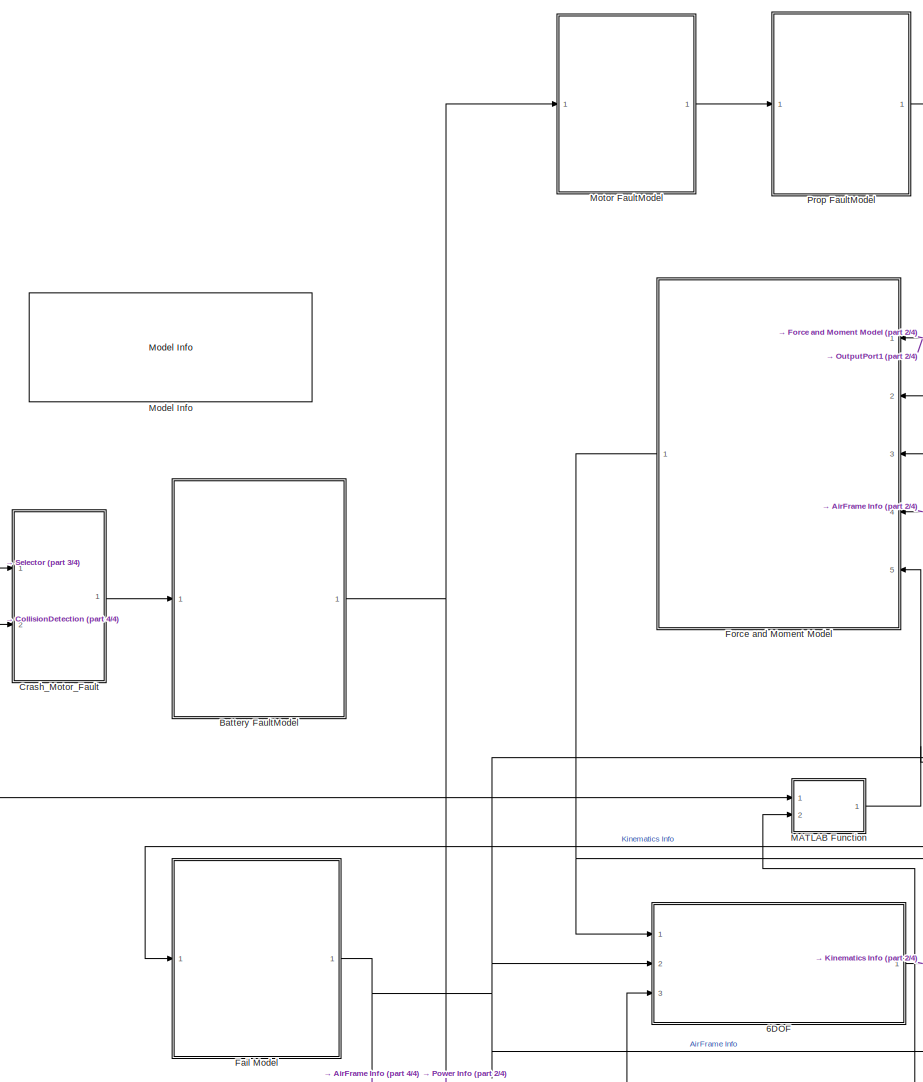
[diagram: root canvas - part 1/4, central region]
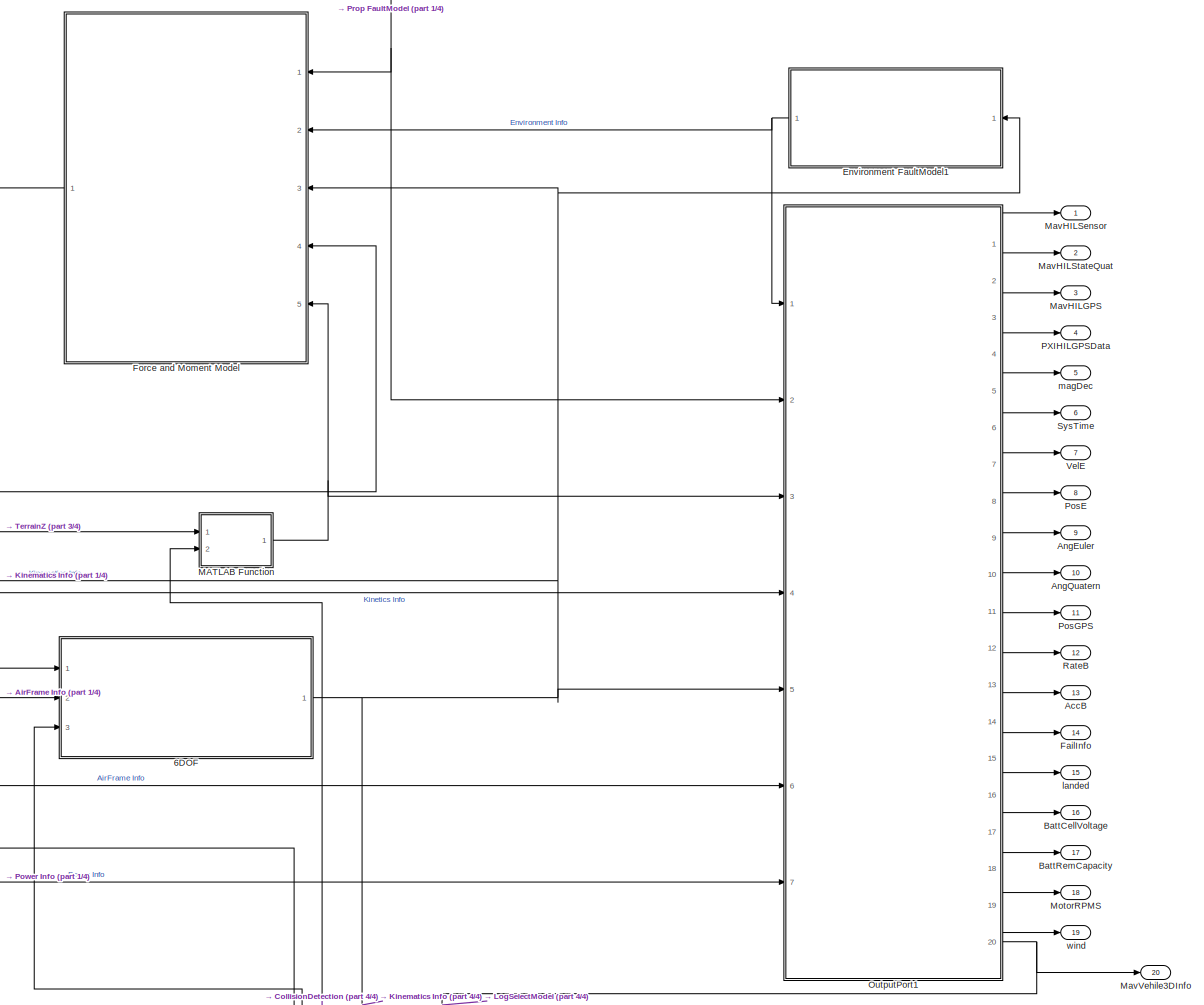
[diagram: root canvas - part 2/4, middle right region]
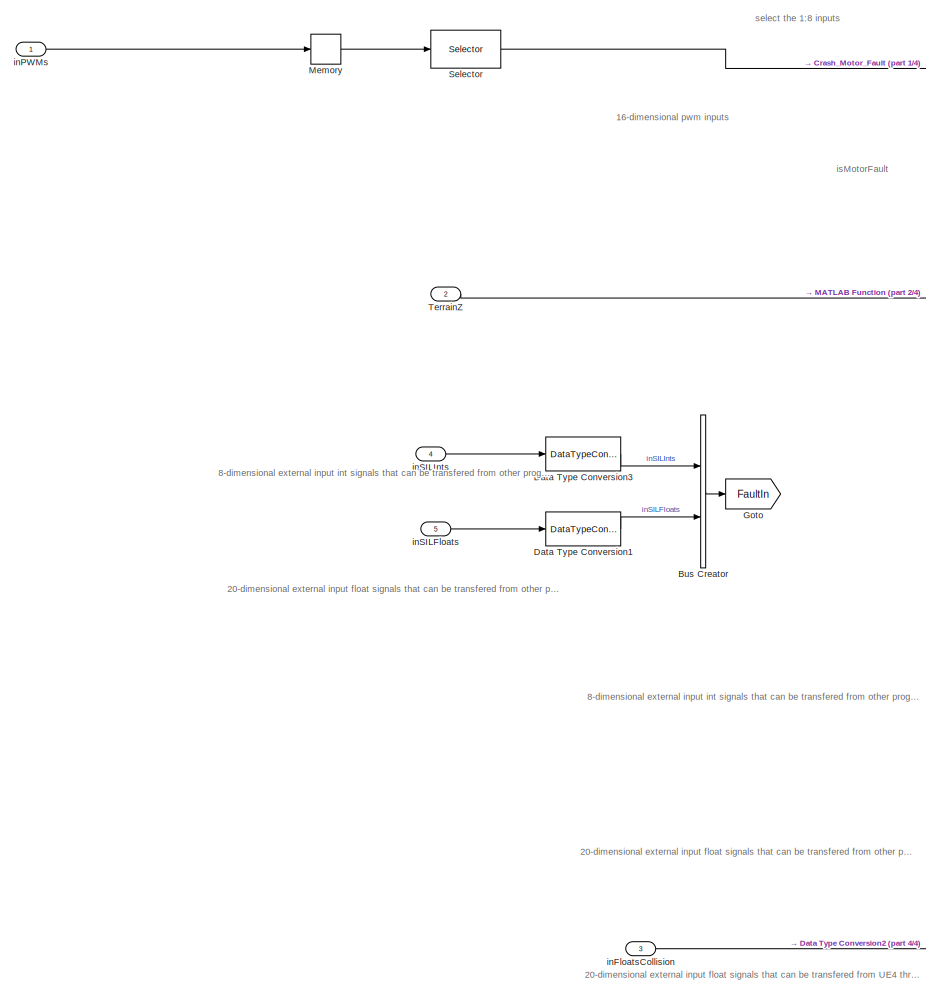
[diagram: root canvas - part 3/4, middle left region]
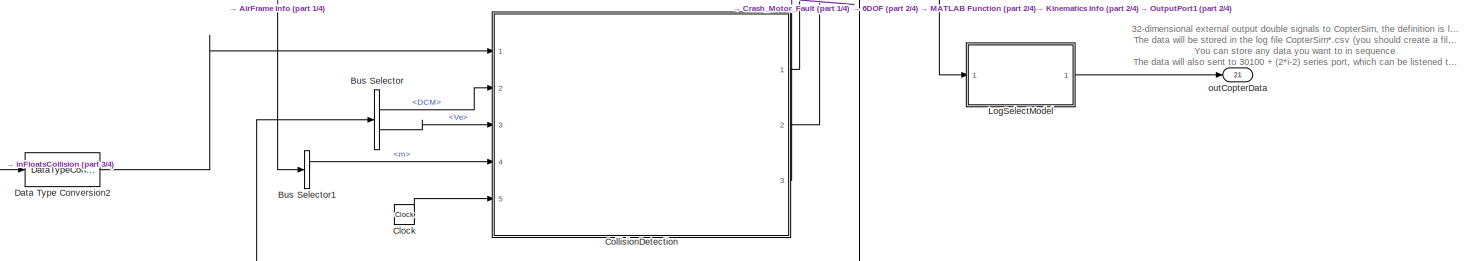
[diagram: root canvas - part 4/4, bottom center region]
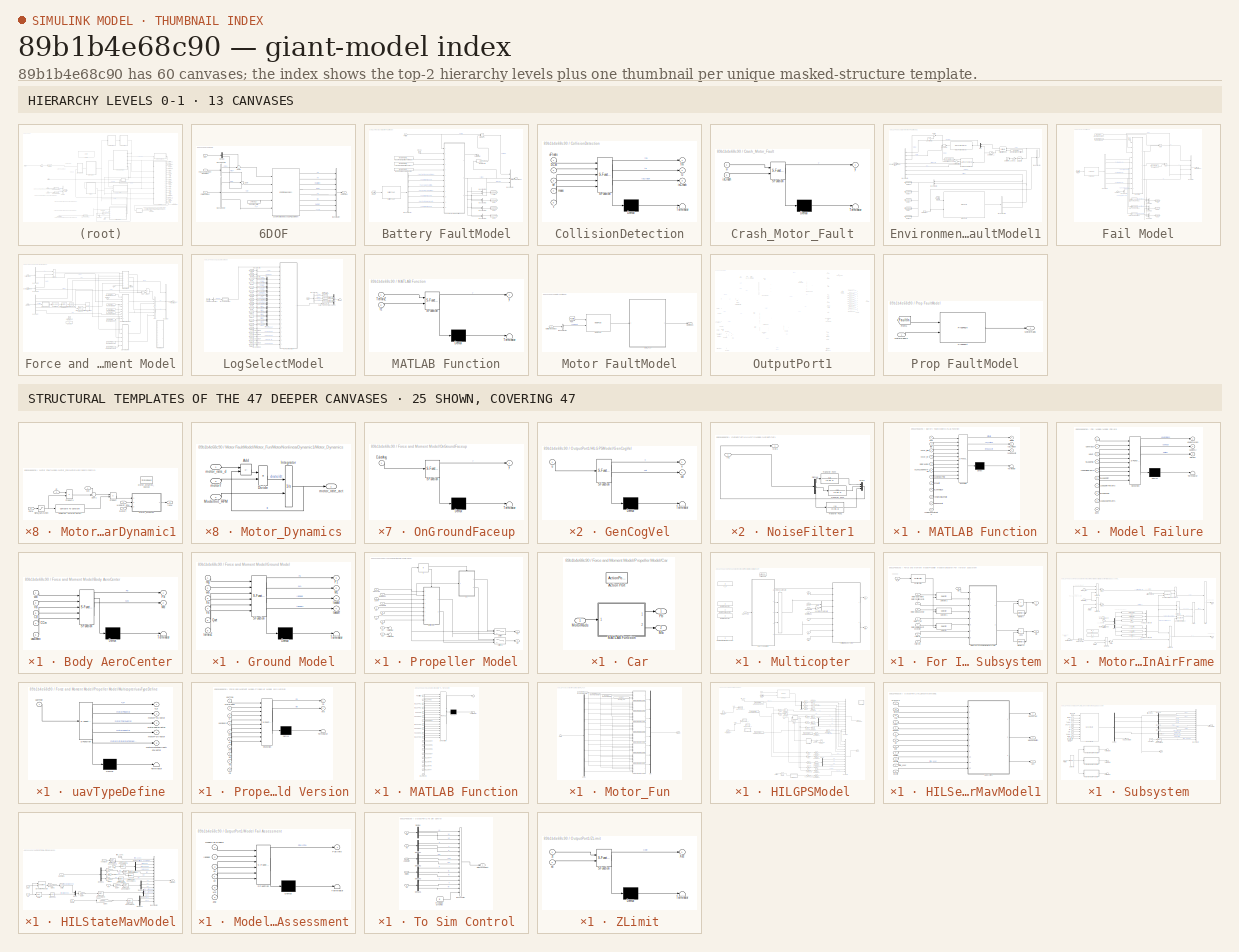
[diagram: thumbnail index - top-2 hierarchy levels (13 canvases) + 25 structural-template representatives of the remaining 47 canvases]
MODEL slx_89b1b4e68c90
KIND model
CONFIG AbsTol = auto
CONFIG EnableMultiTasking = off
CONFIG FixedStep = 0.001
CONFIG InitFcn = Init
CONFIG MaxStep = auto
CONFIG MinStep = auto
CONFIG PreLoadFcn = filepath  = fileparts(get_param(bdroot, 'FileName'));\ncd(filepath);
CONFIG RelTol = 1e-3
CONFIG SampleTimeConstraint = Unconstrained
CONFIG SolverName = ode4
CONFIG StartTime = 0.0
CONFIG StopTime = inf
BLOCK [SubSystem] 6DOF
  Ports = [3, 1]
  RequestExecContextInheritance = off
BLOCK [Outport] 6DOF/6DOF Bus
  VectorParamsAs1DForOutWhenUnconnected = off
BLOCK [BusCreator] 6DOF/Bus Creator
  DisplayOption = bar
  InheritFromInputs = on
  Inputs = 8
  Ports = [8, 1]
BLOCK [BusSelector] 6DOF/Bus Selector
  OutputSignals = dM,m,J
  Ports = [1, 3]
BLOCK [BusSelector] 6DOF/Bus Selector1
  OutputSignals = Fb,Mb
  Ports = [1, 2]
BLOCK [Constant] 6DOF/Constant_dI//dt
  Value = zeros(3,3)
BLOCK [Reference] 6DOF/Custom Variable Mass 6DOF (Quaternion)  REF=shared6dof/6DOF (Euler Angles)
  Ports = [5, 8]
  SourceBlock = shared6dof/6DOF (Euler Angles)
  SourceProductBaseCode = AE,PW,DR,MT,VE
  SourceType = 6DOF EoM (Body Axis)
BLOCK [Demux] 6DOF/Demux
  Outputs = 2
  Ports = [1, 2]
BLOCK [Inport] 6DOF/Fail Model Bus
  Port = 2
BLOCK [Inport] 6DOF/Force and Moment Model Bus
BLOCK [Sum] 6DOF/Sum
  Inputs = +++
  Ports = [3, 1]
BLOCK [Sum] 6DOF/Sum1
  Inputs = ++|
  Ports = [2, 1]
BLOCK [Inport] 6DOF/fColi
  Port = 3
BLOCK [Outport] AccB
  Port = 13
  VectorParamsAs1DForOutWhenUnconnected = off
BLOCK [Outport] AngEuler
  Port = 9
  VectorParamsAs1DForOutWhenUnconnected = off
BLOCK [Outport] AngQuatern
  Port = 10
  VectorParamsAs1DForOutWhenUnconnected = off
BLOCK [Outport] BattCellVoltage
  Port = 16
  VectorParamsAs1DForOutWhenUnconnected = off
BLOCK [Outport] BattRemCapacity
  Port = 17
  VectorParamsAs1DForOutWhenUnconnected = off
BLOCK [SubSystem] Battery FaultModel
  Ports = [1, 1]
  RequestExecContextInheritance = off
BLOCK [Outport] Battery FaultModel/Battery Model Bus1
  VectorParamsAs1DForOutWhenUnconnected = off
BLOCK [Reference] Battery FaultModel/BatteryFault  REF=QuadModelLib/BatteryFault
  Ports = [1, 1]
  SourceBlock = QuadModelLib/BatteryFault
BLOCK [BusCreator] Battery FaultModel/Bus Creator
  DisplayOption = bar
  InheritFromInputs = on
  Inputs = 3
  Ports = [3, 1]
BLOCK [BusCreator] Battery FaultModel/Bus Creator1
  DisplayOption = bar
  InheritFromInputs = on
  Inputs = 2
  Ports = [2, 1]
BLOCK [BusCreator] Battery FaultModel/Bus Creator2
  DisplayOption = bar
  InheritFromInputs = on
  Inputs = 2
  Ports = [2, 1]
BLOCK [BusCreator] Battery FaultModel/Bus Creator3
  DisplayOption = bar
  InheritFromInputs = on
  Inputs = 2
  Ports = [2, 1]
BLOCK [BusCreator] Battery FaultModel/Bus Creator4
  DisplayOption = bar
  InheritFromInputs = on
  Inputs = 2
  Ports = [2, 1]
BLOCK [BusSelector] Battery FaultModel/Bus Selector
  OutputSignals = hasFault_isUseCustomHovTime (signal 1),FaultParam (signal 2),hasFault_isPowOff (signal 3),hasFault_isLowVoltage (signal 4),FaultParam (signal 5),hasFault_islowCapacity (signal 6),FaultParam (signal 7)
  Ports = [1, 7]
BLOCK [Clock] Battery FaultModel/Clock1
BLOCK [From] Battery FaultModel/From1
  GotoTag = FaultIn
  TagVisibility = global
BLOCK [Goto] Battery FaultModel/Goto
  GotoTag = is123452
  TagVisibility = global
BLOCK [Goto] Battery FaultModel/Goto1
  GotoTag = is123453
  TagVisibility = global
BLOCK [Goto] Battery FaultModel/Goto2
  GotoTag = is123454
  TagVisibility = global
BLOCK [Goto] Battery FaultModel/Goto3
  GotoTag = is123455
  TagVisibility = global
BLOCK [SubSystem] Battery FaultModel/MATLAB Function
  ErrorFcn = Stateflow.Translate.translate
  PermitHierarchicalResolution = ExplicitOnly
  Ports = [12, 3]
  RequestExecContextInheritance = off
  SFBlockType = MATLAB Function
  SystemSampleTime = 0.01
  TreatAsAtomicUnit = on
BLOCK [Demux] Battery FaultModel/MATLAB Function/ Demux 
  Outputs = 1
  Ports = [1, 1]
BLOCK [S-Function] Battery FaultModel/MATLAB Function/ SFunction 
  EnableBusSupport = on
  FunctionName = sf_sfun
  PortCounts = [12 4]
  Ports = [12, 4]
  SFcnIsStateOwnerBlock = off
  SFunctionDeploymentMode = off
  Tag = Stateflow S-Function 4
BLOCK [Terminator] Battery FaultModel/MATLAB Function/ Terminator 
BLOCK [Inport] Battery FaultModel/MATLAB Function/CustomHovTime
  Port = 7
BLOCK [Outport] Battery FaultModel/MATLAB Function/EffRatio
  VectorParamsAs1DForOutWhenUnconnected = off
BLOCK [Outport] Battery FaultModel/MATLAB Function/cell_voltage
  Port = 2
  VectorParamsAs1DForOutWhenUnconnected = off
BLOCK [Inport] Battery FaultModel/MATLAB Function/hover_thr
  Port = 4
BLOCK [Inport] Battery FaultModel/MATLAB Function/hover_time
  Port = 3
BLOCK [Inport] Battery FaultModel/MATLAB Function/isLowVoltage
  Port = 9
BLOCK [Inport] Battery FaultModel/MATLAB Function/isPowOff
  Port = 8
BLOCK [Inport] Battery FaultModel/MATLAB Function/isUseCustomHovTime
  Port = 6
BLOCK [Inport] Battery FaultModel/MATLAB Function/islowCapacity
  Port = 11
BLOCK [Inport] Battery FaultModel/MATLAB Function/load
BLOCK [Inport] Battery FaultModel/MATLAB Function/motorNumbs
  Port = 5
BLOCK [Outport] Battery FaultModel/MATLAB Function/remCapacity
  Port = 3
  VectorParamsAs1DForOutWhenUnconnected = off
BLOCK [Inport] Battery FaultModel/MATLAB Function/remainCapacityRatio
  Port = 12
BLOCK [Inport] Battery FaultModel/MATLAB Function/remainVoltageRatio
  Port = 10
BLOCK [Inport] Battery FaultModel/MATLAB Function/time
  Port = 2
BLOCK [Constant] Battery FaultModel/ModelParam.BattHoverMinutes
  Value = ModelParam_BattHoverMinutes
BLOCK [Constant] Battery FaultModel/ModelParam.BattHoverThr
  Value = ModelParam_BattHoverThr
BLOCK [Constant] Battery FaultModel/ModelParam.uavMotNumbs
  Value = ModelParam_uavMotNumbs
BLOCK [Gain] Battery FaultModel/MotorFault3
  Gain = 1/4.2
BLOCK [Inport] Battery FaultModel/PWMIn
BLOCK [Product] Battery FaultModel/Product
  Ports = [2, 1]
BLOCK [Terminator] Battery FaultModel/Terminator
BLOCK [BusCreator] Bus Creator
  DisplayOption = bar
  InheritFromInputs = on
  Inputs = 2
  Ports = [2, 1]
BLOCK [BusSelector] Bus Selector
  OutputSignals = DCM,Ve
  Ports = [1, 2]
BLOCK [BusSelector] Bus Selector1
  OutputSignals = m
  Ports = [1, 1]
BLOCK [Clock] Clock
BLOCK [SubSystem] CollisionDetection
  ErrorFcn = Stateflow.Translate.translate
  PermitHierarchicalResolution = ExplicitOnly
  Ports = [5, 3]
  RequestExecContextInheritance = off
  SFBlockType = MATLAB Function
  TreatAsAtomicUnit = on
BLOCK [Demux] CollisionDetection/ Demux 
  Outputs = 1
  Ports = [1, 1]
BLOCK [S-Function] CollisionDetection/ SFunction 
  EnableBusSupport = on
  FunctionName = sf_sfun
  PortCounts = [5 4]
  Ports = [5, 4]
  SFcnIsStateOwnerBlock = off
  SFunctionDeploymentMode = off
  Tag = Stateflow S-Function 30
BLOCK [Terminator] CollisionDetection/ Terminator 
BLOCK [Inport] CollisionDetection/DCM
  Port = 2
BLOCK [Outport] CollisionDetection/fm
  VectorParamsAs1DForOutWhenUnconnected = off
BLOCK [Outport] CollisionDetection/isCrash
  Port = 3
  VectorParamsAs1DForOutWhenUnconnected = off
BLOCK [Inport] CollisionDetection/mass
  Port = 4
BLOCK [Inport] CollisionDetection/t
  Port = 5
BLOCK [Outport] CollisionDetection/tz
  Port = 2
  VectorParamsAs1DForOutWhenUnconnected = off
BLOCK [Inport] CollisionDetection/uFloats
BLOCK [Inport] CollisionDetection/ve
  Port = 3
BLOCK [SubSystem] Crash_Motor_Fault
  ErrorFcn = Stateflow.Translate.translate
  PermitHierarchicalResolution = ExplicitOnly
  Ports = [2, 1]
  RequestExecContextInheritance = off
  SFBlockType = MATLAB Function
  TreatAsAtomicUnit = on
BLOCK [Demux] Crash_Motor_Fault/ Demux 
  Outputs = 1
  Ports = [1, 1]
BLOCK [S-Function] Crash_Motor_Fault/ SFunction 
  EnableBusSupport = on
  FunctionName = sf_sfun
  PortCounts = [2 2]
  Ports = [2, 2]
  SFcnIsStateOwnerBlock = off
  SFunctionDeploymentMode = off
  Tag = Stateflow S-Function 33
BLOCK [Terminator] Crash_Motor_Fault/ Terminator 
BLOCK [Inport] Crash_Motor_Fault/isCrash
  Port = 2
BLOCK [Inport] Crash_Motor_Fault/u
BLOCK [Outport] Crash_Motor_Fault/y
  VectorParamsAs1DForOutWhenUnconnected = off
BLOCK [DataTypeConversion] Data Type Conversion1
  OutDataTypeStr = double
  RndMeth = Floor
  SaturateOnIntegerOverflow = off
BLOCK [DataTypeConversion] Data Type Conversion2
  OutDataTypeStr = double
  RndMeth = Floor
  SaturateOnIntegerOverflow = off
BLOCK [DataTypeConversion] Data Type Conversion3
  OutDataTypeStr = int32
  RndMeth = Floor
  SaturateOnIntegerOverflow = off
BLOCK [SubSystem] Environment FaultModel1
  Ports = [1, 1]
  RequestExecContextInheritance = off
BLOCK [Inport] Environment FaultModel1/6DOF Bus
BLOCK [BusCreator] Environment FaultModel1/Bus Creator
  DisplayOption = bar
  InheritFromInputs = on
  Inputs = 7
  NameLocation = top
  Ports = [7, 1]
BLOCK [BusCreator] Environment FaultModel1/Bus Creator1
  DisplayOption = bar
  InheritFromInputs = on
  Inputs = 2
  NameLocation = top
  Ports = [2, 1]
BLOCK [BusSelector] Environment FaultModel1/Bus Selector
  OutputSignals = Xe
  Ports = [1, 1]
BLOCK [BusSelector] Environment FaultModel1/Bus Selector1
  OutputSignals = Windb,Wind
  Ports = [1, 2]
BLOCK [Constant] Environment FaultModel1/Constant1
  Value = 10
BLOCK [Outport] Environment FaultModel1/Environment Model Bus
  VectorParamsAs1DForOutWhenUnconnected = off
BLOCK [Reference] Environment FaultModel1/Flat Earth to LLA  REF=aerolibtransform2/Flat Earth to LLA
  Ports = [2, 2]
  SourceBlock = aerolibtransform2/Flat Earth to LLA
  SourceProductBaseCode = AE
  SourceType = Flat Earth to LLA
BLOCK [From] Environment FaultModel1/From
  GotoTag = FaultIn
  TagVisibility = global
BLOCK [Gain] Environment FaultModel1/Gain_-1
  Gain = -1
BLOCK [Goto] Environment FaultModel1/Goto
  GotoTag = is123459
  NameLocation = top
  TagVisibility = global
BLOCK [Goto] Environment FaultModel1/Goto1
  GotoTag = is123540
  NameLocation = top
  TagVisibility = global
BLOCK [Goto] Environment FaultModel1/Goto2
  GotoTag = is123541
  NameLocation = top
  TagVisibility = global
BLOCK [Goto] Environment FaultModel1/Goto3
  GotoTag = is123542
  NameLocation = top
  TagVisibility = global
BLOCK [Goto] Environment FaultModel1/Goto4
  GotoTag = is123543
  NameLocation = top
  TagVisibility = global
BLOCK [Reference] Environment FaultModel1/ISA Atmosphere Model  REF=aerolibatmos2/ISA Atmosphere Model
  Ports = [1, 4]
  SourceBlock = aerolibatmos2/ISA Atmosphere Model
  SourceProductBaseCode = AE
  SourceType = International Standard Atmosphere Model
BLOCK [Constant] Environment FaultModel1/ModelParam.envAltitude
  Value = ModelParam_envAltitude
BLOCK [Mux] Environment FaultModel1/Mux
  DisplayOption = bar
  Inputs = 2
  Ports = [2, 1]
BLOCK [Reshape] Environment FaultModel1/Reshape
  Ports = [1, 1]
BLOCK [Saturate] Environment FaultModel1/Saturation_1
  LowerLimit = 0
  UpperLimit = 100000
BLOCK [Saturate] Environment FaultModel1/Saturation_2
  LowerLimit = 0
  UpperLimit = 10000
BLOCK [Selector] Environment FaultModel1/Selector
  IndexOptions = Index vector (dialog)
  Indices = [3]
  InputPortWidth = 3
  OutputSizes = 1
  Ports = [1, 1]
BLOCK [Sum] Environment FaultModel1/Sum2
  Inputs = |++
  Ports = [2, 1]
BLOCK [Reference] Environment FaultModel1/Temperature Conversion  REF=aerolibconvert2/Temperature Conversion
  Ports = [1, 1]
  SourceBlock = aerolibconvert2/Temperature Conversion
  SourceProductBaseCode = AE
  SourceType = Temperature Conversion
BLOCK [Terminator] Environment FaultModel1/Terminator3
BLOCK [Reference] Environment FaultModel1/WGS84 Gravity Model   REF=aerolibobsolete/WGS84 Gravity Model 
  Ports = [1, 1]
  SourceBlock = aerolibobsolete/WGS84 Gravity Model
  SourceProductBaseCode = AE
  SourceType = WGS84 Gravity Model 3D
BLOCK [Reference] Environment FaultModel1/WindFault  REF=QuadModelLib/WindFault
  Ports = [2, 1]
  SourceBlock = QuadModelLib/WindFault
BLOCK [SubSystem] Fail Model
  Ports = [1, 1]
  RequestExecContextInheritance = off
BLOCK [Inport] Fail Model/6DOF Bus1
BLOCK [Sum] Fail Model/Add5
  IconShape = rectangular
  Inputs = +-
  Ports = [2, 1]
BLOCK [Sum] Fail Model/Add6
  IconShape = rectangular
  Inputs = -+
  Ports = [2, 1]
BLOCK [BusCreator] Fail Model/Bus Creator
  DisplayOption = bar
  InheritFromInputs = on
  Inputs = 4
  Ports = [4, 1]
BLOCK [BusCreator] Fail Model/Bus Creator1
  DisplayOption = bar
  InheritFromInputs = on
  Inputs = 3
  Ports = [3, 1]
BLOCK [BusCreator] Fail Model/Bus Creator2
  DisplayOption = bar
  InheritFromInputs = on
  Inputs = 3
  Ports = [3, 1]
BLOCK [BusCreator] Fail Model/Bus Creator3
  DisplayOption = bar
  InheritFromInputs = on
  Inputs = 3
  Ports = [3, 1]
BLOCK [BusSelector] Fail Model/Bus Selector
  OutputSignals = hasFault_isloadFall (signal 1),FaultParam (signal 2),hasFault_isloadShift (signal 3),FaultParam (signal 4),hasFault_isloadLeak (signal 5),FaultParam (signal 6)
  Ports = [1, 6]
BLOCK [BusSelector] Fail Model/Bus Selector1
  OutputSignals = DCM
  Ports = [1, 1]
BLOCK [Clock] Fail Model/Clock
BLOCK [DataTypeConversion] Fail Model/Data Type Conversion
  OutDataTypeStr = double
  RndMeth = Floor
  SaturateOnIntegerOverflow = off
BLOCK [DataTypeConversion] Fail Model/Data Type Conversion1
  OutDataTypeStr = double
  RndMeth = Floor
  SaturateOnIntegerOverflow = off
BLOCK [DataTypeConversion] Fail Model/Data Type Conversion2
  OutDataTypeStr = double
  RndMeth = Floor
  SaturateOnIntegerOverflow = off
BLOCK [Outport] Fail Model/Fail Model Bus1
  VectorParamsAs1DForOutWhenUnconnected = off
BLOCK [From] Fail Model/From2
  GotoTag = FaultIn
  TagVisibility = global
BLOCK [Goto] Fail Model/Goto
  GotoTag = is123456
  TagVisibility = global
BLOCK [Goto] Fail Model/Goto1
  GotoTag = is123457
  TagVisibility = global
BLOCK [Goto] Fail Model/Goto2
  GotoTag = is123458
  TagVisibility = global
BLOCK [Reference] Fail Model/LoadFault  REF=QuadModelLib/LoadFault
  Ports = [1, 1]
  SourceBlock = QuadModelLib/LoadFault
BLOCK [SubSystem] Fail Model/Model Failure
  ErrorFcn = Stateflow.Translate.translate
  PermitHierarchicalResolution = ExplicitOnly
  Ports = [10, 3]
  RequestExecContextInheritance = off
  SFBlockType = MATLAB Function
  TreatAsAtomicUnit = on
BLOCK [Demux] Fail Model/Model Failure/ Demux 
  Outputs = 1
  Ports = [1, 1]
BLOCK [S-Function] Fail Model/Model Failure/ SFunction 
  EnableBusSupport = on
  FunctionName = sf_sfun
  PortCounts = [10 4]
  Ports = [10, 4]
  SFcnIsStateOwnerBlock = off
  SFunctionDeploymentMode = off
  Tag = Stateflow S-Function 1
BLOCK [Terminator] Fail Model/Model Failure/ Terminator 
BLOCK [Inport] Fail Model/Model Failure/LoadFallParams
  Port = 5
BLOCK [Inport] Fail Model/Model Failure/LoadLeakParams
  Port = 9
BLOCK [Inport] Fail Model/Model Failure/LoadShiftParams
  Port = 7
BLOCK [Inport] Fail Model/Model Failure/T
BLOCK [Inport] Fail Model/Model Failure/dcm
  Port = 10
BLOCK [Outport] Fail Model/Model Failure/deltaM
  Port = 3
  VectorParamsAs1DForOutWhenUnconnected = off
BLOCK [Inport] Fail Model/Model Failure/isLoadFall
  Port = 4
BLOCK [Inport] Fail Model/Model Failure/isLoadLeak
  Port = 8
BLOCK [Inport] Fail Model/Model Failure/isLoadShift
  Port = 6
BLOCK [Inport] Fail Model/Model Failure/uavMass
  Port = 2
BLOCK [Inport] Fail Model/Model Failure/uavR
  Port = 3
BLOCK [Outport] Fail Model/Model Failure/uavlostJ
  Port = 2
  VectorParamsAs1DForOutWhenUnconnected = off
BLOCK [Outport] Fail Model/Model Failure/uavlostMass
  VectorParamsAs1DForOutWhenUnconnected = off
BLOCK [Constant] Fail Model/ModelParam.uavMass
  Value = ModelParam_uavMass
BLOCK [Constant] Fail Model/ModelParam.uavR
  Value = ModelParam_uavR
BLOCK [Constant] Fail Model/uavJ
  Value = ModelParam_uavJ
BLOCK [Outport] FailInfo
  Port = 14
  VectorParamsAs1DForOutWhenUnconnected = off
BLOCK [SubSystem] Force and Moment Model
  Ports = [5, 1]
  RequestExecContextInheritance = off
BLOCK [Inport] Force and Moment Model/6DOF Bus
  Port = 3
BLOCK [Sum] Force and Moment Model/Add2
  IconShape = rectangular
  Inputs = +++
  Ports = [3, 1]
BLOCK [Sum] Force and Moment Model/Add3
  IconShape = rectangular
  Inputs = +++
  Ports = [3, 1]
BLOCK [Sum] Force and Moment Model/Add4
  IconShape = rectangular
  Ports = [2, 1]
BLOCK [SubSystem] Force and Moment Model/Body AeroCenter
  ErrorFcn = Stateflow.Translate.translate
  PermitHierarchicalResolution = ExplicitOnly
  Ports = [5, 2]
  RequestExecContextInheritance = off
  SFBlockType = MATLAB Function
  TreatAsAtomicUnit = on
BLOCK [Demux] Force and Moment Model/Body AeroCenter/ Demux 
  Outputs = 1
  Ports = [1, 1]
BLOCK [S-Function] Force and Moment Model/Body AeroCenter/ SFunction 
  EnableBusSupport = on
  FunctionName = sf_sfun
  PortCounts = [5 3]
  Ports = [5, 3]
  SFcnIsStateOwnerBlock = off
  SFunctionDeploymentMode = off
  Tag = Stateflow S-Function 21
BLOCK [Terminator] Force and Moment Model/Body AeroCenter/ Terminator 
BLOCK [Inport] Force and Moment Model/Body AeroCenter/CCm
  Port = 4
BLOCK [Inport] Force and Moment Model/Body AeroCenter/Cd
  Port = 3
BLOCK [Outport] Force and Moment Model/Body AeroCenter/Fd
  VectorParamsAs1DForOutWhenUnconnected = off
BLOCK [Outport] Force and Moment Model/Body AeroCenter/Md
  Port = 2
  VectorParamsAs1DForOutWhenUnconnected = off
BLOCK [Inport] Force and Moment Model/Body AeroCenter/Vb
  Port = 2
BLOCK [Inport] Force and Moment Model/Body AeroCenter/uavDearo
  Port = 5
BLOCK [Inport] Force and Moment Model/Body AeroCenter/wb
BLOCK [BusCreator] Force and Moment Model/Bus Creator
  DisplayOption = bar
  InheritFromInputs = on
  Inputs = 3
  Ports = [3, 1]
BLOCK [BusSelector] Force and Moment Model/Bus Selector
  OutputSignals = Xe,Ve,Eular(rad),DCM,wb
  Ports = [1, 5]
BLOCK [BusSelector] Force and Moment Model/Bus Selector2
  NameLocation = top
  OutputSignals = m,uavR
  Ports = [1, 2]
BLOCK [BusSelector] Force and Moment Model/Bus Selector5
  NameLocation = top
  OutputSignals = gravity,Windb
  Ports = [1, 2]
BLOCK [Constant] Force and Moment Model/Constant1
  Commented = on
BLOCK [Reference] Force and Moment Model/Direction Cosine Matrix to Quaternions  REF=sharedtransform/Direction Cosine Matrix 
to Quaternions
  Ports = [1, 1]
  SourceBlock = sharedtransform/Direction Cosine Matrix \nto Quaternions
  SourceProductBaseCode = AE,PW,DR,MT,VE
  SourceType = DCM2Quaternion
BLOCK [Reference] Force and Moment Model/Direction Cosine Matrix to Quaternions1  REF=sharedtransform/Direction Cosine Matrix 
to Quaternions
  Ports = [1, 1]
  SourceBlock = sharedtransform/Direction Cosine Matrix \nto Quaternions
  SourceProductBaseCode = AE,PW,DR,MT,VE
  SourceType = DCM2Quaternion
BLOCK [Inport] Force and Moment Model/Environment Model Bus
  Port = 2
BLOCK [Reference] Force and Moment Model/Euler to DCM  REF=aerolibtransform2/Wind Angles to 
Direction Cosine Matrix
  Ports = [1, 1]
  SourceBlock = aerolibtransform2/Wind Angles to \nDirection Cosine Matrix
  SourceProductBaseCode = AE
  SourceType = Wind2DCM
BLOCK [Inport] Force and Moment Model/Fail Model Bus
  Port = 4
BLOCK [Outport] Force and Moment Model/Force and Moment Model Bus
  VectorParamsAs1DForOutWhenUnconnected = off
BLOCK [SubSystem] Force and Moment Model/Ground Model
  ErrorFcn = Stateflow.Translate.translate
  PermitHierarchicalResolution = ExplicitOnly
  Ports = [6, 4]
  RequestExecContextInheritance = off
  SFBlockType = MATLAB Function
  TreatAsAtomicUnit = on
BLOCK [Demux] Force and Moment Model/Ground Model/ Demux 
  Outputs = 1
  Ports = [1, 1]
BLOCK [S-Function] Force and Moment Model/Ground Model/ SFunction 
  EnableBusSupport = on
  FunctionName = sf_sfun
  PortCounts = [6 5]
  Ports = [6, 5]
  SFcnIsStateOwnerBlock = off
  SFunctionDeploymentMode = off
  Tag = Stateflow S-Function 3
BLOCK [Terminator] Force and Moment Model/Ground Model/ Terminator 
BLOCK [Outport] Force and Moment Model/Ground Model/F1
  VectorParamsAs1DForOutWhenUnconnected = off
BLOCK [Outport] Force and Moment Model/Ground Model/M1
  Port = 2
  VectorParamsAs1DForOutWhenUnconnected = off
BLOCK [Inport] Force and Moment Model/Ground Model/Quet
  Port = 5
BLOCK [Inport] Force and Moment Model/Ground Model/Ve
  Port = 4
BLOCK [Inport] Force and Moment Model/Ground Model/Xe
  Port = 3
BLOCK [Outport] Force and Moment Model/Ground Model/landed
  Port = 3
  VectorParamsAs1DForOutWhenUnconnected = off
BLOCK [Inport] Force and Moment Model/Ground Model/mg
BLOCK [Outport] Force and Moment Model/Ground Model/takeoff
  Port = 4
  VectorParamsAs1DForOutWhenUnconnected = off
BLOCK [Inport] Force and Moment Model/Ground Model/terrainZ
  Port = 6
BLOCK [Inport] Force and Moment Model/Ground Model/wb
  Port = 2
BLOCK [Constant] Force and Moment Model/ModelParam.motorJm
  Value = ModelParam_motorJm
BLOCK [Constant] Force and Moment Model/ModelParam.rotorCm
  Value = ModelParam_rotorCm
BLOCK [Constant] Force and Moment Model/ModelParam.rotorCt
  Value = ModelParam_rotorCt
BLOCK [Constant] Force and Moment Model/ModelParam.uavCCm
  Value = ModelParam_uavCCm
BLOCK [Constant] Force and Moment Model/ModelParam.uavCd
  Value = ModelParam_uavCd
BLOCK [Constant] Force and Moment Model/ModelParam.uavDearo
  Value = ModelParam_uavDearo
BLOCK [Constant] Force and Moment Model/ModelParam.uavType
  Value = ModelParam_uavType
BLOCK [Inport] Force and Moment Model/MotorRads
BLOCK [SubSystem] Force and Moment Model/OnGroundFaceup
  ErrorFcn = Stateflow.Translate.translate
  PermitHierarchicalResolution = ExplicitOnly
  Ports = [1, 1]
  RequestExecContextInheritance = off
  SFBlockType = MATLAB Function
  TreatAsAtomicUnit = on
BLOCK [Demux] Force and Moment Model/OnGroundFaceup/ Demux 
  Outputs = 1
  Ports = [1, 1]
BLOCK [S-Function] Force and Moment Model/OnGroundFaceup/ SFunction 
  EnableBusSupport = on
  FunctionName = sf_sfun
  PortCounts = [1 2]
  Ports = [1, 2]
  SFcnIsStateOwnerBlock = off
  SFunctionDeploymentMode = off
  Tag = Stateflow S-Function 9
BLOCK [Terminator] Force and Moment Model/OnGroundFaceup/ Terminator 
BLOCK [Inport] Force and Moment Model/OnGroundFaceup/EulerAng
BLOCK [Outport] Force and Moment Model/OnGroundFaceup/y
  VectorParamsAs1DForOutWhenUnconnected = off
BLOCK [Product] Force and Moment Model/Product
  Multiplication = Matrix(*)
  Ports = [2, 1]
BLOCK [Product] Force and Moment Model/Product1
  Ports = [2, 1]
BLOCK [SubSystem] Force and Moment Model/Propeller Model
  Commented = on
  Ports = [10, 2]
  RTWSystemCode = Reusable function
  RequestExecContextInheritance = off
  TreatAsAtomicUnit = on
BLOCK [SubSystem] Force and Moment Model/Propeller Model old Version
  ErrorFcn = Stateflow.Translate.translate
  PermitHierarchicalResolution = ExplicitOnly
  Ports = [10, 2]
  RequestExecContextInheritance = off
  SFBlockType = MATLAB Function
  TreatAsAtomicUnit = on
BLOCK [Demux] Force and Moment Model/Propeller Model old Version/ Demux 
  Outputs = 1
  Ports = [1, 1]
BLOCK [S-Function] Force and Moment Model/Propeller Model old Version/ SFunction 
  EnableBusSupport = on
  FunctionName = sf_sfun
  PortCounts = [10 3]
  Ports = [10, 3]
  SFcnIsStateOwnerBlock = off
  SFunctionDeploymentMode = off
  Tag = Stateflow S-Function 2
BLOCK [Terminator] Force and Moment Model/Propeller Model old Version/ Terminator 
BLOCK [Inport] Force and Moment Model/Propeller Model old Version/Cd
  Port = 10
BLOCK [Inport] Force and Moment Model/Propeller Model old Version/Cm
  Port = 5
BLOCK [Inport] Force and Moment Model/Propeller Model old Version/Ct
  Port = 6
BLOCK [Outport] Force and Moment Model/Propeller Model old Version/Fb
  VectorParamsAs1DForOutWhenUnconnected = off
BLOCK [Inport] Force and Moment Model/Propeller Model old Version/Jm
  Port = 7
BLOCK [Outport] Force and Moment Model/Propeller Model old Version/Mb
  Port = 2
  VectorParamsAs1DForOutWhenUnconnected = off
BLOCK [Inport] Force and Moment Model/Propeller Model old Version/MotorRads
  Port = 2
BLOCK [Inport] Force and Moment Model/Propeller Model old Version/R
  Port = 3
BLOCK [Inport] Force and Moment Model/Propeller Model old Version/Vb
  Port = 9
BLOCK [Inport] Force and Moment Model/Propeller Model old Version/uavDearo
  Port = 4
BLOCK [Inport] Force and Moment Model/Propeller Model old Version/uavType
BLOCK [Inport] Force and Moment Model/Propeller Model old Version/wb
  Port = 8
BLOCK [SubSystem] Force and Moment Model/Propeller Model/Car
  Ports = [1, 2, 0, 0, 0, 0, 0, 1]
  RequestExecContextInheritance = off
  TreatAsAtomicUnit = on
BLOCK [ActionPort] Force and Moment Model/Propeller Model/Car/Action Port
  InitializeStates = reset
BLOCK [Outport] Force and Moment Model/Propeller Model/Car/Fb
  VectorParamsAs1DForOutWhenUnconnected = off
BLOCK [SubSystem] Force and Moment Model/Propeller Model/Car/MATLAB Function
  ErrorFcn = Stateflow.Translate.translate
  PermitHierarchicalResolution = ExplicitOnly
  Ports = [1, 2]
  RequestExecContextInheritance = off
  SFBlockType = MATLAB Function
  TreatAsAtomicUnit = on
BLOCK [Demux] Force and Moment Model/Propeller Model/Car/MATLAB Function/ Demux 
  Outputs = 1
  Ports = [1, 1]
BLOCK [S-Function] Force and Moment Model/Propeller Model/Car/MATLAB Function/ SFunction 
  EnableBusSupport = on
  FunctionName = sf_sfun
  PortCounts = [1 3]
  Ports = [1, 3]
  SFcnIsStateOwnerBlock = off
  SFunctionDeploymentMode = off
  Tag = Stateflow S-Function 15
BLOCK [Terminator] Force and Moment Model/Propeller Model/Car/MATLAB Function/ Terminator 
BLOCK [Outport] Force and Moment Model/Propeller Model/Car/MATLAB Function/Fb
  VectorParamsAs1DForOutWhenUnconnected = off
BLOCK [Outport] Force and Moment Model/Propeller Model/Car/MATLAB Function/Mb
  Port = 2
  VectorParamsAs1DForOutWhenUnconnected = off
BLOCK [Inport] Force and Moment Model/Propeller Model/Car/MATLAB Function/MotorRads
BLOCK [Outport] Force and Moment Model/Propeller Model/Car/Mb
  Port = 2
  VectorParamsAs1DForOutWhenUnconnected = off
BLOCK [Inport] Force and Moment Model/Propeller Model/Car/MotorRads
BLOCK [Inport] Force and Moment Model/Propeller Model/Cd
  Port = 10
BLOCK [Inport] Force and Moment Model/Propeller Model/Cm
  Port = 5
BLOCK [Inport] Force and Moment Model/Propeller Model/Ct
  Port = 6
BLOCK [Outport] Force and Moment Model/Propeller Model/Fb
  VectorParamsAs1DForOutWhenUnconnected = off
BLOCK [If] Force and Moment Model/Propeller Model/If
  IfExpression = u1 >= 50
  Ports = [1, 2]
BLOCK [Inport] Force and Moment Model/Propeller Model/Jm
  Port = 7
BLOCK [Outport] Force and Moment Model/Propeller Model/Mb
  Port = 2
  VectorParamsAs1DForOutWhenUnconnected = off
BLOCK [Inport] Force and Moment Model/Propeller Model/MotorRads
  Port = 2
BLOCK [SubSystem] Force and Moment Model/Propeller Model/Multicopter
  Ports = [8, 2, 0, 0, 0, 0, 0, 1]
  RequestExecContextInheritance = off
  TreatAsAtomicUnit = on
BLOCK [ActionPort] Force and Moment Model/Propeller Model/Multicopter/Action Port
  InitializeStates = reset
BLOCK [Inport] Force and Moment Model/Propeller Model/Multicopter/Cm
  Port = 5
BLOCK [Inport] Force and Moment Model/Propeller Model/Multicopter/Ct
  Port = 6
BLOCK [Outport] Force and Moment Model/Propeller Model/Multicopter/Fb
  VectorParamsAs1DForOutWhenUnconnected = off
BLOCK [SubSystem] Force and Moment Model/Propeller Model/Multicopter/For Iterator Subsystem
  Ports = [9, 2]
  RequestExecContextInheritance = off
  TreatAsAtomicUnit = on
BLOCK [Sum] Force and Moment Model/Propeller Model/Multicopter/For Iterator Subsystem/Add
  IconShape = rectangular
  Ports = [2, 1]
BLOCK [Sum] Force and Moment Model/Propeller Model/Multicopter/For Iterator Subsystem/Add1
  IconShape = rectangular
  Ports = [2, 1]
BLOCK [Outport] Force and Moment Model/Propeller Model/Multicopter/For Iterator Subsystem/Fb
  VectorParamsAs1DForOutWhenUnconnected = off
BLOCK [ForIterator] Force and Moment Model/Propeller Model/Multicopter/For Iterator Subsystem/For Iterator
  IterationSource = external
  Ports = [1, 1]
  ResetStates = reset
BLOCK [Outport] Force and Moment Model/Propeller Model/Multicopter/For Iterator Subsystem/Mb
  Port = 2
  VectorParamsAs1DForOutWhenUnconnected = off
BLOCK [Memory] Force and Moment Model/Propeller Model/Multicopter/For Iterator Subsystem/Memory
  InheritSampleTime = on
  InitialCondition = [0;0;0]
  NameLocation = top
BLOCK [Memory] Force and Moment Model/Propeller Model/Multicopter/For Iterator Subsystem/Memory1
  InheritSampleTime = on
  InitialCondition = [0;0;0]
  NameLocation = top
BLOCK [SubSystem] Force and Moment Model/Propeller Model/Multicopter/For Iterator Subsystem/MotorForceAndMomentInAirFrame
  Ports = [8, 2]
  RequestExecContextInheritance = off
BLOCK [Reference] Force and Moment Model/Propeller Model/Multicopter/For Iterator Subsystem/MotorForceAndMomentInAirFrame/3x3 Cross Product  REF=sharedutil/3x3 Cross Product
  Ports = [2, 1]
  SourceBlock = sharedutil/3x3 Cross Product
  SourceProductBaseCode = AE,PW,DR,MT,VE
  SourceType = CrossProduct
BLOCK [Reference] Force and Moment Model/Propeller Model/Multicopter/For Iterator Subsystem/MotorForceAndMomentInAirFrame/3x3 Cross Product1  REF=sharedutil/3x3 Cross Product
  Ports = [2, 1]
  SourceBlock = sharedutil/3x3 Cross Product
  SourceProductBaseCode = AE,PW,DR,MT,VE
  SourceType = CrossProduct
BLOCK [Sum] Force and Moment Model/Propeller Model/Multicopter/For Iterator Subsystem/MotorForceAndMomentInAirFrame/Add
  IconShape = rectangular
  Inputs = 2
  Ports = [2, 1]
BLOCK [Sum] Force and Moment Model/Propeller Model/Multicopter/For Iterator Subsystem/MotorForceAndMomentInAirFrame/Add1
  IconShape = rectangular
  Inputs = 2
  Ports = [2, 1]
BLOCK [Outport] Force and Moment Model/Propeller Model/Multicopter/For Iterator Subsystem/MotorForceAndMomentInAirFrame/Fbi
  VectorParamsAs1DForOutWhenUnconnected = off
BLOCK [Fcn] Force and Moment Model/Propeller Model/Multicopter/For Iterator Subsystem/MotorForceAndMomentInAirFrame/Fcn
  Expr = u(4)*cos(u(3))
BLOCK [Fcn] Force and Moment Model/Propeller Model/Multicopter/For Iterator Subsystem/MotorForceAndMomentInAirFrame/Fcn1
  Expr = u(4)*sin(u(3))
BLOCK [Fcn] Force and Moment Model/Propeller Model/Multicopter/For Iterator Subsystem/MotorForceAndMomentInAirFrame/Fcn2
  Expr = u(5)
BLOCK [Gain] Force and Moment Model/Propeller Model/Multicopter/For Iterator Subsystem/MotorForceAndMomentInAirFrame/Gain
  Gain = -1
BLOCK [Gain] Force and Moment Model/Propeller Model/Multicopter/For Iterator Subsystem/MotorForceAndMomentInAirFrame/Gain1
  Gain = -1
BLOCK [Gain] Force and Moment Model/Propeller Model/Multicopter/For Iterator Subsystem/MotorForceAndMomentInAirFrame/Gain2
  Gain = -1
BLOCK [Math] Force and Moment Model/Propeller Model/Multicopter/For Iterator Subsystem/MotorForceAndMomentInAirFrame/Math Function
  Operator = square
  Ports = [1, 1]
  SignedPower = on
BLOCK [Outport] Force and Moment Model/Propeller Model/Multicopter/For Iterator Subsystem/MotorForceAndMomentInAirFrame/Mbi
  Port = 2
  VectorParamsAs1DForOutWhenUnconnected = off
BLOCK [Mux] Force and Moment Model/Propeller Model/Multicopter/For Iterator Subsystem/MotorForceAndMomentInAirFrame/Mux
  DisplayOption = bar
  Inputs = 2
  Ports = [2, 1]
BLOCK [Product] Force and Moment Model/Propeller Model/Multicopter/For Iterator Subsystem/MotorForceAndMomentInAirFrame/Product2
  Ports = [2, 1]
BLOCK [Product] Force and Moment Model/Propeller Model/Multicopter/For Iterator Subsystem/MotorForceAndMomentInAirFrame/Product3
  Ports = [2, 1]
BLOCK [Product] Force and Moment Model/Propeller Model/Multicopter/For Iterator Subsystem/MotorForceAndMomentInAirFrame/Product4
  Inputs = 3
  Ports = [3, 1]
BLOCK [Product] Force and Moment Model/Propeller Model/Multicopter/For Iterator Subsystem/MotorForceAndMomentInAirFrame/Product5
  Ports = [2, 1]
BLOCK [Product] Force and Moment Model/Propeller Model/Multicopter/For Iterator Subsystem/MotorForceAndMomentInAirFrame/Product6
  Inputs = 3
  Ports = [3, 1]
BLOCK [Product] Force and Moment Model/Propeller Model/Multicopter/For Iterator Subsystem/MotorForceAndMomentInAirFrame/Product7
  Ports = [2, 1]
BLOCK [Concatenate] Force and Moment Model/Propeller Model/Multicopter/For Iterator Subsystem/MotorForceAndMomentInAirFrame/Vector Concatenate
  NumInputs = 3
  Ports = [3, 1]
BLOCK [Concatenate] Force and Moment Model/Propeller Model/Multicopter/For Iterator Subsystem/MotorForceAndMomentInAirFrame/Vector Concatenate1
  NumInputs = 3
  Ports = [3, 1]
BLOCK [Inport] Force and Moment Model/Propeller Model/Multicopter/For Iterator Subsystem/MotorForceAndMomentInAirFrame/airframeOmega
BLOCK [Constant] Force and Moment Model/Propeller Model/Multicopter/For Iterator Subsystem/MotorForceAndMomentInAirFrame/d_i
  Commented = on
  Value = d_i
BLOCK [Constant] Force and Moment Model/Propeller Model/Multicopter/For Iterator Subsystem/MotorForceAndMomentInAirFrame/h_i
  Commented = on
  Value = h_i
BLOCK [Fcn] Force and Moment Model/Propeller Model/Multicopter/For Iterator Subsystem/MotorForceAndMomentInAirFrame/l1
  Expr = cos(u(1))*sin(u(2))*cos(u(3)) + sin(u(1))*sin(u(3))
BLOCK [Fcn] Force and Moment Model/Propeller Model/Multicopter/For Iterator Subsystem/MotorForceAndMomentInAirFrame/l2
  Expr = cos(u(1))*sin(u(2))*sin(u(3)) - sin(u(1))*cos(u(3))
BLOCK [Fcn] Force and Moment Model/Propeller Model/Multicopter/For Iterator Subsystem/MotorForceAndMomentInAirFrame/l3
  Expr = cos(u(1))*cos(u(2))
BLOCK [Inport] Force and Moment Model/Propeller Model/Multicopter/For Iterator Subsystem/MotorForceAndMomentInAirFrame/motorDelta_i
  Port = 6
BLOCK [Inport] Force and Moment Model/Propeller Model/Multicopter/For Iterator Subsystem/MotorForceAndMomentInAirFrame/motorEularInBodyFrame
  Port = 2
  PortDimensions = 3
BLOCK [Inport] Force and Moment Model/Propeller Model/Multicopter/For Iterator Subsystem/MotorForceAndMomentInAirFrame/motorJ_RPi
  Port = 5
BLOCK [Inport] Force and Moment Model/Propeller Model/Multicopter/For Iterator Subsystem/MotorForceAndMomentInAirFrame/motorOmegai
  Port = 4
BLOCK [Inport] Force and Moment Model/Propeller Model/Multicopter/For Iterator Subsystem/MotorForceAndMomentInAirFrame/motorPositionInBodyFrame
  Port = 3
  PortDimensions = 2
BLOCK [Inport] Force and Moment Model/Propeller Model/Multicopter/For Iterator Subsystem/MotorForceAndMomentInAirFrame/rotorCm
  Port = 8
BLOCK [Inport] Force and Moment Model/Propeller Model/Multicopter/For Iterator Subsystem/MotorForceAndMomentInAirFrame/rotorCt
  Port = 7
BLOCK [Selector] Force and Moment Model/Propeller Model/Multicopter/For Iterator Subsystem/Selector
  IndexOptions = Index vector (port)
  Indices = [1 3]
  InputPortWidth = 8
  OutputSizes = 1
  Ports = [2, 1]
BLOCK [Selector] Force and Moment Model/Propeller Model/Multicopter/For Iterator Subsystem/Selector1
  IndexOptions = Index vector (port)
  Indices = [1 3]
  InputPortWidth = 8
  OutputSizes = 1
  Ports = [2, 1]
BLOCK [Selector] Force and Moment Model/Propeller Model/Multicopter/For Iterator Subsystem/Selector2
  IndexOptions = Select all,Index vector (port)
  Indices = [1 3],1
  InputPortWidth = 8
  NumberOfDimensions = 2
  OutputSizes = 1,1
  Ports = [2, 1]
BLOCK [Inport] Force and Moment Model/Propeller Model/Multicopter/For Iterator Subsystem/motorEularMatrix
  Port = 3
BLOCK [Inport] Force and Moment Model/Propeller Model/Multicopter/For Iterator Subsystem/motorJ_RP
  Port = 6
BLOCK [Inport] Force and Moment Model/Propeller Model/Multicopter/For Iterator Subsystem/motorOmegaVector
  Port = 5
BLOCK [Inport] Force and Moment Model/Propeller Model/Multicopter/For Iterator Subsystem/motorPositionVector
  Port = 4
BLOCK [Inport] Force and Moment Model/Propeller Model/Multicopter/For Iterator Subsystem/motorRotateDirectionVector
  Port = 7
BLOCK [Inport] Force and Moment Model/Propeller Model/Multicopter/For Iterator Subsystem/n_p
BLOCK [Inport] Force and Moment Model/Propeller Model/Multicopter/For Iterator Subsystem/rotorCm
  Port = 9
BLOCK [Inport] Force and Moment Model/Propeller Model/Multicopter/For Iterator Subsystem/rotorCt
  Port = 8
BLOCK [Inport] Force and Moment Model/Propeller Model/Multicopter/For Iterator Subsystem/wb
  Port = 2
BLOCK [Gain] Force and Moment Model/Propeller Model/Multicopter/Gain
  Gain = -1
BLOCK [Inport] Force and Moment Model/Propeller Model/Multicopter/Jm
  Port = 7
BLOCK [Outport] Force and Moment Model/Propeller Model/Multicopter/Mb
  Port = 2
  VectorParamsAs1DForOutWhenUnconnected = off
BLOCK [Inport] Force and Moment Model/Propeller Model/Multicopter/MotorRads
  Port = 2
BLOCK [Concatenate] Force and Moment Model/Propeller Model/Multicopter/Vector Concatenate
  Ports = [2, 1]
BLOCK [Concatenate] Force and Moment Model/Propeller Model/Multicopter/Vector Concatenate1
  Mode = Multidimensional array
  NumInputs = 3
  Ports = [3, 1]
BLOCK [Constant] Force and Moment Model/Propeller Model/Multicopter/motorPhiVector
  Commented = on
BLOCK [Constant] Force and Moment Model/Propeller Model/Multicopter/motorPsiVector
  Commented = on
BLOCK [Constant] Force and Moment Model/Propeller Model/Multicopter/motorRotateDirectionVector
  Commented = on
BLOCK [Constant] Force and Moment Model/Propeller Model/Multicopter/motorThetaVector
  Commented = on
BLOCK [Constant] Force and Moment Model/Propeller Model/Multicopter/n_p
  Commented = on
BLOCK [Inport] Force and Moment Model/Propeller Model/Multicopter/uavDearo
  Port = 4
BLOCK [Inport] Force and Moment Model/Propeller Model/Multicopter/uavR
  Port = 3
BLOCK [Inport] Force and Moment Model/Propeller Model/Multicopter/uavType
BLOCK [SubSystem] Force and Moment Model/Propeller Model/Multicopter/uavTypeDefine
  ErrorFcn = Stateflow.Translate.translate
  PermitHierarchicalResolution = ExplicitOnly
  Ports = [1, 5]
  RequestExecContextInheritance = off
  SFBlockType = MATLAB Function
  TreatAsAtomicUnit = on
BLOCK [Demux] Force and Moment Model/Propeller Model/Multicopter/uavTypeDefine/ Demux 
  Outputs = 1
  Ports = [1, 1]
BLOCK [S-Function] Force and Moment Model/Propeller Model/Multicopter/uavTypeDefine/ SFunction 
  EnableBusSupport = on
  FunctionName = sf_sfun
  PortCounts = [1 6]
  Ports = [1, 6]
  SFcnIsStateOwnerBlock = off
  SFunctionDeploymentMode = off
  Tag = Stateflow S-Function 14
BLOCK [Terminator] Force and Moment Model/Propeller Model/Multicopter/uavTypeDefine/ Terminator 
BLOCK [Outport] Force and Moment Model/Propeller Model/Multicopter/uavTypeDefine/motorPhiVector
  Port = 2
  VectorParamsAs1DForOutWhenUnconnected = off
BLOCK [Outport] Force and Moment Model/Propeller Model/Multicopter/uavTypeDefine/motorPsiVector
  Port = 4
  VectorParamsAs1DForOutWhenUnconnected = off
BLOCK [Outport] Force and Moment Model/Propeller Model/Multicopter/uavTypeDefine/motorRotateDirectionVector
  Port = 5
  VectorParamsAs1DForOutWhenUnconnected = off
BLOCK [Outport] Force and Moment Model/Propeller Model/Multicopter/uavTypeDefine/motorThetaVector
  Port = 3
  VectorParamsAs1DForOutWhenUnconnected = off
BLOCK [Outport] Force and Moment Model/Propeller Model/Multicopter/uavTypeDefine/n_p
  VectorParamsAs1DForOutWhenUnconnected = off
BLOCK [Inport] Force and Moment Model/Propeller Model/Multicopter/uavTypeDefine/uavType
BLOCK [Inport] Force and Moment Model/Propeller Model/Multicopter/wb
  Port = 8
BLOCK [Switch] Force and Moment Model/Propeller Model/Switch
  InputSameDT = off
  SaturateOnIntegerOverflow = off
  Threshold = 50
BLOCK [Switch] Force and Moment Model/Propeller Model/Switch1
  InputSameDT = off
  SaturateOnIntegerOverflow = off
  Threshold = 50
BLOCK [Terminator] Force and Moment Model/Propeller Model/Terminator
BLOCK [Terminator] Force and Moment Model/Propeller Model/Terminator1
BLOCK [Inport] Force and Moment Model/Propeller Model/Vb
  Port = 9
BLOCK [Inport] Force and Moment Model/Propeller Model/uavDearo
  Port = 4
BLOCK [Inport] Force and Moment Model/Propeller Model/uavR
  Port = 3
BLOCK [Inport] Force and Moment Model/Propeller Model/uavType
BLOCK [Inport] Force and Moment Model/Propeller Model/wb
  Port = 8
BLOCK [Reference] Force and Moment Model/Quaternion Inverse  REF=aerolibutil/Quaternion
Inverse
  Ports = [1, 1]
  SourceBlock = aerolibutil/Quaternion\nInverse
  SourceProductBaseCode = AE
  SourceType = Quaternion Inverse
BLOCK [Reference] Force and Moment Model/Quaternion Multiplication  REF=aerolibutil/Quaternion
Multiplication
  Ports = [2, 1]
  SourceBlock = aerolibutil/Quaternion\nMultiplication
  SourceProductBaseCode = AE
  SourceType = Quaternion Multiplication
BLOCK [Terminator] Force and Moment Model/Terminator
BLOCK [UniformRandomNumber] Force and Moment Model/Uniform Random Number
  Commented = on
  Maximum = [1,1,1]
  Minimum = [-1,-1,-1]
  SampleTime = 0.05
  Seed = [145787,351545,2864]
BLOCK [Inport] Force and Moment Model/tZ 
  Port = 5
BLOCK [Goto] Goto
  GotoTag = FaultIn
  TagVisibility = global
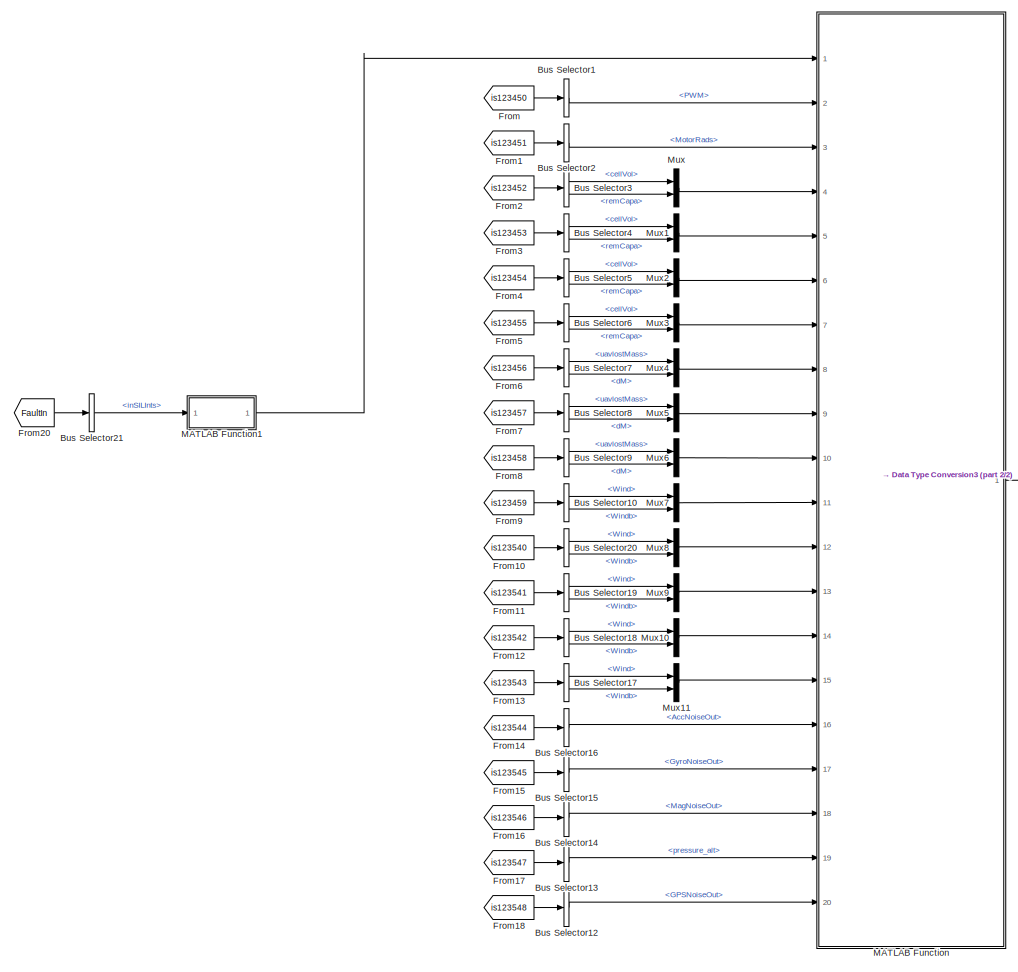
[diagram: LogSelectModel - part 1/2, center side, full height]
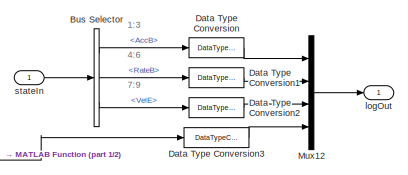
[diagram: LogSelectModel - part 2/2, middle right region]
BLOCK [SubSystem] LogSelectModel
  Ports = [1, 1]
  RequestExecContextInheritance = off
BLOCK [BusSelector] LogSelectModel/Bus Selector
  OutputSignals = AccB,RateB,VelE
  Ports = [1, 3]
BLOCK [BusSelector] LogSelectModel/Bus Selector1
  OutputSignals = PWM
  Ports = [1, 1]
BLOCK [BusSelector] LogSelectModel/Bus Selector10
  OutputSignals = Wind,Windb
  Ports = [1, 2]
BLOCK [BusSelector] LogSelectModel/Bus Selector12
  OutputSignals = GPSNoiseOut
  Ports = [1, 1]
BLOCK [BusSelector] LogSelectModel/Bus Selector13
  OutputSignals = pressure_alt
  Ports = [1, 1]
BLOCK [BusSelector] LogSelectModel/Bus Selector14
  OutputSignals = MagNoiseOut
  Ports = [1, 1]
BLOCK [BusSelector] LogSelectModel/Bus Selector15
  OutputSignals = GyroNoiseOut
  Ports = [1, 1]
BLOCK [BusSelector] LogSelectModel/Bus Selector16
  OutputSignals = AccNoiseOut
  Ports = [1, 1]
BLOCK [BusSelector] LogSelectModel/Bus Selector17
  OutputSignals = Wind,Windb
  Ports = [1, 2]
BLOCK [BusSelector] LogSelectModel/Bus Selector18
  OutputSignals = Wind,Windb
  Ports = [1, 2]
BLOCK [BusSelector] LogSelectModel/Bus Selector19
  OutputSignals = Wind,Windb
  Ports = [1, 2]
BLOCK [BusSelector] LogSelectModel/Bus Selector2
  OutputSignals = MotorRads
  Ports = [1, 1]
BLOCK [BusSelector] LogSelectModel/Bus Selector20
  OutputSignals = Wind,Windb
  Ports = [1, 2]
BLOCK [BusSelector] LogSelectModel/Bus Selector21
  OutputSignals = inSILInts
  Ports = [1, 1]
BLOCK [BusSelector] LogSelectModel/Bus Selector3
  OutputSignals = cellVol,remCapa
  Ports = [1, 2]
BLOCK [BusSelector] LogSelectModel/Bus Selector4
  OutputSignals = cellVol,remCapa
  Ports = [1, 2]
BLOCK [BusSelector] LogSelectModel/Bus Selector5
  OutputSignals = cellVol,remCapa
  Ports = [1, 2]
BLOCK [BusSelector] LogSelectModel/Bus Selector6
  OutputSignals = cellVol,remCapa
  Ports = [1, 2]
BLOCK [BusSelector] LogSelectModel/Bus Selector7
  OutputSignals = uavlostMass,dM
  Ports = [1, 2]
BLOCK [BusSelector] LogSelectModel/Bus Selector8
  OutputSignals = uavlostMass,dM
  Ports = [1, 2]
BLOCK [BusSelector] LogSelectModel/Bus Selector9
  OutputSignals = uavlostMass,dM
  Ports = [1, 2]
BLOCK [DataTypeConversion] LogSelectModel/Data Type Conversion
  OutDataTypeStr = double
  RndMeth = Floor
  SaturateOnIntegerOverflow = off
BLOCK [DataTypeConversion] LogSelectModel/Data Type Conversion1
  OutDataTypeStr = double
  RndMeth = Floor
  SaturateOnIntegerOverflow = off
BLOCK [DataTypeConversion] LogSelectModel/Data Type Conversion2
  OutDataTypeStr = double
  RndMeth = Floor
  SaturateOnIntegerOverflow = off
BLOCK [DataTypeConversion] LogSelectModel/Data Type Conversion3
  OutDataTypeStr = double
  RndMeth = Floor
  SaturateOnIntegerOverflow = off
BLOCK [From] LogSelectModel/From
  GotoTag = is123450
  TagVisibility = global
BLOCK [From] LogSelectModel/From1
  GotoTag = is123451
  TagVisibility = global
BLOCK [From] LogSelectModel/From10
  GotoTag = is123540
  TagVisibility = global
BLOCK [From] LogSelectModel/From11
  GotoTag = is123541
  TagVisibility = global
BLOCK [From] LogSelectModel/From12
  GotoTag = is123542
  TagVisibility = global
BLOCK [From] LogSelectModel/From13
  GotoTag = is123543
  TagVisibility = global
BLOCK [From] LogSelectModel/From14
  GotoTag = is123544
  TagVisibility = global
BLOCK [From] LogSelectModel/From15
  GotoTag = is123545
  TagVisibility = global
BLOCK [From] LogSelectModel/From16
  GotoTag = is123546
  TagVisibility = global
BLOCK [From] LogSelectModel/From17
  GotoTag = is123547
  TagVisibility = global
BLOCK [From] LogSelectModel/From18
  GotoTag = is123548
  TagVisibility = global
BLOCK [From] LogSelectModel/From2
  GotoTag = is123452
  TagVisibility = global
BLOCK [From] LogSelectModel/From20
  GotoTag = FaultIn
  TagVisibility = global
BLOCK [From] LogSelectModel/From3
  GotoTag = is123453
  TagVisibility = global
BLOCK [From] LogSelectModel/From4
  GotoTag = is123454
  TagVisibility = global
BLOCK [From] LogSelectModel/From5
  GotoTag = is123455
  TagVisibility = global
BLOCK [From] LogSelectModel/From6
  GotoTag = is123456
  TagVisibility = global
BLOCK [From] LogSelectModel/From7
  GotoTag = is123457
  TagVisibility = global
BLOCK [From] LogSelectModel/From8
  GotoTag = is123458
  TagVisibility = global
BLOCK [From] LogSelectModel/From9
  GotoTag = is123459
  TagVisibility = global
BLOCK [SubSystem] LogSelectModel/MATLAB Function
  ErrorFcn = Stateflow.Translate.translate
  PermitHierarchicalResolution = ExplicitOnly
  Ports = [20, 1]
  RequestExecContextInheritance = off
  SFBlockType = MATLAB Function
  TreatAsAtomicUnit = on
BLOCK [Demux] LogSelectModel/MATLAB Function/ Demux 
  Outputs = 1
  Ports = [1, 1]
BLOCK [S-Function] LogSelectModel/MATLAB Function/ SFunction 
  EnableBusSupport = on
  FunctionName = sf_sfun
  PortCounts = [20 2]
  Ports = [20, 2]
  SFcnIsStateOwnerBlock = off
  SFunctionDeploymentMode = off
  Tag = Stateflow S-Function 5
BLOCK [Terminator] LogSelectModel/MATLAB Function/ Terminator 
BLOCK [Inport] LogSelectModel/MATLAB Function/D123450
  Port = 2
BLOCK [Inport] LogSelectModel/MATLAB Function/D123451
  Port = 3
BLOCK [Inport] LogSelectModel/MATLAB Function/D123452
  Port = 4
BLOCK [Inport] LogSelectModel/MATLAB Function/D123456
  Port = 8
BLOCK [Inport] LogSelectModel/MATLAB Function/D123459
  Port = 11
BLOCK [Inport] LogSelectModel/MATLAB Function/D123544
  Port = 16
BLOCK [Inport] LogSelectModel/MATLAB Function/D123545
  Port = 17
BLOCK [Inport] LogSelectModel/MATLAB Function/D123546
  Port = 18
BLOCK [Inport] LogSelectModel/MATLAB Function/D123547
  Port = 19
BLOCK [Inport] LogSelectModel/MATLAB Function/D123548
  Port = 20
BLOCK [Inport] LogSelectModel/MATLAB Function/FaultIDs
BLOCK [Inport] LogSelectModel/MATLAB Function/unused
  Port = 5
BLOCK [Inport] LogSelectModel/MATLAB Function/unused90
  Port = 6
BLOCK [Inport] LogSelectModel/MATLAB Function/unused91
  Port = 7
BLOCK [Inport] LogSelectModel/MATLAB Function/unused92
  Port = 9
BLOCK [Inport] LogSelectModel/MATLAB Function/unused93
  Port = 10
BLOCK [Inport] LogSelectModel/MATLAB Function/unused94
  Port = 12
BLOCK [Inport] LogSelectModel/MATLAB Function/unused95
  Port = 13
BLOCK [Inport] LogSelectModel/MATLAB Function/unused96
  Port = 14
BLOCK [Inport] LogSelectModel/MATLAB Function/unused97
  Port = 15
BLOCK [Outport] LogSelectModel/MATLAB Function/y
BLOCK [SubSystem] LogSelectModel/MATLAB Function1
  ErrorFcn = Stateflow.Translate.translate
  PermitHierarchicalResolution = ExplicitOnly
  Ports = [1, 1]
  RequestExecContextInheritance = off
  SFBlockType = MATLAB Function
  TreatAsAtomicUnit = on
BLOCK [Demux] LogSelectModel/MATLAB Function1/ Demux 
  Outputs = 1
  Ports = [1, 1]
BLOCK [S-Function] LogSelectModel/MATLAB Function1/ SFunction 
  EnableBusSupport = on
  FunctionName = sf_sfun
  PortCounts = [1 2]
  Ports = [1, 2]
  SFcnIsStateOwnerBlock = off
  SFunctionDeploymentMode = off
  Tag = Stateflow S-Function 7
BLOCK [Terminator] LogSelectModel/MATLAB Function1/ Terminator 
BLOCK [Inport] LogSelectModel/MATLAB Function1/inInts
BLOCK [Outport] LogSelectModel/MATLAB Function1/y
BLOCK [Mux] LogSelectModel/Mux
  DisplayOption = bar
  Inputs = 2
  Ports = [2, 1]
BLOCK [Mux] LogSelectModel/Mux1
  DisplayOption = bar
  Inputs = 2
  Ports = [2, 1]
BLOCK [Mux] LogSelectModel/Mux10
  DisplayOption = bar
  Inputs = 2
  Ports = [2, 1]
BLOCK [Mux] LogSelectModel/Mux11
  DisplayOption = bar
  Inputs = 2
  Ports = [2, 1]
BLOCK [Mux] LogSelectModel/Mux12
  DisplayOption = bar
  Ports = [4, 1]
BLOCK [Mux] LogSelectModel/Mux2
  DisplayOption = bar
  Inputs = 2
  Ports = [2, 1]
BLOCK [Mux] LogSelectModel/Mux3
  DisplayOption = bar
  Inputs = 2
  Ports = [2, 1]
BLOCK [Mux] LogSelectModel/Mux4
  DisplayOption = bar
  Inputs = 2
  Ports = [2, 1]
BLOCK [Mux] LogSelectModel/Mux5
  DisplayOption = bar
  Inputs = 2
  Ports = [2, 1]
BLOCK [Mux] LogSelectModel/Mux6
  DisplayOption = bar
  Inputs = 2
  Ports = [2, 1]
BLOCK [Mux] LogSelectModel/Mux7
  DisplayOption = bar
  Inputs = 2
  Ports = [2, 1]
BLOCK [Mux] LogSelectModel/Mux8
  DisplayOption = bar
  Inputs = 2
  Ports = [2, 1]
BLOCK [Mux] LogSelectModel/Mux9
  DisplayOption = bar
  Inputs = 2
  Ports = [2, 1]
BLOCK [Outport] LogSelectModel/logOut
BLOCK [Inport] LogSelectModel/stateIn
BLOCK [SubSystem] MATLAB Function
  ErrorFcn = Stateflow.Translate.translate
  PermitHierarchicalResolution = ExplicitOnly
  Ports = [2, 1]
  RequestExecContextInheritance = off
  SFBlockType = MATLAB Function
  TreatAsAtomicUnit = on
BLOCK [Demux] MATLAB Function/ Demux 
  Outputs = 1
  Ports = [1, 1]
BLOCK [S-Function] MATLAB Function/ SFunction 
  EnableBusSupport = on
  FunctionName = sf_sfun
  PortCounts = [2 2]
  Ports = [2, 2]
  SFcnIsStateOwnerBlock = off
  SFunctionDeploymentMode = off
  Tag = Stateflow S-Function 32
BLOCK [Terminator] MATLAB Function/ Terminator 
BLOCK [Inport] MATLAB Function/TerrainZ
BLOCK [Inport] MATLAB Function/tz
  Port = 2
BLOCK [Outport] MATLAB Function/y
  VectorParamsAs1DForOutWhenUnconnected = off
BLOCK [Outport] MavHILGPS
  Port = 3
BLOCK [Outport] MavHILSensor
BLOCK [Outport] MavHILStateQuat
  OutDataTypeStr = Bus: MavLinkStateQuat
  Port = 2
  VectorParamsAs1DForOutWhenUnconnected = off
BLOCK [Outport] MavVehile3DInfo
  OutDataTypeStr = Bus: MavVehileInfo
  Port = 20
  VectorParamsAs1DForOutWhenUnconnected = off
BLOCK [Memory] Memory
BLOCK [Reference] Model Info  REF=simulink/Model-Wide
Utilities/Model Info
  Ports = []
  SourceBlock = simulink/Model-Wide\nUtilities/Model Info
  SourceProductBaseCode = SL
  SourceType = CMBlock
BLOCK [SubSystem] Motor FaultModel
  Ports = [1, 1]
  RequestExecContextInheritance = off
BLOCK [Inport] Motor FaultModel/Battery Model Bus
BLOCK [BusSelector] Motor FaultModel/Bus Selector
  OutputSignals = PWMOut
  Ports = [1, 1]
BLOCK [From] Motor FaultModel/From
  GotoTag = FaultIn
  TagVisibility = global
BLOCK [Reference] Motor FaultModel/MotorFault  REF=QuadModelLib/MotorFault
  Ports = [2, 1]
  SourceBlock = QuadModelLib/MotorFault
BLOCK [Outport] Motor FaultModel/MotorRads
  VectorParamsAs1DForOutWhenUnconnected = off
BLOCK [SubSystem] Motor FaultModel/Motor_Fun
  Ports = [1, 1]
  RequestExecContextInheritance = off
BLOCK [Demux] Motor FaultModel/Motor_Fun/Demux
  Outputs = 8
  Ports = [1, 8]
BLOCK [Constant] Motor FaultModel/Motor_Fun/ModelInit_RPM
  Value = ModelInit_RPM
BLOCK [Constant] Motor FaultModel/Motor_Fun/ModelParam.motorCr
  Value = ModelParam_motorCr
BLOCK [Constant] Motor FaultModel/Motor_Fun/ModelParam.motorT
  Value = ModelParam_motorT
BLOCK [Constant] Motor FaultModel/Motor_Fun/ModelParam.motorWb
  Value = ModelParam_motorWb
BLOCK [SubSystem] Motor FaultModel/Motor_Fun/MotorNonlinearDynamic1
  Ports = [5, 1]
  RTWSystemCode = Reusable function
  RequestExecContextInheritance = off
  TreatAsAtomicUnit = on
BLOCK [Inport] Motor FaultModel/Motor_Fun/MotorNonlinearDynamic1/Cr
  Port = 2
BLOCK [Reference] Motor FaultModel/Motor_Fun/MotorNonlinearDynamic1/Minimum Throttle Cutoff  REF=simulink/Logic and Bit
Operations/Compare
To Constant
  Ports = [1, 1]
  SourceBlock = simulink/Logic and Bit\nOperations/Compare\nTo Constant
  SourceProductBaseCode = SL
  SourceType = Compare To Constant
BLOCK [Inport] Motor FaultModel/Motor_Fun/MotorNonlinearDynamic1/ModelInit_RPM
  Port = 4
BLOCK [SubSystem] Motor FaultModel/Motor_Fun/MotorNonlinearDynamic1/Motor_Dynamics
  Ports = [3, 1]
  RTWSystemCode = Reusable function
  RequestExecContextInheritance = off
  TreatAsAtomicUnit = on
BLOCK [Sum] Motor FaultModel/Motor_Fun/MotorNonlinearDynamic1/Motor_Dynamics/Add
  IconShape = rectangular
  Inputs = +-
  Ports = [2, 1]
BLOCK [Product] Motor FaultModel/Motor_Fun/MotorNonlinearDynamic1/Motor_Dynamics/Divide
  Inputs = */
  Ports = [2, 1]
BLOCK [Integrator] Motor FaultModel/Motor_Fun/MotorNonlinearDynamic1/Motor_Dynamics/Integrator
  InitialConditionSource = external
  Ports = [2, 1]
BLOCK [Inport] Motor FaultModel/Motor_Fun/MotorNonlinearDynamic1/Motor_Dynamics/ModelInit_RPM
  Port = 2
BLOCK [Inport] Motor FaultModel/Motor_Fun/MotorNonlinearDynamic1/Motor_Dynamics/motorT
  Port = 3
BLOCK [Outport] Motor FaultModel/Motor_Fun/MotorNonlinearDynamic1/Motor_Dynamics/motor_rate_act
  VectorParamsAs1DForOutWhenUnconnected = off
BLOCK [Inport] Motor FaultModel/Motor_Fun/MotorNonlinearDynamic1/Motor_Dynamics/motor_rate_d
BLOCK [StateSpace] Motor FaultModel/Motor_Fun/MotorNonlinearDynamic1/Motor_Dynamics_backup
  A = -1/ModelParam_motorT
  C = 1/ModelParam_motorT
  Commented = on
  D = 0
  InitialCondition = ModelInit_RPM*ModelParam_motorT
  Ports = [1, 1]
BLOCK [Inport] Motor FaultModel/Motor_Fun/MotorNonlinearDynamic1/PWM
  Port = 5
BLOCK [Product] Motor FaultModel/Motor_Fun/MotorNonlinearDynamic1/Product
  Ports = [2, 1]
BLOCK [Product] Motor FaultModel/Motor_Fun/MotorNonlinearDynamic1/Product1
  Ports = [2, 1]
BLOCK [Saturate] Motor FaultModel/Motor_Fun/MotorNonlinearDynamic1/Signal_Saturation
  LowerLimit = 0
  UpperLimit = 0.95
BLOCK [Sum] Motor FaultModel/Motor_Fun/MotorNonlinearDynamic1/Sum1
  Inputs = ++|
  Ports = [2, 1]
BLOCK [Inport] Motor FaultModel/Motor_Fun/MotorNonlinearDynamic1/Wb
BLOCK [Inport] Motor FaultModel/Motor_Fun/MotorNonlinearDynamic1/motorT
  Port = 3
BLOCK [Outport] Motor FaultModel/Motor_Fun/MotorNonlinearDynamic1/radW
  VectorParamsAs1DForOutWhenUnconnected = off
BLOCK [SubSystem] Motor FaultModel/Motor_Fun/MotorNonlinearDynamic2
  Ports = [5, 1]
  RTWSystemCode = Reusable function
  RequestExecContextInheritance = off
  TreatAsAtomicUnit = on
BLOCK [Inport] Motor FaultModel/Motor_Fun/MotorNonlinearDynamic2/Cr
  Port = 2
BLOCK [Reference] Motor FaultModel/Motor_Fun/MotorNonlinearDynamic2/Minimum Throttle Cutoff  REF=simulink/Logic and Bit
Operations/Compare
To Constant
  Ports = [1, 1]
  SourceBlock = simulink/Logic and Bit\nOperations/Compare\nTo Constant
  SourceProductBaseCode = SL
  SourceType = Compare To Constant
BLOCK [Inport] Motor FaultModel/Motor_Fun/MotorNonlinearDynamic2/ModelInit_RPM
  Port = 4
BLOCK [SubSystem] Motor FaultModel/Motor_Fun/MotorNonlinearDynamic2/Motor_Dynamics
  Ports = [3, 1]
  RTWSystemCode = Reusable function
  RequestExecContextInheritance = off
  TreatAsAtomicUnit = on
BLOCK [Sum] Motor FaultModel/Motor_Fun/MotorNonlinearDynamic2/Motor_Dynamics/Add
  IconShape = rectangular
  Inputs = +-
  Ports = [2, 1]
BLOCK [Product] Motor FaultModel/Motor_Fun/MotorNonlinearDynamic2/Motor_Dynamics/Divide
  Inputs = */
  Ports = [2, 1]
BLOCK [Integrator] Motor FaultModel/Motor_Fun/MotorNonlinearDynamic2/Motor_Dynamics/Integrator
  InitialConditionSource = external
  Ports = [2, 1]
BLOCK [Inport] Motor FaultModel/Motor_Fun/MotorNonlinearDynamic2/Motor_Dynamics/ModelInit_RPM
  Port = 2
BLOCK [Inport] Motor FaultModel/Motor_Fun/MotorNonlinearDynamic2/Motor_Dynamics/motorT
  Port = 3
BLOCK [Outport] Motor FaultModel/Motor_Fun/MotorNonlinearDynamic2/Motor_Dynamics/motor_rate_act
  VectorParamsAs1DForOutWhenUnconnected = off
BLOCK [Inport] Motor FaultModel/Motor_Fun/MotorNonlinearDynamic2/Motor_Dynamics/motor_rate_d
BLOCK [StateSpace] Motor FaultModel/Motor_Fun/MotorNonlinearDynamic2/Motor_Dynamics_backup
  A = -1/ModelParam_motorT
  C = 1/ModelParam_motorT
  Commented = on
  D = 0
  InitialCondition = ModelInit_RPM*ModelParam_motorT
  Ports = [1, 1]
BLOCK [Inport] Motor FaultModel/Motor_Fun/MotorNonlinearDynamic2/PWM
  Port = 5
BLOCK [Product] Motor FaultModel/Motor_Fun/MotorNonlinearDynamic2/Product
  Ports = [2, 1]
BLOCK [Product] Motor FaultModel/Motor_Fun/MotorNonlinearDynamic2/Product1
  Ports = [2, 1]
BLOCK [Saturate] Motor FaultModel/Motor_Fun/MotorNonlinearDynamic2/Signal_Saturation
  LowerLimit = 0
  UpperLimit = 0.95
BLOCK [Sum] Motor FaultModel/Motor_Fun/MotorNonlinearDynamic2/Sum1
  Inputs = ++|
  Ports = [2, 1]
BLOCK [Inport] Motor FaultModel/Motor_Fun/MotorNonlinearDynamic2/Wb
BLOCK [Inport] Motor FaultModel/Motor_Fun/MotorNonlinearDynamic2/motorT
  Port = 3
BLOCK [Outport] Motor FaultModel/Motor_Fun/MotorNonlinearDynamic2/radW
  VectorParamsAs1DForOutWhenUnconnected = off
BLOCK [SubSystem] Motor FaultModel/Motor_Fun/MotorNonlinearDynamic3
  Ports = [5, 1]
  RTWSystemCode = Reusable function
  RequestExecContextInheritance = off
  TreatAsAtomicUnit = on
BLOCK [Inport] Motor FaultModel/Motor_Fun/MotorNonlinearDynamic3/Cr
  Port = 2
BLOCK [Reference] Motor FaultModel/Motor_Fun/MotorNonlinearDynamic3/Minimum Throttle Cutoff  REF=simulink/Logic and Bit
Operations/Compare
To Constant
  Ports = [1, 1]
  SourceBlock = simulink/Logic and Bit\nOperations/Compare\nTo Constant
  SourceProductBaseCode = SL
  SourceType = Compare To Constant
BLOCK [Inport] Motor FaultModel/Motor_Fun/MotorNonlinearDynamic3/ModelInit_RPM
  Port = 4
BLOCK [SubSystem] Motor FaultModel/Motor_Fun/MotorNonlinearDynamic3/Motor_Dynamics
  Ports = [3, 1]
  RTWSystemCode = Reusable function
  RequestExecContextInheritance = off
  TreatAsAtomicUnit = on
BLOCK [Sum] Motor FaultModel/Motor_Fun/MotorNonlinearDynamic3/Motor_Dynamics/Add
  IconShape = rectangular
  Inputs = +-
  Ports = [2, 1]
BLOCK [Product] Motor FaultModel/Motor_Fun/MotorNonlinearDynamic3/Motor_Dynamics/Divide
  Inputs = */
  Ports = [2, 1]
BLOCK [Integrator] Motor FaultModel/Motor_Fun/MotorNonlinearDynamic3/Motor_Dynamics/Integrator
  InitialConditionSource = external
  Ports = [2, 1]
BLOCK [Inport] Motor FaultModel/Motor_Fun/MotorNonlinearDynamic3/Motor_Dynamics/ModelInit_RPM
  Port = 2
BLOCK [Inport] Motor FaultModel/Motor_Fun/MotorNonlinearDynamic3/Motor_Dynamics/motorT
  Port = 3
BLOCK [Outport] Motor FaultModel/Motor_Fun/MotorNonlinearDynamic3/Motor_Dynamics/motor_rate_act
  VectorParamsAs1DForOutWhenUnconnected = off
BLOCK [Inport] Motor FaultModel/Motor_Fun/MotorNonlinearDynamic3/Motor_Dynamics/motor_rate_d
BLOCK [StateSpace] Motor FaultModel/Motor_Fun/MotorNonlinearDynamic3/Motor_Dynamics_backup
  A = -1/ModelParam_motorT
  C = 1/ModelParam_motorT
  Commented = on
  D = 0
  InitialCondition = ModelInit_RPM*ModelParam_motorT
  Ports = [1, 1]
BLOCK [Inport] Motor FaultModel/Motor_Fun/MotorNonlinearDynamic3/PWM
  Port = 5
BLOCK [Product] Motor FaultModel/Motor_Fun/MotorNonlinearDynamic3/Product
  Ports = [2, 1]
BLOCK [Product] Motor FaultModel/Motor_Fun/MotorNonlinearDynamic3/Product1
  Ports = [2, 1]
BLOCK [Saturate] Motor FaultModel/Motor_Fun/MotorNonlinearDynamic3/Signal_Saturation
  LowerLimit = 0
  UpperLimit = 0.95
BLOCK [Sum] Motor FaultModel/Motor_Fun/MotorNonlinearDynamic3/Sum1
  Inputs = ++|
  Ports = [2, 1]
BLOCK [Inport] Motor FaultModel/Motor_Fun/MotorNonlinearDynamic3/Wb
BLOCK [Inport] Motor FaultModel/Motor_Fun/MotorNonlinearDynamic3/motorT
  Port = 3
BLOCK [Outport] Motor FaultModel/Motor_Fun/MotorNonlinearDynamic3/radW
  VectorParamsAs1DForOutWhenUnconnected = off
BLOCK [SubSystem] Motor FaultModel/Motor_Fun/MotorNonlinearDynamic4
  Ports = [5, 1]
  RTWSystemCode = Reusable function
  RequestExecContextInheritance = off
  TreatAsAtomicUnit = on
BLOCK [Inport] Motor FaultModel/Motor_Fun/MotorNonlinearDynamic4/Cr
  Port = 2
BLOCK [Reference] Motor FaultModel/Motor_Fun/MotorNonlinearDynamic4/Minimum Throttle Cutoff  REF=simulink/Logic and Bit
Operations/Compare
To Constant
  Ports = [1, 1]
  SourceBlock = simulink/Logic and Bit\nOperations/Compare\nTo Constant
  SourceProductBaseCode = SL
  SourceType = Compare To Constant
BLOCK [Inport] Motor FaultModel/Motor_Fun/MotorNonlinearDynamic4/ModelInit_RPM
  Port = 4
BLOCK [SubSystem] Motor FaultModel/Motor_Fun/MotorNonlinearDynamic4/Motor_Dynamics
  Ports = [3, 1]
  RTWSystemCode = Reusable function
  RequestExecContextInheritance = off
  TreatAsAtomicUnit = on
BLOCK [Sum] Motor FaultModel/Motor_Fun/MotorNonlinearDynamic4/Motor_Dynamics/Add
  IconShape = rectangular
  Inputs = +-
  Ports = [2, 1]
BLOCK [Product] Motor FaultModel/Motor_Fun/MotorNonlinearDynamic4/Motor_Dynamics/Divide
  Inputs = */
  Ports = [2, 1]
BLOCK [Integrator] Motor FaultModel/Motor_Fun/MotorNonlinearDynamic4/Motor_Dynamics/Integrator
  InitialConditionSource = external
  Ports = [2, 1]
BLOCK [Inport] Motor FaultModel/Motor_Fun/MotorNonlinearDynamic4/Motor_Dynamics/ModelInit_RPM
  Port = 2
BLOCK [Inport] Motor FaultModel/Motor_Fun/MotorNonlinearDynamic4/Motor_Dynamics/motorT
  Port = 3
BLOCK [Outport] Motor FaultModel/Motor_Fun/MotorNonlinearDynamic4/Motor_Dynamics/motor_rate_act
  VectorParamsAs1DForOutWhenUnconnected = off
BLOCK [Inport] Motor FaultModel/Motor_Fun/MotorNonlinearDynamic4/Motor_Dynamics/motor_rate_d
BLOCK [StateSpace] Motor FaultModel/Motor_Fun/MotorNonlinearDynamic4/Motor_Dynamics_backup
  A = -1/ModelParam_motorT
  C = 1/ModelParam_motorT
  Commented = on
  D = 0
  InitialCondition = ModelInit_RPM*ModelParam_motorT
  Ports = [1, 1]
BLOCK [Inport] Motor FaultModel/Motor_Fun/MotorNonlinearDynamic4/PWM
  Port = 5
BLOCK [Product] Motor FaultModel/Motor_Fun/MotorNonlinearDynamic4/Product
  Ports = [2, 1]
BLOCK [Product] Motor FaultModel/Motor_Fun/MotorNonlinearDynamic4/Product1
  Ports = [2, 1]
BLOCK [Saturate] Motor FaultModel/Motor_Fun/MotorNonlinearDynamic4/Signal_Saturation
  LowerLimit = 0
  UpperLimit = 0.95
BLOCK [Sum] Motor FaultModel/Motor_Fun/MotorNonlinearDynamic4/Sum1
  Inputs = ++|
  Ports = [2, 1]
BLOCK [Inport] Motor FaultModel/Motor_Fun/MotorNonlinearDynamic4/Wb
BLOCK [Inport] Motor FaultModel/Motor_Fun/MotorNonlinearDynamic4/motorT
  Port = 3
BLOCK [Outport] Motor FaultModel/Motor_Fun/MotorNonlinearDynamic4/radW
  VectorParamsAs1DForOutWhenUnconnected = off
BLOCK [SubSystem] Motor FaultModel/Motor_Fun/MotorNonlinearDynamic5
  Ports = [5, 1]
  RTWSystemCode = Reusable function
  RequestExecContextInheritance = off
  TreatAsAtomicUnit = on
BLOCK [Inport] Motor FaultModel/Motor_Fun/MotorNonlinearDynamic5/Cr
  Port = 2
BLOCK [Reference] Motor FaultModel/Motor_Fun/MotorNonlinearDynamic5/Minimum Throttle Cutoff  REF=simulink/Logic and Bit
Operations/Compare
To Constant
  Ports = [1, 1]
  SourceBlock = simulink/Logic and Bit\nOperations/Compare\nTo Constant
  SourceProductBaseCode = SL
  SourceType = Compare To Constant
BLOCK [Inport] Motor FaultModel/Motor_Fun/MotorNonlinearDynamic5/ModelInit_RPM
  Port = 4
BLOCK [SubSystem] Motor FaultModel/Motor_Fun/MotorNonlinearDynamic5/Motor_Dynamics
  Ports = [3, 1]
  RTWSystemCode = Reusable function
  RequestExecContextInheritance = off
  TreatAsAtomicUnit = on
BLOCK [Sum] Motor FaultModel/Motor_Fun/MotorNonlinearDynamic5/Motor_Dynamics/Add
  IconShape = rectangular
  Inputs = +-
  Ports = [2, 1]
BLOCK [Product] Motor FaultModel/Motor_Fun/MotorNonlinearDynamic5/Motor_Dynamics/Divide
  Inputs = */
  Ports = [2, 1]
BLOCK [Integrator] Motor FaultModel/Motor_Fun/MotorNonlinearDynamic5/Motor_Dynamics/Integrator
  InitialConditionSource = external
  Ports = [2, 1]
BLOCK [Inport] Motor FaultModel/Motor_Fun/MotorNonlinearDynamic5/Motor_Dynamics/ModelInit_RPM
  Port = 2
BLOCK [Inport] Motor FaultModel/Motor_Fun/MotorNonlinearDynamic5/Motor_Dynamics/motorT
  Port = 3
BLOCK [Outport] Motor FaultModel/Motor_Fun/MotorNonlinearDynamic5/Motor_Dynamics/motor_rate_act
  VectorParamsAs1DForOutWhenUnconnected = off
BLOCK [Inport] Motor FaultModel/Motor_Fun/MotorNonlinearDynamic5/Motor_Dynamics/motor_rate_d
BLOCK [StateSpace] Motor FaultModel/Motor_Fun/MotorNonlinearDynamic5/Motor_Dynamics_backup
  A = -1/ModelParam_motorT
  C = 1/ModelParam_motorT
  Commented = on
  D = 0
  InitialCondition = ModelInit_RPM*ModelParam_motorT
  Ports = [1, 1]
BLOCK [Inport] Motor FaultModel/Motor_Fun/MotorNonlinearDynamic5/PWM
  Port = 5
BLOCK [Product] Motor FaultModel/Motor_Fun/MotorNonlinearDynamic5/Product
  Ports = [2, 1]
BLOCK [Product] Motor FaultModel/Motor_Fun/MotorNonlinearDynamic5/Product1
  Ports = [2, 1]
BLOCK [Saturate] Motor FaultModel/Motor_Fun/MotorNonlinearDynamic5/Signal_Saturation
  LowerLimit = 0
  UpperLimit = 0.95
BLOCK [Sum] Motor FaultModel/Motor_Fun/MotorNonlinearDynamic5/Sum1
  Inputs = ++|
  Ports = [2, 1]
BLOCK [Inport] Motor FaultModel/Motor_Fun/MotorNonlinearDynamic5/Wb
BLOCK [Inport] Motor FaultModel/Motor_Fun/MotorNonlinearDynamic5/motorT
  Port = 3
BLOCK [Outport] Motor FaultModel/Motor_Fun/MotorNonlinearDynamic5/radW
  VectorParamsAs1DForOutWhenUnconnected = off
BLOCK [SubSystem] Motor FaultModel/Motor_Fun/MotorNonlinearDynamic6
  Ports = [5, 1]
  RTWSystemCode = Reusable function
  RequestExecContextInheritance = off
  TreatAsAtomicUnit = on
BLOCK [Inport] Motor FaultModel/Motor_Fun/MotorNonlinearDynamic6/Cr
  Port = 2
BLOCK [Reference] Motor FaultModel/Motor_Fun/MotorNonlinearDynamic6/Minimum Throttle Cutoff  REF=simulink/Logic and Bit
Operations/Compare
To Constant
  Ports = [1, 1]
  SourceBlock = simulink/Logic and Bit\nOperations/Compare\nTo Constant
  SourceProductBaseCode = SL
  SourceType = Compare To Constant
BLOCK [Inport] Motor FaultModel/Motor_Fun/MotorNonlinearDynamic6/ModelInit_RPM
  Port = 4
BLOCK [SubSystem] Motor FaultModel/Motor_Fun/MotorNonlinearDynamic6/Motor_Dynamics
  Ports = [3, 1]
  RTWSystemCode = Reusable function
  RequestExecContextInheritance = off
  TreatAsAtomicUnit = on
BLOCK [Sum] Motor FaultModel/Motor_Fun/MotorNonlinearDynamic6/Motor_Dynamics/Add
  IconShape = rectangular
  Inputs = +-
  Ports = [2, 1]
BLOCK [Product] Motor FaultModel/Motor_Fun/MotorNonlinearDynamic6/Motor_Dynamics/Divide
  Inputs = */
  Ports = [2, 1]
BLOCK [Integrator] Motor FaultModel/Motor_Fun/MotorNonlinearDynamic6/Motor_Dynamics/Integrator
  InitialConditionSource = external
  Ports = [2, 1]
BLOCK [Inport] Motor FaultModel/Motor_Fun/MotorNonlinearDynamic6/Motor_Dynamics/ModelInit_RPM
  Port = 2
BLOCK [Inport] Motor FaultModel/Motor_Fun/MotorNonlinearDynamic6/Motor_Dynamics/motorT
  Port = 3
BLOCK [Outport] Motor FaultModel/Motor_Fun/MotorNonlinearDynamic6/Motor_Dynamics/motor_rate_act
  VectorParamsAs1DForOutWhenUnconnected = off
BLOCK [Inport] Motor FaultModel/Motor_Fun/MotorNonlinearDynamic6/Motor_Dynamics/motor_rate_d
BLOCK [StateSpace] Motor FaultModel/Motor_Fun/MotorNonlinearDynamic6/Motor_Dynamics_backup
  A = -1/ModelParam_motorT
  C = 1/ModelParam_motorT
  Commented = on
  D = 0
  InitialCondition = ModelInit_RPM*ModelParam_motorT
  Ports = [1, 1]
BLOCK [Inport] Motor FaultModel/Motor_Fun/MotorNonlinearDynamic6/PWM
  Port = 5
BLOCK [Product] Motor FaultModel/Motor_Fun/MotorNonlinearDynamic6/Product
  Ports = [2, 1]
BLOCK [Product] Motor FaultModel/Motor_Fun/MotorNonlinearDynamic6/Product1
  Ports = [2, 1]
BLOCK [Saturate] Motor FaultModel/Motor_Fun/MotorNonlinearDynamic6/Signal_Saturation
  LowerLimit = 0
  UpperLimit = 0.95
BLOCK [Sum] Motor FaultModel/Motor_Fun/MotorNonlinearDynamic6/Sum1
  Inputs = ++|
  Ports = [2, 1]
BLOCK [Inport] Motor FaultModel/Motor_Fun/MotorNonlinearDynamic6/Wb
BLOCK [Inport] Motor FaultModel/Motor_Fun/MotorNonlinearDynamic6/motorT
  Port = 3
BLOCK [Outport] Motor FaultModel/Motor_Fun/MotorNonlinearDynamic6/radW
  VectorParamsAs1DForOutWhenUnconnected = off
BLOCK [SubSystem] Motor FaultModel/Motor_Fun/MotorNonlinearDynamic7
  Ports = [5, 1]
  RTWSystemCode = Reusable function
  RequestExecContextInheritance = off
  TreatAsAtomicUnit = on
BLOCK [Inport] Motor FaultModel/Motor_Fun/MotorNonlinearDynamic7/Cr
  Port = 2
BLOCK [Reference] Motor FaultModel/Motor_Fun/MotorNonlinearDynamic7/Minimum Throttle Cutoff  REF=simulink/Logic and Bit
Operations/Compare
To Constant
  Ports = [1, 1]
  SourceBlock = simulink/Logic and Bit\nOperations/Compare\nTo Constant
  SourceProductBaseCode = SL
  SourceType = Compare To Constant
BLOCK [Inport] Motor FaultModel/Motor_Fun/MotorNonlinearDynamic7/ModelInit_RPM
  Port = 4
BLOCK [SubSystem] Motor FaultModel/Motor_Fun/MotorNonlinearDynamic7/Motor_Dynamics
  Ports = [3, 1]
  RTWSystemCode = Reusable function
  RequestExecContextInheritance = off
  TreatAsAtomicUnit = on
BLOCK [Sum] Motor FaultModel/Motor_Fun/MotorNonlinearDynamic7/Motor_Dynamics/Add
  IconShape = rectangular
  Inputs = +-
  Ports = [2, 1]
BLOCK [Product] Motor FaultModel/Motor_Fun/MotorNonlinearDynamic7/Motor_Dynamics/Divide
  Inputs = */
  Ports = [2, 1]
BLOCK [Integrator] Motor FaultModel/Motor_Fun/MotorNonlinearDynamic7/Motor_Dynamics/Integrator
  InitialConditionSource = external
  Ports = [2, 1]
BLOCK [Inport] Motor FaultModel/Motor_Fun/MotorNonlinearDynamic7/Motor_Dynamics/ModelInit_RPM
  Port = 2
BLOCK [Inport] Motor FaultModel/Motor_Fun/MotorNonlinearDynamic7/Motor_Dynamics/motorT
  Port = 3
BLOCK [Outport] Motor FaultModel/Motor_Fun/MotorNonlinearDynamic7/Motor_Dynamics/motor_rate_act
  VectorParamsAs1DForOutWhenUnconnected = off
BLOCK [Inport] Motor FaultModel/Motor_Fun/MotorNonlinearDynamic7/Motor_Dynamics/motor_rate_d
BLOCK [StateSpace] Motor FaultModel/Motor_Fun/MotorNonlinearDynamic7/Motor_Dynamics_backup
  A = -1/ModelParam_motorT
  C = 1/ModelParam_motorT
  Commented = on
  D = 0
  InitialCondition = ModelInit_RPM*ModelParam_motorT
  Ports = [1, 1]
BLOCK [Inport] Motor FaultModel/Motor_Fun/MotorNonlinearDynamic7/PWM
  Port = 5
BLOCK [Product] Motor FaultModel/Motor_Fun/MotorNonlinearDynamic7/Product
  Ports = [2, 1]
BLOCK [Product] Motor FaultModel/Motor_Fun/MotorNonlinearDynamic7/Product1
  Ports = [2, 1]
BLOCK [Saturate] Motor FaultModel/Motor_Fun/MotorNonlinearDynamic7/Signal_Saturation
  LowerLimit = 0
  UpperLimit = 0.95
BLOCK [Sum] Motor FaultModel/Motor_Fun/MotorNonlinearDynamic7/Sum1
  Inputs = ++|
  Ports = [2, 1]
BLOCK [Inport] Motor FaultModel/Motor_Fun/MotorNonlinearDynamic7/Wb
BLOCK [Inport] Motor FaultModel/Motor_Fun/MotorNonlinearDynamic7/motorT
  Port = 3
BLOCK [Outport] Motor FaultModel/Motor_Fun/MotorNonlinearDynamic7/radW
  VectorParamsAs1DForOutWhenUnconnected = off
BLOCK [SubSystem] Motor FaultModel/Motor_Fun/MotorNonlinearDynamic8
  Ports = [5, 1]
  RTWSystemCode = Reusable function
  RequestExecContextInheritance = off
  TreatAsAtomicUnit = on
BLOCK [Inport] Motor FaultModel/Motor_Fun/MotorNonlinearDynamic8/Cr
  Port = 2
BLOCK [Reference] Motor FaultModel/Motor_Fun/MotorNonlinearDynamic8/Minimum Throttle Cutoff  REF=simulink/Logic and Bit
Operations/Compare
To Constant
  Ports = [1, 1]
  SourceBlock = simulink/Logic and Bit\nOperations/Compare\nTo Constant
  SourceProductBaseCode = SL
  SourceType = Compare To Constant
BLOCK [Inport] Motor FaultModel/Motor_Fun/MotorNonlinearDynamic8/ModelInit_RPM
  Port = 4
BLOCK [SubSystem] Motor FaultModel/Motor_Fun/MotorNonlinearDynamic8/Motor_Dynamics
  Ports = [3, 1]
  RTWSystemCode = Reusable function
  RequestExecContextInheritance = off
  TreatAsAtomicUnit = on
BLOCK [Sum] Motor FaultModel/Motor_Fun/MotorNonlinearDynamic8/Motor_Dynamics/Add
  IconShape = rectangular
  Inputs = +-
  Ports = [2, 1]
BLOCK [Product] Motor FaultModel/Motor_Fun/MotorNonlinearDynamic8/Motor_Dynamics/Divide
  Inputs = */
  Ports = [2, 1]
BLOCK [Integrator] Motor FaultModel/Motor_Fun/MotorNonlinearDynamic8/Motor_Dynamics/Integrator
  InitialConditionSource = external
  Ports = [2, 1]
BLOCK [Inport] Motor FaultModel/Motor_Fun/MotorNonlinearDynamic8/Motor_Dynamics/ModelInit_RPM
  Port = 2
BLOCK [Inport] Motor FaultModel/Motor_Fun/MotorNonlinearDynamic8/Motor_Dynamics/motorT
  Port = 3
BLOCK [Outport] Motor FaultModel/Motor_Fun/MotorNonlinearDynamic8/Motor_Dynamics/motor_rate_act
  VectorParamsAs1DForOutWhenUnconnected = off
BLOCK [Inport] Motor FaultModel/Motor_Fun/MotorNonlinearDynamic8/Motor_Dynamics/motor_rate_d
BLOCK [StateSpace] Motor FaultModel/Motor_Fun/MotorNonlinearDynamic8/Motor_Dynamics_backup
  A = -1/ModelParam_motorT
  C = 1/ModelParam_motorT
  Commented = on
  D = 0
  InitialCondition = ModelInit_RPM*ModelParam_motorT
  Ports = [1, 1]
BLOCK [Inport] Motor FaultModel/Motor_Fun/MotorNonlinearDynamic8/PWM
  Port = 5
BLOCK [Product] Motor FaultModel/Motor_Fun/MotorNonlinearDynamic8/Product
  Ports = [2, 1]
BLOCK [Product] Motor FaultModel/Motor_Fun/MotorNonlinearDynamic8/Product1
  Ports = [2, 1]
BLOCK [Saturate] Motor FaultModel/Motor_Fun/MotorNonlinearDynamic8/Signal_Saturation
  LowerLimit = 0
  UpperLimit = 0.95
BLOCK [Sum] Motor FaultModel/Motor_Fun/MotorNonlinearDynamic8/Sum1
  Inputs = ++|
  Ports = [2, 1]
BLOCK [Inport] Motor FaultModel/Motor_Fun/MotorNonlinearDynamic8/Wb
BLOCK [Inport] Motor FaultModel/Motor_Fun/MotorNonlinearDynamic8/motorT
  Port = 3
BLOCK [Outport] Motor FaultModel/Motor_Fun/MotorNonlinearDynamic8/radW
  VectorParamsAs1DForOutWhenUnconnected = off
BLOCK [Mux] Motor FaultModel/Motor_Fun/Mux
  DisplayOption = bar
  Inputs = 8
  Ports = [8, 1]
BLOCK [Inport] Motor FaultModel/Motor_Fun/PWMIn
BLOCK [Outport] Motor FaultModel/Motor_Fun/PWMOut
BLOCK [Outport] MotorRPMS
  Port = 18
  VectorParamsAs1DForOutWhenUnconnected = off
BLOCK [SubSystem] OutputPort1
  Ports = [7, 20]
  RequestExecContextInheritance = off
BLOCK [Inport] OutputPort1/6DOF Bus
  Port = 5
BLOCK [Outport] OutputPort1/AccB
  Port = 13
  VectorParamsAs1DForOutWhenUnconnected = off
BLOCK [Outport] OutputPort1/AngEuler
  Port = 9
  VectorParamsAs1DForOutWhenUnconnected = off
BLOCK [Outport] OutputPort1/AngQuatern
  Port = 10
  VectorParamsAs1DForOutWhenUnconnected = off
BLOCK [Outport] OutputPort1/BattCellVoltage
  Port = 16
  VectorParamsAs1DForOutWhenUnconnected = off
BLOCK [Outport] OutputPort1/BattRemCapacity
  Port = 17
  VectorParamsAs1DForOutWhenUnconnected = off
BLOCK [Inport] OutputPort1/Battery Model Bus
  Port = 7
BLOCK [BusCreator] OutputPort1/Bus Creator
  DisplayOption = bar
  InheritFromInputs = on
  Inputs = 11
  OutDataTypeStr = Bus: MavVehileInfo
  Ports = [11, 1]
BLOCK [BusSelector] OutputPort1/Bus Selector
  OutputSignals = Ve,Xe,Eular(rad),DCM,wb,dwb/dt,AccB
  Ports = [1, 7]
BLOCK [BusSelector] OutputPort1/Bus Selector1
  OutputSignals = PosGPS,gravity,TempC,AirPressure,Rho,Windb,Wind
  Ports = [1, 7]
BLOCK [BusSelector] OutputPort1/Bus Selector2
  OutputSignals = m
  Ports = [1, 1]
BLOCK [BusSelector] OutputPort1/Bus Selector3
  OutputSignals = PWMOut,cellVol,remCapa
  Ports = [1, 3]
BLOCK [BusSelector] OutputPort1/Bus Selector4
  OutputSignals = Fb,landed
  Ports = [1, 2]
BLOCK [Clock] OutputPort1/Clock1
BLOCK [Constant] OutputPort1/CopterID
BLOCK [DataTypeConversion] OutputPort1/Data Type Conversion
  OutDataTypeStr = int32
  RndMeth = Floor
  SaturateOnIntegerOverflow = off
BLOCK [DataTypeConversion] OutputPort1/Data Type Conversion1
  OutDataTypeStr = uint32
  RndMeth = Floor
  SaturateOnIntegerOverflow = off
BLOCK [DataTypeConversion] OutputPort1/Data Type Conversion10
  OutDataTypeStr = single
  RndMeth = Floor
  SaturateOnIntegerOverflow = off
BLOCK [DataTypeConversion] OutputPort1/Data Type Conversion11
  OutDataTypeStr = double
  RndMeth = Floor
  SaturateOnIntegerOverflow = off
BLOCK [DataTypeConversion] OutputPort1/Data Type Conversion2
  OutDataTypeStr = int32
  RndMeth = Floor
  SaturateOnIntegerOverflow = off
BLOCK [DataTypeConversion] OutputPort1/Data Type Conversion3
  OutDataTypeStr = double
  RndMeth = Floor
  SaturateOnIntegerOverflow = off
BLOCK [DataTypeConversion] OutputPort1/Data Type Conversion4
  OutDataTypeStr = single
  RndMeth = Floor
  SaturateOnIntegerOverflow = off
BLOCK [DataTypeConversion] OutputPort1/Data Type Conversion5
  OutDataTypeStr = single
  RndMeth = Floor
  SaturateOnIntegerOverflow = off
BLOCK [DataTypeConversion] OutputPort1/Data Type Conversion6
  OutDataTypeStr = single
  RndMeth = Floor
  SaturateOnIntegerOverflow = off
BLOCK [DataTypeConversion] OutputPort1/Data Type Conversion7
  OutDataTypeStr = single
  RndMeth = Floor
  SaturateOnIntegerOverflow = off
BLOCK [DataTypeConversion] OutputPort1/Data Type Conversion8
  OutDataTypeStr = single
  RndMeth = Floor
  SaturateOnIntegerOverflow = off
BLOCK [DataTypeConversion] OutputPort1/Data Type Conversion9
  OutDataTypeStr = single
  RndMeth = Floor
  SaturateOnIntegerOverflow = off
BLOCK [Reference] OutputPort1/Direction Cosine Matrix to Quaternions  REF=sharedtransform/Direction Cosine Matrix 
to Quaternions
  Ports = [1, 1]
  SourceBlock = sharedtransform/Direction Cosine Matrix \nto Quaternions
  SourceProductBaseCode = AE,PW,DR,MT,VE
  SourceType = DCM2Quaternion
BLOCK [Product] OutputPort1/Divide
  Inputs = */
  Ports = [2, 1]
BLOCK [Inport] OutputPort1/Environment Model Bus
BLOCK [Inport] OutputPort1/Fail Model Bus
  Port = 6
BLOCK [Outport] OutputPort1/FailInfo
  Port = 14
  VectorParamsAs1DForOutWhenUnconnected = off
BLOCK [Inport] OutputPort1/Force and Moment Model Bus
  Port = 4
BLOCK [From] OutputPort1/From
  GotoTag = SysT
BLOCK [From] OutputPort1/From1
  GotoTag = SysT
BLOCK [Gain] OutputPort1/Gain
  Gain = 60/2/pi
BLOCK [Gain] OutputPort1/Gain_clock
  Gain = 1E6
BLOCK [Goto] OutputPort1/Goto
  GotoTag = SysT
BLOCK [Outport] OutputPort1/HILGPS
  Port = 4
  VectorParamsAs1DForOutWhenUnconnected = off
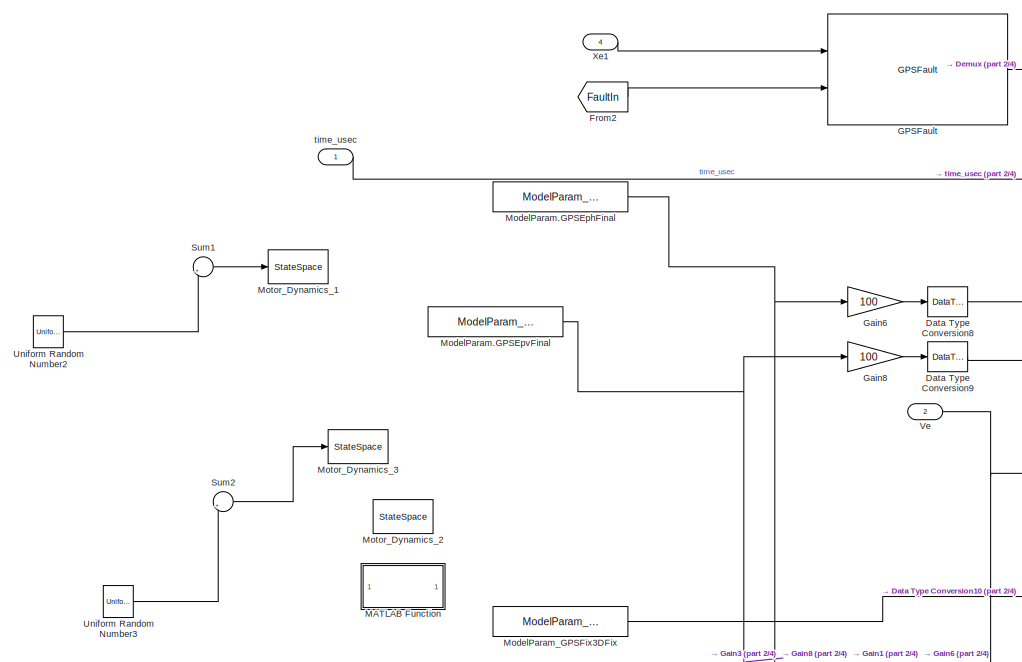
[diagram: OutputPort1/HILGPSModel - part 1/4, top left region]
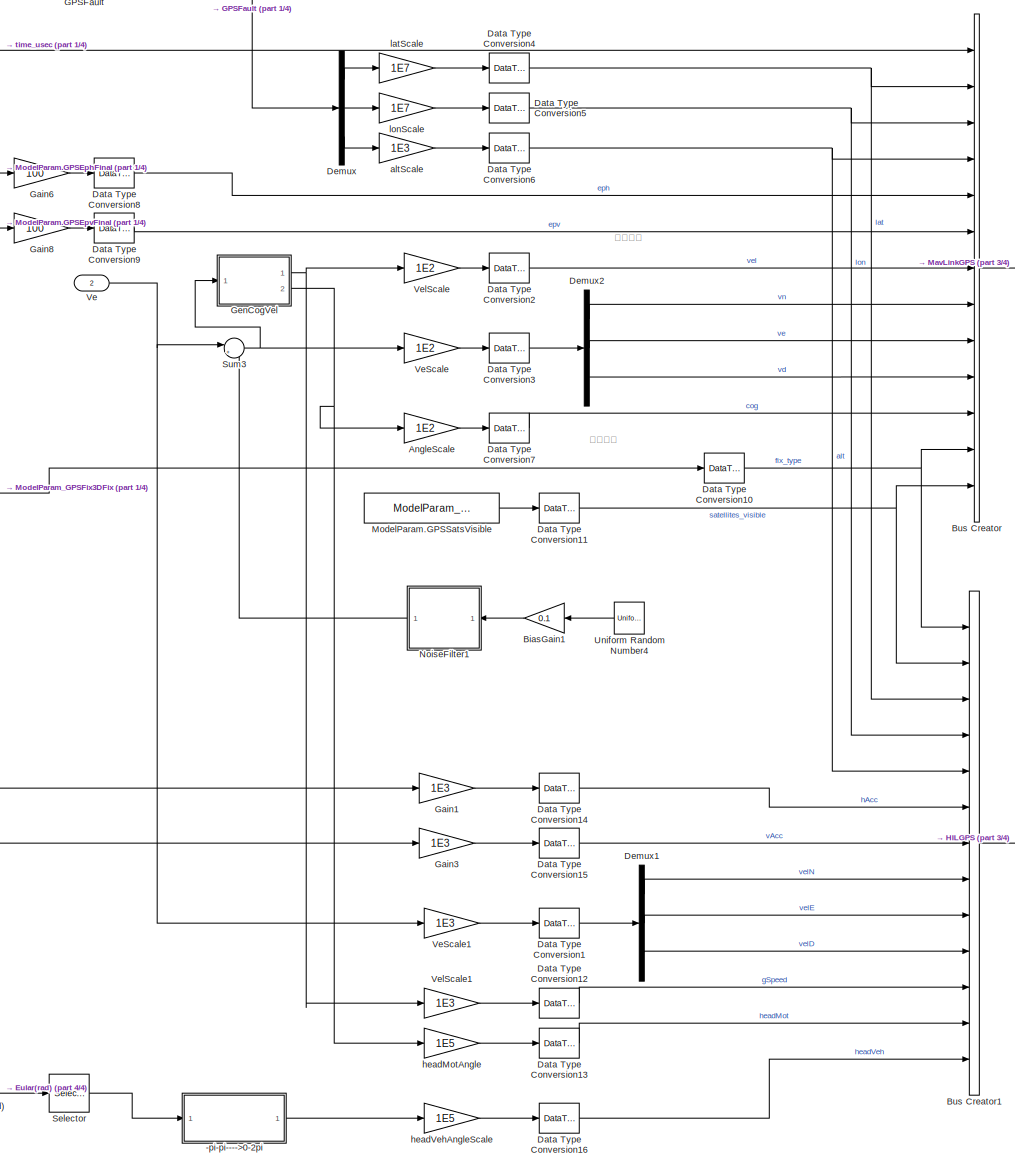
[diagram: OutputPort1/HILGPSModel - part 2/4, center side, full height]
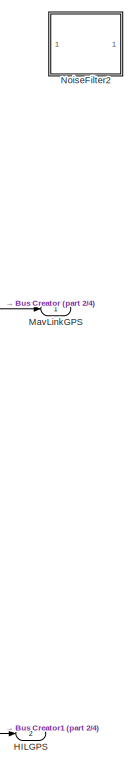
[diagram: OutputPort1/HILGPSModel - part 3/4, middle right region]
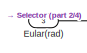
[diagram: OutputPort1/HILGPSModel - part 4/4, bottom center region]
BLOCK [SubSystem] OutputPort1/HILGPSModel
  Ports = [4, 2]
  RequestExecContextInheritance = off
BLOCK [SubSystem] OutputPort1/HILGPSModel/-pi-pi---->0-2pi
  ErrorFcn = Stateflow.Translate.translate
  PermitHierarchicalResolution = ExplicitOnly
  Ports = [1, 1]
  RequestExecContextInheritance = off
  SFBlockType = MATLAB Function
  TreatAsAtomicUnit = on
BLOCK [Demux] OutputPort1/HILGPSModel/-pi-pi---->0-2pi/ Demux 
  Outputs = 1
  Ports = [1, 1]
BLOCK [S-Function] OutputPort1/HILGPSModel/-pi-pi---->0-2pi/ SFunction 
  EnableBusSupport = on
  FunctionName = sf_sfun
  PortCounts = [1 2]
  Ports = [1, 2]
  SFcnIsStateOwnerBlock = off
  SFunctionDeploymentMode = off
  Tag = Stateflow S-Function 6
BLOCK [Terminator] OutputPort1/HILGPSModel/-pi-pi---->0-2pi/ Terminator 
BLOCK [Inport] OutputPort1/HILGPSModel/-pi-pi---->0-2pi/yaw180
BLOCK [Outport] OutputPort1/HILGPSModel/-pi-pi---->0-2pi/yaw360
  VectorParamsAs1DForOutWhenUnconnected = off
BLOCK [Gain] OutputPort1/HILGPSModel/AngleScale
  Gain = 1E2
BLOCK [Gain] OutputPort1/HILGPSModel/BiasGain1
  Gain = 0.1
BLOCK [BusCreator] OutputPort1/HILGPSModel/Bus Creator
  DisplayOption = bar
  InheritFromInputs = on
  Inputs = 13
  NonVirtualBus = on
  OutDataTypeStr = Bus: MavLinkGPS
  Ports = [13, 1]
BLOCK [BusCreator] OutputPort1/HILGPSModel/Bus Creator1
  DisplayOption = bar
  InheritFromInputs = on
  Inputs = 13
  NonVirtualBus = on
  OutDataTypeStr = Bus: HILGPS
  Ports = [13, 1]
BLOCK [DataTypeConversion] OutputPort1/HILGPSModel/Data Type Conversion1
  OutDataTypeStr = int32
  RndMeth = Round
  SaturateOnIntegerOverflow = off
BLOCK [DataTypeConversion] OutputPort1/HILGPSModel/Data Type Conversion10
  OutDataTypeStr = uint8
  RndMeth = Round
  SaturateOnIntegerOverflow = off
BLOCK [DataTypeConversion] OutputPort1/HILGPSModel/Data Type Conversion11
  OutDataTypeStr = uint8
  RndMeth = Round
  SaturateOnIntegerOverflow = off
BLOCK [DataTypeConversion] OutputPort1/HILGPSModel/Data Type Conversion12
  OutDataTypeStr = int32
  RndMeth = Round
  SaturateOnIntegerOverflow = off
BLOCK [DataTypeConversion] OutputPort1/HILGPSModel/Data Type Conversion13
  OutDataTypeStr = int32
  RndMeth = Round
  SaturateOnIntegerOverflow = off
BLOCK [DataTypeConversion] OutputPort1/HILGPSModel/Data Type Conversion14
  OutDataTypeStr = uint32
  RndMeth = Round
  SaturateOnIntegerOverflow = off
BLOCK [DataTypeConversion] OutputPort1/HILGPSModel/Data Type Conversion15
  OutDataTypeStr = uint32
  RndMeth = Round
  SaturateOnIntegerOverflow = off
BLOCK [DataTypeConversion] OutputPort1/HILGPSModel/Data Type Conversion16
  OutDataTypeStr = int32
  RndMeth = Round
  SaturateOnIntegerOverflow = off
BLOCK [DataTypeConversion] OutputPort1/HILGPSModel/Data Type Conversion2
  OutDataTypeStr = uint16
  RndMeth = Round
  SaturateOnIntegerOverflow = off
BLOCK [DataTypeConversion] OutputPort1/HILGPSModel/Data Type Conversion3
  OutDataTypeStr = int16
  RndMeth = Round
  SaturateOnIntegerOverflow = off
BLOCK [DataTypeConversion] OutputPort1/HILGPSModel/Data Type Conversion4
  OutDataTypeStr = int32
  RndMeth = Round
  SaturateOnIntegerOverflow = off
BLOCK [DataTypeConversion] OutputPort1/HILGPSModel/Data Type Conversion5
  OutDataTypeStr = int32
  RndMeth = Round
  SaturateOnIntegerOverflow = off
BLOCK [DataTypeConversion] OutputPort1/HILGPSModel/Data Type Conversion6
  OutDataTypeStr = int32
  RndMeth = Round
  SaturateOnIntegerOverflow = off
BLOCK [DataTypeConversion] OutputPort1/HILGPSModel/Data Type Conversion7
  OutDataTypeStr = uint16
  RndMeth = Round
  SaturateOnIntegerOverflow = off
BLOCK [DataTypeConversion] OutputPort1/HILGPSModel/Data Type Conversion8
  OutDataTypeStr = uint16
  RndMeth = Round
  SaturateOnIntegerOverflow = off
BLOCK [DataTypeConversion] OutputPort1/HILGPSModel/Data Type Conversion9
  OutDataTypeStr = uint16
  RndMeth = Round
  SaturateOnIntegerOverflow = off
BLOCK [Demux] OutputPort1/HILGPSModel/Demux
  Outputs = 3
  Ports = [1, 3]
BLOCK [Demux] OutputPort1/HILGPSModel/Demux1
  Outputs = 3
  Ports = [1, 3]
BLOCK [Demux] OutputPort1/HILGPSModel/Demux2
  Outputs = 3
  Ports = [1, 3]
BLOCK [Inport] OutputPort1/HILGPSModel/Eular(rad)
  Port = 3
BLOCK [From] OutputPort1/HILGPSModel/From2
  GotoTag = FaultIn
  TagVisibility = global
BLOCK [Reference] OutputPort1/HILGPSModel/GPSFault  REF=QuadModelLib/GPSFault
  Ports = [2, 1]
  SourceBlock = QuadModelLib/GPSFault
BLOCK [Gain] OutputPort1/HILGPSModel/Gain1
  Gain = 1E3
BLOCK [Gain] OutputPort1/HILGPSModel/Gain3
  Gain = 1E3
BLOCK [Gain] OutputPort1/HILGPSModel/Gain6
  Gain = 100
BLOCK [Gain] OutputPort1/HILGPSModel/Gain8
  Gain = 100
BLOCK [SubSystem] OutputPort1/HILGPSModel/GenCogVel
  ErrorFcn = Stateflow.Translate.translate
  PermitHierarchicalResolution = ExplicitOnly
  Ports = [1, 2]
  RequestExecContextInheritance = off
  SFBlockType = MATLAB Function
  TreatAsAtomicUnit = on
BLOCK [Demux] OutputPort1/HILGPSModel/GenCogVel/ Demux 
  Outputs = 1
  Ports = [1, 1]
BLOCK [S-Function] OutputPort1/HILGPSModel/GenCogVel/ SFunction 
  EnableBusSupport = on
  FunctionName = sf_sfun
  PortCounts = [1 3]
  Ports = [1, 3]
  SFcnIsStateOwnerBlock = off
  SFunctionDeploymentMode = off
  Tag = Stateflow S-Function 16
BLOCK [Terminator] OutputPort1/HILGPSModel/GenCogVel/ Terminator 
BLOCK [Outport] OutputPort1/HILGPSModel/GenCogVel/cot
  Port = 2
  VectorParamsAs1DForOutWhenUnconnected = off
BLOCK [Inport] OutputPort1/HILGPSModel/GenCogVel/u
BLOCK [Outport] OutputPort1/HILGPSModel/GenCogVel/v
  VectorParamsAs1DForOutWhenUnconnected = off
BLOCK [Outport] OutputPort1/HILGPSModel/HILGPS
  Port = 2
  VectorParamsAs1DForOutWhenUnconnected = off
BLOCK [SubSystem] OutputPort1/HILGPSModel/MATLAB Function
  Commented = on
  ErrorFcn = Stateflow.Translate.translate
  PermitHierarchicalResolution = ExplicitOnly
  Ports = [1, 1]
  RequestExecContextInheritance = off
  SFBlockType = MATLAB Function
  TreatAsAtomicUnit = on
BLOCK [Demux] OutputPort1/HILGPSModel/MATLAB Function/ Demux 
  Outputs = 1
  Ports = [1, 1]
BLOCK [S-Function] OutputPort1/HILGPSModel/MATLAB Function/ SFunction 
  EnableBusSupport = on
  FunctionName = sf_sfun
  PortCounts = [1 2]
  Ports = [1, 2]
  SFcnIsStateOwnerBlock = off
  SFunctionDeploymentMode = off
  Tag = Stateflow S-Function 31
BLOCK [Terminator] OutputPort1/HILGPSModel/MATLAB Function/ Terminator 
BLOCK [Outport] OutputPort1/HILGPSModel/MATLAB Function/FixType
  VectorParamsAs1DForOutWhenUnconnected = off
BLOCK [Inport] OutputPort1/HILGPSModel/MATLAB Function/eph
BLOCK [Outport] OutputPort1/HILGPSModel/MavLinkGPS
  VectorParamsAs1DForOutWhenUnconnected = off
BLOCK [Constant] OutputPort1/HILGPSModel/ModelParam.GPSEphFinal
  Value = ModelParam_GPSEphFinal
BLOCK [Constant] OutputPort1/HILGPSModel/ModelParam.GPSEpvFinal
  Value = ModelParam_GPSEpvFinal
BLOCK [Constant] OutputPort1/HILGPSModel/ModelParam.GPSSatsVisible
  Value = ModelParam_GPSSatsVisible
BLOCK [Constant] OutputPort1/HILGPSModel/ModelParam_GPSFix3DFix
  Value = ModelParam_GPSFix3DFix
BLOCK [StateSpace] OutputPort1/HILGPSModel/Motor_Dynamics_1
  A = -1/0.2
  C = 1/0.2
  Commented = on
  D = 0
  InitialCondition = 20*0.2
  Ports = [1, 1]
BLOCK [StateSpace] OutputPort1/HILGPSModel/Motor_Dynamics_2
  A = -1/ModelParam_GPSEpvTimeConstant
  C = 1/ModelParam_GPSEpvTimeConstant
  Commented = on
  D = 0
  InitialCondition = ModelParam_GPSEpvInitial*ModelParam_GPSEpvTimeConstant
  Ports = [1, 1]
BLOCK [StateSpace] OutputPort1/HILGPSModel/Motor_Dynamics_3
  A = -1/0.2
  C = 1/0.2
  Commented = on
  D = 0
  InitialCondition = 20*0.2
  Ports = [1, 1]
BLOCK [SubSystem] OutputPort1/HILGPSModel/NoiseFilter1
  Ports = [1, 1]
  RequestExecContextInheritance = off
BLOCK [Demux] OutputPort1/HILGPSModel/NoiseFilter1/Demux
  Outputs = 3
  Ports = [1, 3]
BLOCK [Inport] OutputPort1/HILGPSModel/NoiseFilter1/In1
BLOCK [Mux] OutputPort1/HILGPSModel/NoiseFilter1/Mux1
  DisplayOption = bar
  Inputs = 3
  Ports = [3, 1]
BLOCK [Outport] OutputPort1/HILGPSModel/NoiseFilter1/Out1
  VectorParamsAs1DForOutWhenUnconnected = off
BLOCK [TransferFcn] OutputPort1/HILGPSModel/NoiseFilter1/Transfer Fcn1
  Denominator = [0.05 1]
BLOCK [TransferFcn] OutputPort1/HILGPSModel/NoiseFilter1/Transfer Fcn2
  Denominator = [0.05 1]
BLOCK [TransferFcn] OutputPort1/HILGPSModel/NoiseFilter1/Transfer Fcn4
  Denominator = [0.05 1]
BLOCK [SubSystem] OutputPort1/HILGPSModel/NoiseFilter2
  Commented = on
  Ports = [1, 1]
  RequestExecContextInheritance = off
BLOCK [Demux] OutputPort1/HILGPSModel/NoiseFilter2/Demux
  Outputs = 3
  Ports = [1, 3]
BLOCK [Inport] OutputPort1/HILGPSModel/NoiseFilter2/In1
BLOCK [Mux] OutputPort1/HILGPSModel/NoiseFilter2/Mux1
  DisplayOption = bar
  Inputs = 3
  Ports = [3, 1]
BLOCK [Outport] OutputPort1/HILGPSModel/NoiseFilter2/Out1
  VectorParamsAs1DForOutWhenUnconnected = off
BLOCK [TransferFcn] OutputPort1/HILGPSModel/NoiseFilter2/Transfer Fcn1
  Denominator = [0.05 1]
BLOCK [TransferFcn] OutputPort1/HILGPSModel/NoiseFilter2/Transfer Fcn2
  Denominator = [0.05 1]
BLOCK [TransferFcn] OutputPort1/HILGPSModel/NoiseFilter2/Transfer Fcn4
  Denominator = [0.05 1]
BLOCK [Selector] OutputPort1/HILGPSModel/Selector
  IndexOptions = Index vector (dialog)
  Indices = [3]
  InputPortWidth = 3
  OutputSizes = 1
  Ports = [1, 1]
BLOCK [Sum] OutputPort1/HILGPSModel/Sum1
  Commented = on
  Inputs = |++
  Ports = [2, 1]
BLOCK [Sum] OutputPort1/HILGPSModel/Sum2
  Commented = on
  Inputs = |++
  Ports = [2, 1]
BLOCK [Sum] OutputPort1/HILGPSModel/Sum3
  Inputs = |++
  Ports = [2, 1]
BLOCK [UniformRandomNumber] OutputPort1/HILGPSModel/Uniform Random Number2
  Commented = on
  Maximum = 0.01
  Minimum = -0.01
  SampleTime = ModelParam_noiseGPSSampTime
  Seed = 4345454
BLOCK [UniformRandomNumber] OutputPort1/HILGPSModel/Uniform Random Number3
  Commented = on
  SampleTime = ModelParam_noiseGPSSampTime
  Seed = 3244333
BLOCK [UniformRandomNumber] OutputPort1/HILGPSModel/Uniform Random Number4
  Maximum = [1,1,2]
  Minimum = [-1,-1,-2]
  SampleTime = ModelParam_noiseGPSSampTime
  Seed = [5445,45433,33433]
BLOCK [Inport] OutputPort1/HILGPSModel/Ve
  NameLocation = top
  Port = 2
BLOCK [Gain] OutputPort1/HILGPSModel/VeScale
  Gain = 1E2
BLOCK [Gain] OutputPort1/HILGPSModel/VeScale1
  Gain = 1E3
BLOCK [Gain] OutputPort1/HILGPSModel/VelScale
  Gain = 1E2
BLOCK [Gain] OutputPort1/HILGPSModel/VelScale1
  Gain = 1E3
BLOCK [Inport] OutputPort1/HILGPSModel/Xe1
  Port = 4
BLOCK [Gain] OutputPort1/HILGPSModel/altScale
  Gain = 1E3
BLOCK [Gain] OutputPort1/HILGPSModel/headMotAngle
  Gain = 1E5
BLOCK [Gain] OutputPort1/HILGPSModel/headVehAngleScale
  Gain = 1E5
BLOCK [Gain] OutputPort1/HILGPSModel/latScale
  Gain = 1E7
BLOCK [Gain] OutputPort1/HILGPSModel/lonScale
  Gain = 1E7
BLOCK [Inport] OutputPort1/HILGPSModel/time_usec
  NameLocation = top
BLOCK [SubSystem] OutputPort1/HILSensorMavModel1
  Ports = [12, 3]
  RequestExecContextInheritance = off
BLOCK [Inport] OutputPort1/HILSensorMavModel1/Ab
  NameLocation = top
  Port = 8
BLOCK [Inport] OutputPort1/HILSensorMavModel1/DCMbe
  NameLocation = top
  Port = 9
BLOCK [Inport] OutputPort1/HILSensorMavModel1/GPSPos
  Port = 5
BLOCK [Inport] OutputPort1/HILSensorMavModel1/Gravity
  NameLocation = top
  Port = 2
BLOCK [Outport] OutputPort1/HILSensorMavModel1/MagDeclination
  Port = 2
  VectorParamsAs1DForOutWhenUnconnected = off
BLOCK [Inport] OutputPort1/HILSensorMavModel1/PWMin
  Port = 11
BLOCK [Outport] OutputPort1/HILSensorMavModel1/SensorOut
  VectorParamsAs1DForOutWhenUnconnected = off
BLOCK [SubSystem] OutputPort1/HILSensorMavModel1/Subsystem
  Ports = [12, 3]
  RequestExecContextInheritance = off
BLOCK [Inport] OutputPort1/HILSensorMavModel1/Subsystem/Ab
  NameLocation = top
  Port = 6
BLOCK [SubSystem] OutputPort1/HILSensorMavModel1/Subsystem/AccelNoiseGainFunction
  ErrorFcn = Stateflow.Translate.translate
  PermitHierarchicalResolution = ExplicitOnly
  Ports = [1, 1]
  RequestExecContextInheritance = off
  SFBlockType = MATLAB Function
  TreatAsAtomicUnit = on
BLOCK [Demux] OutputPort1/HILSensorMavModel1/Subsystem/AccelNoiseGainFunction/ Demux 
  Outputs = 1
  Ports = [1, 1]
BLOCK [S-Function] OutputPort1/HILSensorMavModel1/Subsystem/AccelNoiseGainFunction/ SFunction 
  EnableBusSupport = on
  FunctionName = sf_sfun
  Parameters = ModelParam_noisePowerOffGainAccel,ModelParam_noisePowerOffGainAccelZ,ModelParam_noisePowerOnGainAccel,ModelParam_noisePowerOnGainAccelZ
  PortCounts = [1 2]
  Ports = [1, 2]
  SFcnIsStateOwnerBlock = off
  SFunctionDeploymentMode = off
  Tag = Stateflow S-Function 17
BLOCK [Terminator] OutputPort1/HILSensorMavModel1/Subsystem/AccelNoiseGainFunction/ Terminator 
BLOCK [Outport] OutputPort1/HILSensorMavModel1/Subsystem/AccelNoiseGainFunction/Gain
  VectorParamsAs1DForOutWhenUnconnected = off
BLOCK [Inport] OutputPort1/HILSensorMavModel1/Subsystem/AccelNoiseGainFunction/theta
BLOCK [BusCreator] OutputPort1/HILSensorMavModel1/Subsystem/Bus Creator
  DisplayOption = bar
  InheritFromInputs = on
  Inputs = 15
  NonVirtualBus = on
  OutDataTypeStr = Bus: MavLinkSensor
  Ports = [15, 1]
BLOCK [Constant] OutputPort1/HILSensorMavModel1/Subsystem/Constant
  Value = 8191
BLOCK [Inport] OutputPort1/HILSensorMavModel1/Subsystem/DCMbe
  NameLocation = top
  Port = 9
BLOCK [DataTypeConversion] OutputPort1/HILSensorMavModel1/Subsystem/Data Type Conversion6
  OutDataTypeStr = uint32
  RndMeth = Floor
  SaturateOnIntegerOverflow = off
BLOCK [Demux] OutputPort1/HILSensorMavModel1/Subsystem/Demux
  Outputs = 5
  Ports = [1, 5]
BLOCK [Demux] OutputPort1/HILSensorMavModel1/Subsystem/Demux3
  Outputs = 3
  Ports = [1, 3]
BLOCK [Demux] OutputPort1/HILSensorMavModel1/Subsystem/Demux5
  Outputs = 3
  Ports = [1, 3]
BLOCK [Demux] OutputPort1/HILSensorMavModel1/Subsystem/Demux6
  Outputs = 3
  Ports = [1, 3]
BLOCK [Demux] OutputPort1/HILSensorMavModel1/Subsystem/Demux7
  Ports = [1, 4]
BLOCK [From] OutputPort1/HILSensorMavModel1/Subsystem/From2
  GotoTag = FaultIn
  TagVisibility = global
BLOCK [Inport] OutputPort1/HILSensorMavModel1/Subsystem/GPSPos
  Port = 5
BLOCK [Inport] OutputPort1/HILSensorMavModel1/Subsystem/Gravity
  Port = 12
BLOCK [SubSystem] OutputPort1/HILSensorMavModel1/Subsystem/GyroNoiseGainFunction
  ErrorFcn = Stateflow.Translate.translate
  PermitHierarchicalResolution = ExplicitOnly
  Ports = [1, 1]
  RequestExecContextInheritance = off
  SFBlockType = MATLAB Function
  TreatAsAtomicUnit = on
BLOCK [Demux] OutputPort1/HILSensorMavModel1/Subsystem/GyroNoiseGainFunction/ Demux 
  Outputs = 1
  Ports = [1, 1]
BLOCK [S-Function] OutputPort1/HILSensorMavModel1/Subsystem/GyroNoiseGainFunction/ SFunction 
  EnableBusSupport = on
  FunctionName = sf_sfun
  Parameters = ModelParam_noisePowerOffGainGyro,ModelParam_noisePowerOffGainGyroZ,ModelParam_noisePowerOnGainGyro,ModelParam_noisePowerOnGainGyroZ
  PortCounts = [1 2]
  Ports = [1, 2]
  SFcnIsStateOwnerBlock = off
  SFunctionDeploymentMode = off
  Tag = Stateflow S-Function 23
BLOCK [Terminator] OutputPort1/HILSensorMavModel1/Subsystem/GyroNoiseGainFunction/ Terminator 
BLOCK [Outport] OutputPort1/HILSensorMavModel1/Subsystem/GyroNoiseGainFunction/Gain
  VectorParamsAs1DForOutWhenUnconnected = off
BLOCK [Inport] OutputPort1/HILSensorMavModel1/Subsystem/GyroNoiseGainFunction/theta
BLOCK [Outport] OutputPort1/HILSensorMavModel1/Subsystem/MagDeclination
  Port = 2
  VectorParamsAs1DForOutWhenUnconnected = off
BLOCK [SubSystem] OutputPort1/HILSensorMavModel1/Subsystem/MagNoiseGainFunction
  ErrorFcn = Stateflow.Translate.translate
  PermitHierarchicalResolution = ExplicitOnly
  Ports = [1, 1]
  RequestExecContextInheritance = off
  SFBlockType = MATLAB Function
  TreatAsAtomicUnit = on
BLOCK [Demux] OutputPort1/HILSensorMavModel1/Subsystem/MagNoiseGainFunction/ Demux 
  Outputs = 1
  Ports = [1, 1]
BLOCK [S-Function] OutputPort1/HILSensorMavModel1/Subsystem/MagNoiseGainFunction/ SFunction 
  EnableBusSupport = on
  FunctionName = sf_sfun
  Parameters = ModelParam_noisePowerOffGainMag,ModelParam_noisePowerOffGainMagZ,ModelParam_noisePowerOnGainMag,ModelParam_noisePowerOnGainMagZ
  PortCounts = [1 2]
  Ports = [1, 2]
  SFcnIsStateOwnerBlock = off
  SFunctionDeploymentMode = off
  Tag = Stateflow S-Function 24
BLOCK [Terminator] OutputPort1/HILSensorMavModel1/Subsystem/MagNoiseGainFunction/ Terminator 
BLOCK [Outport] OutputPort1/HILSensorMavModel1/Subsystem/MagNoiseGainFunction/Gain
  VectorParamsAs1DForOutWhenUnconnected = off
BLOCK [Inport] OutputPort1/HILSensorMavModel1/Subsystem/MagNoiseGainFunction/theta
BLOCK [Inport] OutputPort1/HILSensorMavModel1/Subsystem/PWMin
  Port = 10
BLOCK [Selector] OutputPort1/HILSensorMavModel1/Subsystem/Selector
  IndexOptions = Index vector (dialog)
  Indices = [1]
  InputPortWidth = 8
  OutputSizes = 1
  Ports = [1, 1]
BLOCK [Reference] OutputPort1/HILSensorMavModel1/Subsystem/SensorFault  REF=QuadModelLib/SensorFault
  Ports = [11, 1]
  SourceBlock = QuadModelLib/SensorFault
BLOCK [Outport] OutputPort1/HILSensorMavModel1/Subsystem/SensorOut
  VectorParamsAs1DForOutWhenUnconnected = off
BLOCK [Inport] OutputPort1/HILSensorMavModel1/Subsystem/TempC
  NameLocation = top
  Port = 4
BLOCK [Terminator] OutputPort1/HILSensorMavModel1/Subsystem/Terminator5
BLOCK [Terminator] OutputPort1/HILSensorMavModel1/Subsystem/Terminator6
BLOCK [Terminator] OutputPort1/HILSensorMavModel1/Subsystem/Terminator7
BLOCK [Outport] OutputPort1/HILSensorMavModel1/Subsystem/acc
  Port = 3
  VectorParamsAs1DForOutWhenUnconnected = off
BLOCK [Inport] OutputPort1/HILSensorMavModel1/Subsystem/dwt
  Port = 8
BLOCK [Inport] OutputPort1/HILSensorMavModel1/Subsystem/pressure
BLOCK [Inport] OutputPort1/HILSensorMavModel1/Subsystem/rho
  Port = 3
BLOCK [Inport] OutputPort1/HILSensorMavModel1/Subsystem/time_usec
  Port = 11
BLOCK [Inport] OutputPort1/HILSensorMavModel1/Subsystem/wb
  NameLocation = top
  Port = 7
BLOCK [Inport] OutputPort1/HILSensorMavModel1/Subsystem/windB
  Port = 2
BLOCK [Inport] OutputPort1/HILSensorMavModel1/TempC
  NameLocation = top
  Port = 3
BLOCK [Outport] OutputPort1/HILSensorMavModel1/acc
  Port = 3
  VectorParamsAs1DForOutWhenUnconnected = off
BLOCK [Inport] OutputPort1/HILSensorMavModel1/dwt
  Port = 7
BLOCK [Inport] OutputPort1/HILSensorMavModel1/pressure
  Port = 4
BLOCK [Inport] OutputPort1/HILSensorMavModel1/rho
  Port = 12
BLOCK [Inport] OutputPort1/HILSensorMavModel1/time_usec
BLOCK [Inport] OutputPort1/HILSensorMavModel1/wb
  NameLocation = top
  Port = 6
BLOCK [Inport] OutputPort1/HILSensorMavModel1/windB
  Port = 10
BLOCK [SubSystem] OutputPort1/HILStateMavModel
  Ports = [8, 1]
  RequestExecContextInheritance = off
BLOCK [Inport] OutputPort1/HILStateMavModel/Accb
  Port = 8
BLOCK [Sqrt] OutputPort1/HILStateMavModel/Airspeed1
  AlgorithmType = Newton-Raphson
BLOCK [Inport] OutputPort1/HILStateMavModel/AngQuat
  NameLocation = top
  Port = 5
BLOCK [BusCreator] OutputPort1/HILStateMavModel/Bus Creator
  DisplayOption = bar
  InheritFromInputs = on
  Inputs = 16
  NonVirtualBus = on
  OutDataTypeStr = Bus: MavLinkStateQuat
  Ports = [16, 1]
BLOCK [DataTypeConversion] OutputPort1/HILStateMavModel/Data Type Conversion1
  OutDataTypeStr = int32
  RndMeth = Round
  SaturateOnIntegerOverflow = off
BLOCK [DataTypeConversion] OutputPort1/HILStateMavModel/Data Type Conversion2
  OutDataTypeStr = single
  RndMeth = Floor
  SaturateOnIntegerOverflow = off
BLOCK [DataTypeConversion] OutputPort1/HILStateMavModel/Data Type Conversion3
  OutDataTypeStr = single
  RndMeth = Floor
  SaturateOnIntegerOverflow = off
BLOCK [DataTypeConversion] OutputPort1/HILStateMavModel/Data Type Conversion4
  OutDataTypeStr = int32
  RndMeth = Round
  SaturateOnIntegerOverflow = off
BLOCK [DataTypeConversion] OutputPort1/HILStateMavModel/Data Type Conversion5
  OutDataTypeStr = int32
  RndMeth = Round
  SaturateOnIntegerOverflow = off
BLOCK [DataTypeConversion] OutputPort1/HILStateMavModel/Data Type Conversion7
  OutDataTypeStr = int16
  RndMeth = Round
  SaturateOnIntegerOverflow = off
BLOCK [DataTypeConversion] OutputPort1/HILStateMavModel/Data Type Conversion8
  OutDataTypeStr = int16
  RndMeth = Round
  SaturateOnIntegerOverflow = off
BLOCK [DataTypeConversion] OutputPort1/HILStateMavModel/Data Type Conversion9
  OutDataTypeStr = uint16
  RndMeth = Round
  SaturateOnIntegerOverflow = off
BLOCK [Demux] OutputPort1/HILStateMavModel/Demux
  Outputs = 3
  Ports = [1, 3]
BLOCK [Demux] OutputPort1/HILStateMavModel/Demux1
  Outputs = 3
  Ports = [1, 3]
BLOCK [Demux] OutputPort1/HILStateMavModel/Demux2
  Outputs = 3
  Ports = [1, 3]
BLOCK [Demux] OutputPort1/HILStateMavModel/Demux3
  Outputs = 3
  Ports = [1, 3]
BLOCK [Demux] OutputPort1/HILStateMavModel/Demux4
  Outputs = 2
  Ports = [1, 2]
BLOCK [Reference] OutputPort1/HILStateMavModel/Dynamic Pressure  REF=aerolibasang/Dynamic Pressure
  Ports = [2, 1]
  SourceBlock = aerolibasang/Dynamic Pressure
  SourceProductBaseCode = AE
  SourceType = Dynamic Pressure
BLOCK [Gain] OutputPort1/HILStateMavModel/Gain
  Gain = 1E7
BLOCK [Gain] OutputPort1/HILStateMavModel/Gain1
  Gain = 1E7
BLOCK [Gain] OutputPort1/HILStateMavModel/Gain2
  Gain = 2/1.225
BLOCK [Gain] OutputPort1/HILStateMavModel/Gain3
  Gain = 1E3
BLOCK [Gain] OutputPort1/HILStateMavModel/Gain4
  Gain = 100
BLOCK [Gain] OutputPort1/HILStateMavModel/Gain5
  Gain = 1000.0/9.80665
BLOCK [Gain] OutputPort1/HILStateMavModel/Gain7
  Gain = 100
BLOCK [Mux] OutputPort1/HILStateMavModel/Mux1
  DisplayOption = bar
  Inputs = 2
  Ports = [2, 1]
BLOCK [Inport] OutputPort1/HILStateMavModel/PosGPS
  NameLocation = top
  Port = 7
BLOCK [Sqrt] OutputPort1/HILStateMavModel/Sqrt1
BLOCK [Inport] OutputPort1/HILStateMavModel/Vb
  NameLocation = top
  Port = 3
BLOCK [Inport] OutputPort1/HILStateMavModel/Ve
  NameLocation = top
  Port = 4
BLOCK [Reference] OutputPort1/HILStateMavModel/dot1  REF=aerolibasang/Incidence, Sideslip,
& Airspeed/dot
  Ports = [1, 1]
  SourceBlock = aerolibasang/Incidence, Sideslip,\n& Airspeed/dot
  SourceProductBaseCode = AE
  SourceType = SubSystem
BLOCK [Inport] OutputPort1/HILStateMavModel/pho
  Port = 2
BLOCK [Outport] OutputPort1/HILStateMavModel/stateOut
  VectorParamsAs1DForOutWhenUnconnected = off
BLOCK [Inport] OutputPort1/HILStateMavModel/time_usec
BLOCK [Inport] OutputPort1/HILStateMavModel/wb
  Port = 6
BLOCK [Outport] OutputPort1/MagDec
  Port = 5
  VectorParamsAs1DForOutWhenUnconnected = off
BLOCK [Outport] OutputPort1/MavLinkGPSData
  Port = 3
  VectorParamsAs1DForOutWhenUnconnected = off
BLOCK [Outport] OutputPort1/MavLinkSensorData
  VectorParamsAs1DForOutWhenUnconnected = off
BLOCK [Outport] OutputPort1/MavLinkStateQuatData
  Port = 2
  VectorParamsAs1DForOutWhenUnconnected = off
BLOCK [SubSystem] OutputPort1/Model Fail Assessment
  ErrorFcn = Stateflow.Translate.translate
  PermitHierarchicalResolution = ExplicitOnly
  Ports = [6, 1]
  RequestExecContextInheritance = off
  SFBlockType = MATLAB Function
  TreatAsAtomicUnit = on
BLOCK [Demux] OutputPort1/Model Fail Assessment/ Demux 
  Outputs = 1
  Ports = [1, 1]
BLOCK [S-Function] OutputPort1/Model Fail Assessment/ SFunction 
  EnableBusSupport = on
  FunctionName = sf_sfun
  PortCounts = [6 2]
  Ports = [6, 2]
  SFcnIsStateOwnerBlock = off
  SFunctionDeploymentMode = off
  Tag = Stateflow S-Function 26
BLOCK [Terminator] OutputPort1/Model Fail Assessment/ Terminator 
BLOCK [Outport] OutputPort1/Model Fail Assessment/FailInfo
  VectorParamsAs1DForOutWhenUnconnected = off
BLOCK [Inport] OutputPort1/Model Fail Assessment/ModelFailEnable
BLOCK [Inport] OutputPort1/Model Fail Assessment/ang
  Port = 6
BLOCK [Inport] OutputPort1/Model Fail Assessment/landed
  Port = 2
BLOCK [Inport] OutputPort1/Model Fail Assessment/ve
  Port = 3
BLOCK [Inport] OutputPort1/Model Fail Assessment/wb
  Port = 5
BLOCK [Inport] OutputPort1/Model Fail Assessment/xe
  Port = 4
BLOCK [Constant] OutputPort1/ModelFailEnable
  Value = ModelFailEnable
BLOCK [Outport] OutputPort1/MotorRPMS
  Port = 18
  VectorParamsAs1DForOutWhenUnconnected = off
BLOCK [Inport] OutputPort1/MotorRads
  Port = 2
BLOCK [Outport] OutputPort1/PosE
  Port = 8
  VectorParamsAs1DForOutWhenUnconnected = off
BLOCK [Outport] OutputPort1/PosGPS
  Port = 11
  VectorParamsAs1DForOutWhenUnconnected = off
BLOCK [Outport] OutputPort1/RateB
  Port = 12
  VectorParamsAs1DForOutWhenUnconnected = off
BLOCK [Outport] OutputPort1/SysTime
  Port = 6
  VectorParamsAs1DForOutWhenUnconnected = off
BLOCK [SubSystem] OutputPort1/To Sim Control
  Commented = on
  Ports = [5, 1]
  RequestExecContextInheritance = off
BLOCK [Inport] OutputPort1/To Sim Control/AngEuler
  NameLocation = top
  Port = 3
BLOCK [BusCreator] OutputPort1/To Sim Control/Bus Creator
  DisplayOption = bar
  InheritFromInputs = off
  Inputs = 16
  OutDataTypeStr = Bus: StatesandOutput
  Ports = [16, 1]
BLOCK [Demux] OutputPort1/To Sim Control/Demux
  Outputs = 3
  Ports = [1, 3]
BLOCK [Demux] OutputPort1/To Sim Control/Demux1
  Outputs = 3
  Ports = [1, 3]
BLOCK [Demux] OutputPort1/To Sim Control/Demux2
  Outputs = 3
  Ports = [1, 3]
BLOCK [Demux] OutputPort1/To Sim Control/Demux3
  Outputs = 3
  Ports = [1, 3]
BLOCK [Demux] OutputPort1/To Sim Control/Demux5
  Outputs = 3
  Ports = [1, 3]
BLOCK [From] OutputPort1/To Sim Control/From Motor Dynamics
  GotoTag = B
  TagVisibility = global
BLOCK [Inport] OutputPort1/To Sim Control/Rateb
  NameLocation = top
  Port = 4
BLOCK [Outport] OutputPort1/To Sim Control/States and Output
  OutDataTypeStr = Bus: StatesandOutput
  VectorParamsAs1DForOutWhenUnconnected = off
BLOCK [Inport] OutputPort1/To Sim Control/Vb
  NameLocation = top
  Port = 5
BLOCK [Inport] OutputPort1/To Sim Control/Ve
  NameLocation = top
BLOCK [Inport] OutputPort1/To Sim Control/Xe
  NameLocation = top
  Port = 2
BLOCK [Constant] OutputPort1/UAVType
  Value = ModelParam_uavType
BLOCK [Outport] OutputPort1/Vehile3DInfo
  Port = 20
  VectorParamsAs1DForOutWhenUnconnected = off
BLOCK [Outport] OutputPort1/VelE
  Port = 7
  VectorParamsAs1DForOutWhenUnconnected = off
BLOCK [SubSystem] OutputPort1/ZLimit
  ErrorFcn = Stateflow.Translate.translate
  PermitHierarchicalResolution = ExplicitOnly
  Ports = [2, 1]
  RequestExecContextInheritance = off
  SFBlockType = MATLAB Function
  TreatAsAtomicUnit = on
BLOCK [Demux] OutputPort1/ZLimit/ Demux 
  Outputs = 1
  Ports = [1, 1]
BLOCK [S-Function] OutputPort1/ZLimit/ SFunction 
  EnableBusSupport = on
  FunctionName = sf_sfun
  PortCounts = [2 2]
  Ports = [2, 2]
  SFcnIsStateOwnerBlock = off
  SFunctionDeploymentMode = off
  Tag = Stateflow S-Function 27
BLOCK [Terminator] OutputPort1/ZLimit/ Terminator 
BLOCK [Outport] OutputPort1/ZLimit/Xee
  VectorParamsAs1DForOutWhenUnconnected = off
BLOCK [Inport] OutputPort1/ZLimit/xe
  Port = 2
BLOCK [Inport] OutputPort1/ZLimit/zt
BLOCK [Outport] OutputPort1/landed
  Port = 15
  VectorParamsAs1DForOutWhenUnconnected = off
BLOCK [Outport] OutputPort1/wind
  Port = 19
  VectorParamsAs1DForOutWhenUnconnected = off
BLOCK [Inport] OutputPort1/zt
  Port = 3
BLOCK [Outport] PXIHILGPSData
  OutDataTypeStr = Bus: HILGPS
  Port = 4
  VectorParamsAs1DForOutWhenUnconnected = off
BLOCK [Outport] PosE
  Port = 8
  VectorParamsAs1DForOutWhenUnconnected = off
BLOCK [Outport] PosGPS
  Port = 11
  SignalType = real
  VectorParamsAs1DForOutWhenUnconnected = off
BLOCK [SubSystem] Prop FaultModel
  Ports = [1, 1]
  RequestExecContextInheritance = off
BLOCK [From] Prop FaultModel/From1
  GotoTag = FaultIn
  TagVisibility = global
BLOCK [Outport] Prop FaultModel/MotorRads
  VectorParamsAs1DForOutWhenUnconnected = off
BLOCK [Inport] Prop FaultModel/MotorRadsin
BLOCK [Reference] Prop FaultModel/PropFault  REF=QuadModelLib/PropFault
  Ports = [2, 1]
  SourceBlock = QuadModelLib/PropFault
BLOCK [Outport] RateB
  Port = 12
  VectorParamsAs1DForOutWhenUnconnected = off
BLOCK [Selector] Selector
  IndexOptions = Index vector (dialog)
  Indices = [1:8]
  InputPortWidth = 8
  OutputSizes = 1
  Ports = [1, 1]
BLOCK [Outport] SysTime
  Port = 6
  VectorParamsAs1DForOutWhenUnconnected = off
BLOCK [Inport] TerrainZ
  Port = 2
  PortDimensions = 1
BLOCK [Outport] VelE
  Port = 7
  VectorParamsAs1DForOutWhenUnconnected = off
BLOCK [Inport] inFloatsCollision
  OutDataTypeStr = single
  Port = 3
  PortDimensions = 20
BLOCK [Inport] inPWMs
  PortDimensions = 8
BLOCK [Inport] inSILFloats
  OutDataTypeStr = single
  Port = 5
  PortDimensions = 20
BLOCK [Inport] inSILInts
  OutDataTypeStr = int32
  Port = 4
  PortDimensions = 8
BLOCK [Outport] landed
  Port = 15
  VectorParamsAs1DForOutWhenUnconnected = off
BLOCK [Outport] magDec
  Port = 5
  VectorParamsAs1DForOutWhenUnconnected = off
BLOCK [Outport] outCopterData
  OutDataTypeStr = double
  Port = 21
  PortDimensions = 32
  VectorParamsAs1DForOutWhenUnconnected = off
BLOCK [Outport] wind
  Port = 19
  VectorParamsAs1DForOutWhenUnconnected = off
ANNOTATION (root): 32-dimensional external output double signals to CopterSim, the definition is listed as follows. The data will be stored in the log file CopterSim*.csv (you should create a file to store data), where * is the CopterID of a CopterSim. You can store any data you want to in sequence The data will also sent to 30100 + (2*i-2) series port, which can be listened through Simulink or Python. The struct is
ANNOTATION (root): 16-dimensional pwm inputs
ANNOTATION (root): 20-dimensional external input float signals that can be transfered from UE4 through UDP network.
ANNOTATION (root): 20-dimensional external input float signals that can be transfered from other programs through UDP network.
ANNOTATION (root): 8-dimensional external input int signals that can be transfered from other programs through UDP network.
ANNOTATION (root): select the 1:8 inputs
ANNOTATION (root): isMotorFault
ANNOTATION Force and Moment Model/Propeller Model/Multicopter/For Iterator Subsystem: 动力系统数量
ANNOTATION Force and Moment Model/Propeller Model/Multicopter/For Iterator Subsystem/MotorForceAndMomentInAirFrame: 依次包含di和hi (m)
ANNOTATION Force and Moment Model/Propeller Model/Multicopter/For Iterator Subsystem/MotorForceAndMomentInAirFrame: 单个电机产生的力
ANNOTATION Force and Moment Model/Propeller Model/Multicopter/For Iterator Subsystem/MotorForceAndMomentInAirFrame: 单个电机产生的力矩
ANNOTATION Force and Moment Model/Propeller Model/Multicopter/For Iterator Subsystem/MotorForceAndMomentInAirFrame: 机体角速度rad/s
ANNOTATION Force and Moment Model/Propeller Model/Multicopter/For Iterator Subsystem/MotorForceAndMomentInAirFrame: 电机位置在机体坐标系下的投影
ANNOTATION Force and Moment Model/Propeller Model/Multicopter/For Iterator Subsystem/MotorForceAndMomentInAirFrame: 电机旋转方向 (俯视图下,顺时针为1;正逆时针为-1)
ANNOTATION Force and Moment Model/Propeller Model/Multicopter/For Iterator Subsystem/MotorForceAndMomentInAirFrame: 电机欧拉角rad
ANNOTATION Force and Moment Model/Propeller Model/Multicopter/For Iterator Subsystem/MotorForceAndMomentInAirFrame: 电机轴指向机体系正方向于机体系下的投影
ANNOTATION Force and Moment Model/Propeller Model/Multicopter/For Iterator Subsystem/MotorForceAndMomentInAirFrame: 电机轴转动惯量(含桨叶)
ANNOTATION Force and Moment Model/Propeller Model/Multicopter/For Iterator Subsystem/MotorForceAndMomentInAirFrame: 电机轴转动角速度 rad/s
ANNOTATION LogSelectModel: 1:3
ANNOTATION LogSelectModel: 4:6
ANNOTATION LogSelectModel: 7:9
ANNOTATION OutputPort1/HILGPSModel: 水平速度
ANNOTATION OutputPort1/HILGPSModel: 运动方位
LINE 6DOF/Bus Creator:1 -> 6DOF/6DOF Bus:1
LINE 6DOF/Bus Selector1:1 -> 6DOF/Sum1:2
LINE 6DOF/Bus Selector1:2 -> 6DOF/Sum:1
LINE 6DOF/Bus Selector:1 -> 6DOF/Sum:2
LINE 6DOF/Bus Selector:2 -> 6DOF/Custom Variable Mass 6DOF (Quaternion):3
LINE 6DOF/Bus Selector:3 -> 6DOF/Custom Variable Mass 6DOF (Quaternion):5
LINE 6DOF/Constant_dI//dt:1 -> 6DOF/Custom Variable Mass 6DOF (Quaternion):4
LINE 6DOF/Custom Variable Mass 6DOF (Quaternion):1 -> 6DOF/Bus Creator:1
LINE 6DOF/Custom Variable Mass 6DOF (Quaternion):2 -> 6DOF/Bus Creator:2
LINE 6DOF/Custom Variable Mass 6DOF (Quaternion):3 -> 6DOF/Bus Creator:3
LINE 6DOF/Custom Variable Mass 6DOF (Quaternion):4 -> 6DOF/Bus Creator:4
LINE 6DOF/Custom Variable Mass 6DOF (Quaternion):5 -> 6DOF/Bus Creator:5
LINE 6DOF/Custom Variable Mass 6DOF (Quaternion):6 -> 6DOF/Bus Creator:6
LINE 6DOF/Custom Variable Mass 6DOF (Quaternion):7 -> 6DOF/Bus Creator:7
LINE 6DOF/Custom Variable Mass 6DOF (Quaternion):8 -> 6DOF/Bus Creator:8
LINE 6DOF/Demux:1 -> 6DOF/Sum1:1
LINE 6DOF/Demux:2 -> 6DOF/Sum:3
LINE 6DOF/Fail Model Bus:1 -> 6DOF/Bus Selector:1
LINE 6DOF/Force and Moment Model Bus:1 -> 6DOF/Bus Selector1:1
LINE 6DOF/Sum1:1 -> 6DOF/Custom Variable Mass 6DOF (Quaternion):1
LINE 6DOF/Sum:1 -> 6DOF/Custom Variable Mass 6DOF (Quaternion):2
LINE 6DOF/fColi:1 -> 6DOF/Demux:1
NET 6DOF:1 -> Bus Selector:1, Environment FaultModel1:1, Fail Model:1, Force and Moment Model:3, OutputPort1:5
LINE Battery FaultModel/BatteryFault:1 -> Battery FaultModel/Bus Selector:1
LINE Battery FaultModel/Bus Creator1:1 -> Battery FaultModel/Goto:1
LINE Battery FaultModel/Bus Creator2:1 -> Battery FaultModel/Goto1:1
LINE Battery FaultModel/Bus Creator3:1 -> Battery FaultModel/Goto2:1
LINE Battery FaultModel/Bus Creator4:1 -> Battery FaultModel/Goto3:1
LINE Battery FaultModel/Bus Creator:1 -> Battery FaultModel/Battery Model Bus1:1
LINE Battery FaultModel/Bus Selector:1 -> Battery FaultModel/MATLAB Function:6
LINE Battery FaultModel/Bus Selector:2 -> Battery FaultModel/MATLAB Function:7
LINE Battery FaultModel/Bus Selector:3 -> Battery FaultModel/MATLAB Function:8
LINE Battery FaultModel/Bus Selector:4 -> Battery FaultModel/MATLAB Function:9
LINE Battery FaultModel/Bus Selector:5 -> Battery FaultModel/MATLAB Function:10
LINE Battery FaultModel/Bus Selector:6 -> Battery FaultModel/MATLAB Function:11
LINE Battery FaultModel/Bus Selector:7 -> Battery FaultModel/MATLAB Function:12
LINE Battery FaultModel/Clock1:1 -> Battery FaultModel/MATLAB Function:2
LINE Battery FaultModel/From1:1 -> Battery FaultModel/BatteryFault:1
LINE Battery FaultModel/MATLAB Function:1 -> Battery FaultModel/Terminator:1
NET Battery FaultModel/MATLAB Function:2 -> Battery FaultModel/Bus Creator1:1, Battery FaultModel/Bus Creator2:1, Battery FaultModel/Bus Creator3:1, Battery FaultModel/Bus Creator4:1, Battery FaultModel/Bus Creator:2, Battery FaultModel/MotorFault3:1
NET Battery FaultModel/MATLAB Function:3 -> Battery FaultModel/Bus Creator1:2, Battery FaultModel/Bus Creator2:2, Battery FaultModel/Bus Creator3:2, Battery FaultModel/Bus Creator4:2, Battery FaultModel/Bus Creator:3
LINE Battery FaultModel/ModelParam.BattHoverMinutes:1 -> Battery FaultModel/MATLAB Function:3
LINE Battery FaultModel/ModelParam.BattHoverThr:1 -> Battery FaultModel/MATLAB Function:4
LINE Battery FaultModel/ModelParam.uavMotNumbs:1 -> Battery FaultModel/MATLAB Function:5
LINE Battery FaultModel/MotorFault3:1 -> Battery FaultModel/Product:2
NET Battery FaultModel/PWMIn:1 -> Battery FaultModel/MATLAB Function:1, Battery FaultModel/Product:1
LINE Battery FaultModel/Product:1 -> Battery FaultModel/Bus Creator:1
NET Battery FaultModel:1 -> Motor FaultModel:1, OutputPort1:7
LINE Bus Creator:1 -> Goto:1
LINE Bus Selector1:1 -> CollisionDetection:4
LINE Bus Selector:1 -> CollisionDetection:2
LINE Bus Selector:2 -> CollisionDetection:3
LINE Clock:1 -> CollisionDetection:5
LINE CollisionDetection:1 -> 6DOF:3
LINE CollisionDetection:2 -> MATLAB Function:2
LINE CollisionDetection:3 -> Crash_Motor_Fault:2
LINE Crash_Motor_Fault:1 -> Battery FaultModel:1
LINE Data Type Conversion1:1 -> Bus Creator:2
LINE Data Type Conversion2:1 -> CollisionDetection:1
LINE Data Type Conversion3:1 -> Bus Creator:1
NET Environment FaultModel1/6DOF Bus:1 -> Environment FaultModel1/Bus Selector:1, Environment FaultModel1/WindFault:2
NET Environment FaultModel1/Bus Creator1:1 -> Environment FaultModel1/Goto1:1, Environment FaultModel1/Goto2:1, Environment FaultModel1/Goto3:1, Environment FaultModel1/Goto4:1, Environment FaultModel1/Goto:1
LINE Environment FaultModel1/Bus Creator:1 -> Environment FaultModel1/Environment Model Bus:1
NET Environment FaultModel1/Bus Selector1:1 -> Environment FaultModel1/Bus Creator1:2, Environment FaultModel1/Bus Creator:6
NET Environment FaultModel1/Bus Selector1:2 -> Environment FaultModel1/Bus Creator1:1, Environment FaultModel1/Bus Creator:7
NET Environment FaultModel1/Bus Selector:1 -> Environment FaultModel1/Flat Earth to LLA:1, Environment FaultModel1/Selector:1
LINE Environment FaultModel1/Constant1:1 -> Environment FaultModel1/Sum2:2
LINE Environment FaultModel1/Flat Earth to LLA:1 -> Environment FaultModel1/Mux:1
LINE Environment FaultModel1/Flat Earth to LLA:2 -> Environment FaultModel1/Saturation_1:1
LINE Environment FaultModel1/From:1 -> Environment FaultModel1/WindFault:1
LINE Environment FaultModel1/Gain_-1:1 -> Environment FaultModel1/Saturation_2:1
LINE Environment FaultModel1/ISA Atmosphere Model:1 -> Environment FaultModel1/Temperature Conversion:1
LINE Environment FaultModel1/ISA Atmosphere Model:2 -> Environment FaultModel1/Terminator3:1
LINE Environment FaultModel1/ISA Atmosphere Model:3 -> Environment FaultModel1/Bus Creator:4
LINE Environment FaultModel1/ISA Atmosphere Model:4 -> Environment FaultModel1/Bus Creator:5
LINE Environment FaultModel1/ModelParam.envAltitude:1 -> Environment FaultModel1/Flat Earth to LLA:2
NET Environment FaultModel1/Mux:1 -> Environment FaultModel1/Bus Creator:1, Environment FaultModel1/WGS84 Gravity Model :1
LINE Environment FaultModel1/Reshape:1 -> Environment FaultModel1/Bus Creator:2
NET Environment FaultModel1/Saturation_1:1 -> Environment FaultModel1/ISA Atmosphere Model:1, Environment FaultModel1/Mux:2
LINE Environment FaultModel1/Selector:1 -> Environment FaultModel1/Gain_-1:1
LINE Environment FaultModel1/Sum2:1 -> Environment FaultModel1/Bus Creator:3
LINE Environment FaultModel1/Temperature Conversion:1 -> Environment FaultModel1/Sum2:1
LINE Environment FaultModel1/WGS84 Gravity Model :1 -> Environment FaultModel1/Reshape:1
LINE Environment FaultModel1/WindFault:1 -> Environment FaultModel1/Bus Selector1:1
NET Environment FaultModel1:1 -> Force and Moment Model:2, OutputPort1:1
LINE Fail Model/6DOF Bus1:1 -> Fail Model/Bus Selector1:1
LINE Fail Model/Add5:1 -> Fail Model/Bus Creator:1
LINE Fail Model/Add6:1 -> Fail Model/Bus Creator:2
LINE Fail Model/Bus Creator1:1 -> Fail Model/Goto:1
LINE Fail Model/Bus Creator2:1 -> Fail Model/Goto1:1
LINE Fail Model/Bus Creator3:1 -> Fail Model/Goto2:1
LINE Fail Model/Bus Creator:1 -> Fail Model/Fail Model Bus1:1
LINE Fail Model/Bus Selector1:1 -> Fail Model/Model Failure:10
NET Fail Model/Bus Selector:1 -> Fail Model/Data Type Conversion:1, Fail Model/Model Failure:4
LINE Fail Model/Bus Selector:2 -> Fail Model/Model Failure:5
NET Fail Model/Bus Selector:3 -> Fail Model/Data Type Conversion1:1, Fail Model/Model Failure:6
LINE Fail Model/Bus Selector:4 -> Fail Model/Model Failure:7
NET Fail Model/Bus Selector:5 -> Fail Model/Data Type Conversion2:1, Fail Model/Model Failure:8
LINE Fail Model/Bus Selector:6 -> Fail Model/Model Failure:9
LINE Fail Model/Clock:1 -> Fail Model/Model Failure:1
LINE Fail Model/Data Type Conversion1:1 -> Fail Model/Bus Creator2:1
LINE Fail Model/Data Type Conversion2:1 -> Fail Model/Bus Creator3:1
LINE Fail Model/Data Type Conversion:1 -> Fail Model/Bus Creator1:1
LINE Fail Model/From2:1 -> Fail Model/LoadFault:1
LINE Fail Model/LoadFault:1 -> Fail Model/Bus Selector:1
NET Fail Model/Model Failure:1 -> Fail Model/Add5:2, Fail Model/Bus Creator1:2, Fail Model/Bus Creator2:2, Fail Model/Bus Creator3:2
LINE Fail Model/Model Failure:2 -> Fail Model/Add6:1
NET Fail Model/Model Failure:3 -> Fail Model/Bus Creator1:3, Fail Model/Bus Creator2:3, Fail Model/Bus Creator3:3, Fail Model/Bus Creator:3
NET Fail Model/ModelParam.uavMass:1 -> Fail Model/Add5:1, Fail Model/Model Failure:2
NET Fail Model/ModelParam.uavR:1 -> Fail Model/Bus Creator:4, Fail Model/Model Failure:3
LINE Fail Model/uavJ:1 -> Fail Model/Add6:2
NET Fail Model:1 -> 6DOF:2, Bus Selector1:1, Force and Moment Model:4, OutputPort1:6
LINE Force and Moment Model/6DOF Bus:1 -> Force and Moment Model/Bus Selector:1
LINE Force and Moment Model/Add2:1 -> Force and Moment Model/Bus Creator:2
LINE Force and Moment Model/Add3:1 -> Force and Moment Model/Bus Creator:3
LINE Force and Moment Model/Add4:1 -> Force and Moment Model/Product:2
LINE Force and Moment Model/Body AeroCenter:1 -> Force and Moment Model/Add2:3
LINE Force and Moment Model/Body AeroCenter:2 -> Force and Moment Model/Add3:3
LINE Force and Moment Model/Bus Creator:1 -> Force and Moment Model/Force and Moment Model Bus:1
LINE Force and Moment Model/Bus Selector2:1 -> Force and Moment Model/Product1:1
LINE Force and Moment Model/Bus Selector2:2 -> Force and Moment Model/Propeller Model old Version:3
LINE Force and Moment Model/Bus Selector5:1 -> Force and Moment Model/Product1:2
NET Force and Moment Model/Bus Selector5:2 -> Force and Moment Model/Body AeroCenter:2, Force and Moment Model/Propeller Model old Version:9
LINE Force and Moment Model/Bus Selector:1 -> Force and Moment Model/Ground Model:3
LINE Force and Moment Model/Bus Selector:2 -> Force and Moment Model/Ground Model:4
LINE Force and Moment Model/Bus Selector:3 -> Force and Moment Model/OnGroundFaceup:1
NET Force and Moment Model/Bus Selector:4 -> Force and Moment Model/Direction Cosine Matrix to Quaternions:1, Force and Moment Model/Product:1
NET Force and Moment Model/Bus Selector:5 -> Force and Moment Model/Body AeroCenter:1, Force and Moment Model/Ground Model:2, Force and Moment Model/Propeller Model old Version:8
LINE Force and Moment Model/Direction Cosine Matrix to Quaternions1:1 -> Force and Moment Model/Quaternion Inverse:1
LINE Force and Moment Model/Direction Cosine Matrix to Quaternions:1 -> Force and Moment Model/Quaternion Multiplication:2
LINE Force and Moment Model/Environment Model Bus:1 -> Force and Moment Model/Bus Selector5:1
LINE Force and Moment Model/Euler to DCM:1 -> Force and Moment Model/Direction Cosine Matrix to Quaternions1:1
LINE Force and Moment Model/Fail Model Bus:1 -> Force and Moment Model/Bus Selector2:1
LINE Force and Moment Model/Ground Model:1 -> Force and Moment Model/Add4:1
LINE Force and Moment Model/Ground Model:2 -> Force and Moment Model/Add3:1
LINE Force and Moment Model/Ground Model:3 -> Force and Moment Model/Bus Creator:1
LINE Force and Moment Model/Ground Model:4 -> Force and Moment Model/Terminator:1
LINE Force and Moment Model/ModelParam.motorJm:1 -> Force and Moment Model/Propeller Model old Version:7
LINE Force and Moment Model/ModelParam.rotorCm:1 -> Force and Moment Model/Propeller Model old Version:5
LINE Force and Moment Model/ModelParam.rotorCt:1 -> Force and Moment Model/Propeller Model old Version:6
LINE Force and Moment Model/ModelParam.uavCCm:1 -> Force and Moment Model/Body AeroCenter:4
NET Force and Moment Model/ModelParam.uavCd:1 -> Force and Moment Model/Body AeroCenter:3, Force and Moment Model/Propeller Model old Version:10
NET Force and Moment Model/ModelParam.uavDearo:1 -> Force and Moment Model/Body AeroCenter:5, Force and Moment Model/Propeller Model old Version:4
LINE Force and Moment Model/ModelParam.uavType:1 -> Force and Moment Model/Propeller Model old Version:1
LINE Force and Moment Model/MotorRads:1 -> Force and Moment Model/Propeller Model old Version:2
LINE Force and Moment Model/OnGroundFaceup:1 -> Force and Moment Model/Euler to DCM:1
NET Force and Moment Model/Product1:1 -> Force and Moment Model/Add4:2, Force and Moment Model/Ground Model:1
LINE Force and Moment Model/Product:1 -> Force and Moment Model/Add2:1
LINE Force and Moment Model/Propeller Model old Version:1 -> Force and Moment Model/Add2:2
LINE Force and Moment Model/Propeller Model old Version:2 -> Force and Moment Model/Add3:2
LINE Force and Moment Model/Propeller Model/Car/MATLAB Function:1 -> Force and Moment Model/Propeller Model/Car/Fb:1
LINE Force and Moment Model/Propeller Model/Car/MATLAB Function:2 -> Force and Moment Model/Propeller Model/Car/Mb:1
LINE Force and Moment Model/Propeller Model/Car/MotorRads:1 -> Force and Moment Model/Propeller Model/Car/MATLAB Function:1
LINE Force and Moment Model/Propeller Model/Car:1 -> Force and Moment Model/Propeller Model/Switch:1
LINE Force and Moment Model/Propeller Model/Car:2 -> Force and Moment Model/Propeller Model/Switch1:1
LINE Force and Moment Model/Propeller Model/Cd:1 -> Force and Moment Model/Propeller Model/Terminator1:1
LINE Force and Moment Model/Propeller Model/Cm:1 -> Force and Moment Model/Propeller Model/Multicopter:5
LINE Force and Moment Model/Propeller Model/Ct:1 -> Force and Moment Model/Propeller Model/Multicopter:6
LINE Force and Moment Model/Propeller Model/If:1 -> Force and Moment Model/Propeller Model/Car:ifaction
LINE Force and Moment Model/Propeller Model/If:2 -> Force and Moment Model/Propeller Model/Multicopter:ifaction
LINE Force and Moment Model/Propeller Model/Jm:1 -> Force and Moment Model/Propeller Model/Multicopter:7
NET Force and Moment Model/Propeller Model/MotorRads:1 -> Force and Moment Model/Propeller Model/Car:1, Force and Moment Model/Propeller Model/Multicopter:2
LINE Force and Moment Model/Propeller Model/Multicopter/Cm:1 -> Force and Moment Model/Propeller Model/Multicopter/For Iterator Subsystem:9
LINE Force and Moment Model/Propeller Model/Multicopter/Ct:1 -> Force and Moment Model/Propeller Model/Multicopter/For Iterator Subsystem:8
NET Force and Moment Model/Propeller Model/Multicopter/For Iterator Subsystem/Add1:1 -> Force and Moment Model/Propeller Model/Multicopter/For Iterator Subsystem/Mb:1, Force and Moment Model/Propeller Model/Multicopter/For Iterator Subsystem/Memory1:1
NET Force and Moment Model/Propeller Model/Multicopter/For Iterator Subsystem/Add:1 -> Force and Moment Model/Propeller Model/Multicopter/For Iterator Subsystem/Fb:1, Force and Moment Model/Propeller Model/Multicopter/For Iterator Subsystem/Memory:1
NET Force and Moment Model/Propeller Model/Multicopter/For Iterator Subsystem/For Iterator:1 -> Force and Moment Model/Propeller Model/Multicopter/For Iterator Subsystem/Selector1:2, Force and Moment Model/Propeller Model/Multicopter/For Iterator Subsystem/Selector2:2, Force and Moment Model/Propeller Model/Multicopter/For Iterator Subsystem/Selector:2
LINE Force and Moment Model/Propeller Model/Multicopter/For Iterator Subsystem/Memory1:1 -> Force and Moment Model/Propeller Model/Multicopter/For Iterator Subsystem/Add1:2
LINE Force and Moment Model/Propeller Model/Multicopter/For Iterator Subsystem/Memory:1 -> Force and Moment Model/Propeller Model/Multicopter/For Iterator Subsystem/Add:2
LINE Force and Moment Model/Propeller Model/Multicopter/For Iterator Subsystem/MotorForceAndMomentInAirFrame/3x3 Cross Product1:1 -> Force and Moment Model/Propeller Model/Multicopter/For Iterator Subsystem/MotorForceAndMomentInAirFrame/Product7:2
LINE Force and Moment Model/Propeller Model/Multicopter/For Iterator Subsystem/MotorForceAndMomentInAirFrame/3x3 Cross Product:1 -> Force and Moment Model/Propeller Model/Multicopter/For Iterator Subsystem/MotorForceAndMomentInAirFrame/Add1:2
LINE Force and Moment Model/Propeller Model/Multicopter/For Iterator Subsystem/MotorForceAndMomentInAirFrame/Add1:1 -> Force and Moment Model/Propeller Model/Multicopter/For Iterator Subsystem/MotorForceAndMomentInAirFrame/Add:2
LINE Force and Moment Model/Propeller Model/Multicopter/For Iterator Subsystem/MotorForceAndMomentInAirFrame/Add:1 -> Force and Moment Model/Propeller Model/Multicopter/For Iterator Subsystem/MotorForceAndMomentInAirFrame/Mbi:1
LINE Force and Moment Model/Propeller Model/Multicopter/For Iterator Subsystem/MotorForceAndMomentInAirFrame/Fcn1:1 -> Force and Moment Model/Propeller Model/Multicopter/For Iterator Subsystem/MotorForceAndMomentInAirFrame/Vector Concatenate1:2
LINE Force and Moment Model/Propeller Model/Multicopter/For Iterator Subsystem/MotorForceAndMomentInAirFrame/Fcn2:1 -> Force and Moment Model/Propeller Model/Multicopter/For Iterator Subsystem/MotorForceAndMomentInAirFrame/Vector Concatenate1:3
LINE Force and Moment Model/Propeller Model/Multicopter/For Iterator Subsystem/MotorForceAndMomentInAirFrame/Fcn:1 -> Force and Moment Model/Propeller Model/Multicopter/For Iterator Subsystem/MotorForceAndMomentInAirFrame/Vector Concatenate1:1
LINE Force and Moment Model/Propeller Model/Multicopter/For Iterator Subsystem/MotorForceAndMomentInAirFrame/Gain1:1 -> Force and Moment Model/Propeller Model/Multicopter/For Iterator Subsystem/MotorForceAndMomentInAirFrame/Product5:1
LINE Force and Moment Model/Propeller Model/Multicopter/For Iterator Subsystem/MotorForceAndMomentInAirFrame/Gain2:1 -> Force and Moment Model/Propeller Model/Multicopter/For Iterator Subsystem/MotorForceAndMomentInAirFrame/Product7:1
LINE Force and Moment Model/Propeller Model/Multicopter/For Iterator Subsystem/MotorForceAndMomentInAirFrame/Gain:1 -> Force and Moment Model/Propeller Model/Multicopter/For Iterator Subsystem/MotorForceAndMomentInAirFrame/Product2:2
NET Force and Moment Model/Propeller Model/Multicopter/For Iterator Subsystem/MotorForceAndMomentInAirFrame/Math Function:1 -> Force and Moment Model/Propeller Model/Multicopter/For Iterator Subsystem/MotorForceAndMomentInAirFrame/Product3:1, Force and Moment Model/Propeller Model/Multicopter/For Iterator Subsystem/MotorForceAndMomentInAirFrame/Product4:2
NET Force and Moment Model/Propeller Model/Multicopter/For Iterator Subsystem/MotorForceAndMomentInAirFrame/Mux:1 -> Force and Moment Model/Propeller Model/Multicopter/For Iterator Subsystem/MotorForceAndMomentInAirFrame/Fcn1:1, Force and Moment Model/Propeller Model/Multicopter/For Iterator Subsystem/MotorForceAndMomentInAirFrame/Fcn2:1, Force and Moment Model/Propeller Model/Multicopter/For Iterator Subsystem/MotorForceAndMomentInAirFrame/Fcn:1, Force and Moment Model/Propeller Model/Multicopter/For Iterator Subsystem/MotorForceAndMomentInAirFrame/l1:1, Force and Moment Model/Propeller Model/Multicopter/For Iterator Subsystem/MotorForceAndMomentInAirFrame/l2:1, Force and Moment Model/Propeller Model/Multicopter/For Iterator Subsystem/MotorForceAndMomentInAirFrame/l3:1
NET Force and Moment Model/Propeller Model/Multicopter/For Iterator Subsystem/MotorForceAndMomentInAirFrame/Product2:1 -> Force and Moment Model/Propeller Model/Multicopter/For Iterator Subsystem/MotorForceAndMomentInAirFrame/3x3 Cross Product:2, Force and Moment Model/Propeller Model/Multicopter/For Iterator Subsystem/MotorForceAndMomentInAirFrame/Fbi:1
LINE Force and Moment Model/Propeller Model/Multicopter/For Iterator Subsystem/MotorForceAndMomentInAirFrame/Product3:1 -> Force and Moment Model/Propeller Model/Multicopter/For Iterator Subsystem/MotorForceAndMomentInAirFrame/Gain:1
LINE Force and Moment Model/Propeller Model/Multicopter/For Iterator Subsystem/MotorForceAndMomentInAirFrame/Product4:1 -> Force and Moment Model/Propeller Model/Multicopter/For Iterator Subsystem/MotorForceAndMomentInAirFrame/Gain1:1
LINE Force and Moment Model/Propeller Model/Multicopter/For Iterator Subsystem/MotorForceAndMomentInAirFrame/Product5:1 -> Force and Moment Model/Propeller Model/Multicopter/For Iterator Subsystem/MotorForceAndMomentInAirFrame/Add1:1
LINE Force and Moment Model/Propeller Model/Multicopter/For Iterator Subsystem/MotorForceAndMomentInAirFrame/Product6:1 -> Force and Moment Model/Propeller Model/Multicopter/For Iterator Subsystem/MotorForceAndMomentInAirFrame/Gain2:1
LINE Force and Moment Model/Propeller Model/Multicopter/For Iterator Subsystem/MotorForceAndMomentInAirFrame/Product7:1 -> Force and Moment Model/Propeller Model/Multicopter/For Iterator Subsystem/MotorForceAndMomentInAirFrame/Add:1
LINE Force and Moment Model/Propeller Model/Multicopter/For Iterator Subsystem/MotorForceAndMomentInAirFrame/Vector Concatenate1:1 -> Force and Moment Model/Propeller Model/Multicopter/For Iterator Subsystem/MotorForceAndMomentInAirFrame/3x3 Cross Product:1
NET Force and Moment Model/Propeller Model/Multicopter/For Iterator Subsystem/MotorForceAndMomentInAirFrame/Vector Concatenate:1 -> Force and Moment Model/Propeller Model/Multicopter/For Iterator Subsystem/MotorForceAndMomentInAirFrame/3x3 Cross Product1:2, Force and Moment Model/Propeller Model/Multicopter/For Iterator Subsystem/MotorForceAndMomentInAirFrame/Product2:1, Force and Moment Model/Propeller Model/Multicopter/For Iterator Subsystem/MotorForceAndMomentInAirFrame/Product5:2
LINE Force and Moment Model/Propeller Model/Multicopter/For Iterator Subsystem/MotorForceAndMomentInAirFrame/airframeOmega:1 -> Force and Moment Model/Propeller Model/Multicopter/For Iterator Subsystem/MotorForceAndMomentInAirFrame/3x3 Cross Product1:1
LINE Force and Moment Model/Propeller Model/Multicopter/For Iterator Subsystem/MotorForceAndMomentInAirFrame/l1:1 -> Force and Moment Model/Propeller Model/Multicopter/For Iterator Subsystem/MotorForceAndMomentInAirFrame/Vector Concatenate:1
LINE Force and Moment Model/Propeller Model/Multicopter/For Iterator Subsystem/MotorForceAndMomentInAirFrame/l2:1 -> Force and Moment Model/Propeller Model/Multicopter/For Iterator Subsystem/MotorForceAndMomentInAirFrame/Vector Concatenate:2
LINE Force and Moment Model/Propeller Model/Multicopter/For Iterator Subsystem/MotorForceAndMomentInAirFrame/l3:1 -> Force and Moment Model/Propeller Model/Multicopter/For Iterator Subsystem/MotorForceAndMomentInAirFrame/Vector Concatenate:3
NET Force and Moment Model/Propeller Model/Multicopter/For Iterator Subsystem/MotorForceAndMomentInAirFrame/motorDelta_i:1 -> Force and Moment Model/Propeller Model/Multicopter/For Iterator Subsystem/MotorForceAndMomentInAirFrame/Product4:1, Force and Moment Model/Propeller Model/Multicopter/For Iterator Subsystem/MotorForceAndMomentInAirFrame/Product6:3
LINE Force and Moment Model/Propeller Model/Multicopter/For Iterator Subsystem/MotorForceAndMomentInAirFrame/motorEularInBodyFrame:1 -> Force and Moment Model/Propeller Model/Multicopter/For Iterator Subsystem/MotorForceAndMomentInAirFrame/Mux:1
LINE Force and Moment Model/Propeller Model/Multicopter/For Iterator Subsystem/MotorForceAndMomentInAirFrame/motorJ_RPi:1 -> Force and Moment Model/Propeller Model/Multicopter/For Iterator Subsystem/MotorForceAndMomentInAirFrame/Product6:2
NET Force and Moment Model/Propeller Model/Multicopter/For Iterator Subsystem/MotorForceAndMomentInAirFrame/motorOmegai:1 -> Force and Moment Model/Propeller Model/Multicopter/For Iterator Subsystem/MotorForceAndMomentInAirFrame/Math Function:1, Force and Moment Model/Propeller Model/Multicopter/For Iterator Subsystem/MotorForceAndMomentInAirFrame/Product6:1
LINE Force and Moment Model/Propeller Model/Multicopter/For Iterator Subsystem/MotorForceAndMomentInAirFrame/motorPositionInBodyFrame:1 -> Force and Moment Model/Propeller Model/Multicopter/For Iterator Subsystem/MotorForceAndMomentInAirFrame/Mux:2
LINE Force and Moment Model/Propeller Model/Multicopter/For Iterator Subsystem/MotorForceAndMomentInAirFrame/rotorCm:1 -> Force and Moment Model/Propeller Model/Multicopter/For Iterator Subsystem/MotorForceAndMomentInAirFrame/Product4:3
LINE Force and Moment Model/Propeller Model/Multicopter/For Iterator Subsystem/MotorForceAndMomentInAirFrame/rotorCt:1 -> Force and Moment Model/Propeller Model/Multicopter/For Iterator Subsystem/MotorForceAndMomentInAirFrame/Product3:2
LINE Force and Moment Model/Propeller Model/Multicopter/For Iterator Subsystem/MotorForceAndMomentInAirFrame:1 -> Force and Moment Model/Propeller Model/Multicopter/For Iterator Subsystem/Add:1
LINE Force and Moment Model/Propeller Model/Multicopter/For Iterator Subsystem/MotorForceAndMomentInAirFrame:2 -> Force and Moment Model/Propeller Model/Multicopter/For Iterator Subsystem/Add1:1
LINE Force and Moment Model/Propeller Model/Multicopter/For Iterator Subsystem/Selector1:1 -> Force and Moment Model/Propeller Model/Multicopter/For Iterator Subsystem/MotorForceAndMomentInAirFrame:4
LINE Force and Moment Model/Propeller Model/Multicopter/For Iterator Subsystem/Selector2:1 -> Force and Moment Model/Propeller Model/Multicopter/For Iterator Subsystem/MotorForceAndMomentInAirFrame:2
LINE Force and Moment Model/Propeller Model/Multicopter/For Iterator Subsystem/Selector:1 -> Force and Moment Model/Propeller Model/Multicopter/For Iterator Subsystem/MotorForceAndMomentInAirFrame:6
LINE Force and Moment Model/Propeller Model/Multicopter/For Iterator Subsystem/motorEularMatrix:1 -> Force and Moment Model/Propeller Model/Multicopter/For Iterator Subsystem/Selector2:1
LINE Force and Moment Model/Propeller Model/Multicopter/For Iterator Subsystem/motorJ_RP:1 -> Force and Moment Model/Propeller Model/Multicopter/For Iterator Subsystem/MotorForceAndMomentInAirFrame:5
LINE Force and Moment Model/Propeller Model/Multicopter/For Iterator Subsystem/motorOmegaVector:1 -> Force and Moment Model/Propeller Model/Multicopter/For Iterator Subsystem/Selector1:1
LINE Force and Moment Model/Propeller Model/Multicopter/For Iterator Subsystem/motorPositionVector:1 -> Force and Moment Model/Propeller Model/Multicopter/For Iterator Subsystem/MotorForceAndMomentInAirFrame:3
LINE Force and Moment Model/Propeller Model/Multicopter/For Iterator Subsystem/motorRotateDirectionVector:1 -> Force and Moment Model/Propeller Model/Multicopter/For Iterator Subsystem/Selector:1
LINE Force and Moment Model/Propeller Model/Multicopter/For Iterator Subsystem/n_p:1 -> Force and Moment Model/Propeller Model/Multicopter/For Iterator Subsystem/For Iterator:1
LINE Force and Moment Model/Propeller Model/Multicopter/For Iterator Subsystem/rotorCm:1 -> Force and Moment Model/Propeller Model/Multicopter/For Iterator Subsystem/MotorForceAndMomentInAirFrame:8
LINE Force and Moment Model/Propeller Model/Multicopter/For Iterator Subsystem/rotorCt:1 -> Force and Moment Model/Propeller Model/Multicopter/For Iterator Subsystem/MotorForceAndMomentInAirFrame:7
LINE Force and Moment Model/Propeller Model/Multicopter/For Iterator Subsystem/wb:1 -> Force and Moment Model/Propeller Model/Multicopter/For Iterator Subsystem/MotorForceAndMomentInAirFrame:1
LINE Force and Moment Model/Propeller Model/Multicopter/For Iterator Subsystem:1 -> Force and Moment Model/Propeller Model/Multicopter/Fb:1
LINE Force and Moment Model/Propeller Model/Multicopter/For Iterator Subsystem:2 -> Force and Moment Model/Propeller Model/Multicopter/Mb:1
LINE Force and Moment Model/Propeller Model/Multicopter/Gain:1 -> Force and Moment Model/Propeller Model/Multicopter/Vector Concatenate:2
LINE Force and Moment Model/Propeller Model/Multicopter/Jm:1 -> Force and Moment Model/Propeller Model/Multicopter/For Iterator Subsystem:6
LINE Force and Moment Model/Propeller Model/Multicopter/MotorRads:1 -> Force and Moment Model/Propeller Model/Multicopter/For Iterator Subsystem:5
LINE Force and Moment Model/Propeller Model/Multicopter/Vector Concatenate1:1 -> Force and Moment Model/Propeller Model/Multicopter/For Iterator Subsystem:3
LINE Force and Moment Model/Propeller Model/Multicopter/Vector Concatenate:1 -> Force and Moment Model/Propeller Model/Multicopter/For Iterator Subsystem:4
LINE Force and Moment Model/Propeller Model/Multicopter/uavDearo:1 -> Force and Moment Model/Propeller Model/Multicopter/Gain:1
LINE Force and Moment Model/Propeller Model/Multicopter/uavR:1 -> Force and Moment Model/Propeller Model/Multicopter/Vector Concatenate:1
LINE Force and Moment Model/Propeller Model/Multicopter/uavType:1 -> Force and Moment Model/Propeller Model/Multicopter/uavTypeDefine:1
LINE Force and Moment Model/Propeller Model/Multicopter/uavTypeDefine:1 -> Force and Moment Model/Propeller Model/Multicopter/For Iterator Subsystem:1
LINE Force and Moment Model/Propeller Model/Multicopter/uavTypeDefine:2 -> Force and Moment Model/Propeller Model/Multicopter/Vector Concatenate1:1
LINE Force and Moment Model/Propeller Model/Multicopter/uavTypeDefine:3 -> Force and Moment Model/Propeller Model/Multicopter/Vector Concatenate1:2
LINE Force and Moment Model/Propeller Model/Multicopter/uavTypeDefine:4 -> Force and Moment Model/Propeller Model/Multicopter/Vector Concatenate1:3
LINE Force and Moment Model/Propeller Model/Multicopter/uavTypeDefine:5 -> Force and Moment Model/Propeller Model/Multicopter/For Iterator Subsystem:7
LINE Force and Moment Model/Propeller Model/Multicopter/wb:1 -> Force and Moment Model/Propeller Model/Multicopter/For Iterator Subsystem:2
LINE Force and Moment Model/Propeller Model/Multicopter:1 -> Force and Moment Model/Propeller Model/Switch:3
LINE Force and Moment Model/Propeller Model/Multicopter:2 -> Force and Moment Model/Propeller Model/Switch1:3
LINE Force and Moment Model/Propeller Model/Switch1:1 -> Force and Moment Model/Propeller Model/Mb:1
LINE Force and Moment Model/Propeller Model/Switch:1 -> Force and Moment Model/Propeller Model/Fb:1
LINE Force and Moment Model/Propeller Model/Vb:1 -> Force and Moment Model/Propeller Model/Terminator:1
LINE Force and Moment Model/Propeller Model/uavDearo:1 -> Force and Moment Model/Propeller Model/Multicopter:4
LINE Force and Moment Model/Propeller Model/uavR:1 -> Force and Moment Model/Propeller Model/Multicopter:3
NET Force and Moment Model/Propeller Model/uavType:1 -> Force and Moment Model/Propeller Model/If:1, Force and Moment Model/Propeller Model/Multicopter:1, Force and Moment Model/Propeller Model/Switch1:2, Force and Moment Model/Propeller Model/Switch:2
LINE Force and Moment Model/Propeller Model/wb:1 -> Force and Moment Model/Propeller Model/Multicopter:8
LINE Force and Moment Model/Quaternion Inverse:1 -> Force and Moment Model/Quaternion Multiplication:1
LINE Force and Moment Model/Quaternion Multiplication:1 -> Force and Moment Model/Ground Model:5
LINE Force and Moment Model/tZ :1 -> Force and Moment Model/Ground Model:6
NET Force and Moment Model:1 -> 6DOF:1, OutputPort1:4
LINE LogSelectModel/Bus Selector10:1 -> LogSelectModel/Mux7:1
LINE LogSelectModel/Bus Selector10:2 -> LogSelectModel/Mux7:2
LINE LogSelectModel/Bus Selector12:1 -> LogSelectModel/MATLAB Function:20
LINE LogSelectModel/Bus Selector13:1 -> LogSelectModel/MATLAB Function:19
LINE LogSelectModel/Bus Selector14:1 -> LogSelectModel/MATLAB Function:18
LINE LogSelectModel/Bus Selector15:1 -> LogSelectModel/MATLAB Function:17
LINE LogSelectModel/Bus Selector16:1 -> LogSelectModel/MATLAB Function:16
LINE LogSelectModel/Bus Selector17:1 -> LogSelectModel/Mux11:1
LINE LogSelectModel/Bus Selector17:2 -> LogSelectModel/Mux11:2
LINE LogSelectModel/Bus Selector18:1 -> LogSelectModel/Mux10:1
LINE LogSelectModel/Bus Selector18:2 -> LogSelectModel/Mux10:2
LINE LogSelectModel/Bus Selector19:1 -> LogSelectModel/Mux9:1
LINE LogSelectModel/Bus Selector19:2 -> LogSelectModel/Mux9:2
LINE LogSelectModel/Bus Selector1:1 -> LogSelectModel/MATLAB Function:2
LINE LogSelectModel/Bus Selector20:1 -> LogSelectModel/Mux8:1
LINE LogSelectModel/Bus Selector20:2 -> LogSelectModel/Mux8:2
LINE LogSelectModel/Bus Selector21:1 -> LogSelectModel/MATLAB Function1:1
LINE LogSelectModel/Bus Selector2:1 -> LogSelectModel/MATLAB Function:3
LINE LogSelectModel/Bus Selector3:1 -> LogSelectModel/Mux:1
LINE LogSelectModel/Bus Selector3:2 -> LogSelectModel/Mux:2
LINE LogSelectModel/Bus Selector4:1 -> LogSelectModel/Mux1:1
LINE LogSelectModel/Bus Selector4:2 -> LogSelectModel/Mux1:2
LINE LogSelectModel/Bus Selector5:1 -> LogSelectModel/Mux2:1
LINE LogSelectModel/Bus Selector5:2 -> LogSelectModel/Mux2:2
LINE LogSelectModel/Bus Selector6:1 -> LogSelectModel/Mux3:1
LINE LogSelectModel/Bus Selector6:2 -> LogSelectModel/Mux3:2
LINE LogSelectModel/Bus Selector7:1 -> LogSelectModel/Mux4:1
LINE LogSelectModel/Bus Selector7:2 -> LogSelectModel/Mux4:2
LINE LogSelectModel/Bus Selector8:1 -> LogSelectModel/Mux5:1
LINE LogSelectModel/Bus Selector8:2 -> LogSelectModel/Mux5:2
LINE LogSelectModel/Bus Selector9:1 -> LogSelectModel/Mux6:1
LINE LogSelectModel/Bus Selector9:2 -> LogSelectModel/Mux6:2
LINE LogSelectModel/Bus Selector:1 -> LogSelectModel/Data Type Conversion:1
LINE LogSelectModel/Bus Selector:2 -> LogSelectModel/Data Type Conversion1:1
LINE LogSelectModel/Bus Selector:3 -> LogSelectModel/Data Type Conversion2:1
LINE LogSelectModel/Data Type Conversion1:1 -> LogSelectModel/Mux12:2
LINE LogSelectModel/Data Type Conversion2:1 -> LogSelectModel/Mux12:3
LINE LogSelectModel/Data Type Conversion3:1 -> LogSelectModel/Mux12:4
LINE LogSelectModel/Data Type Conversion:1 -> LogSelectModel/Mux12:1
LINE LogSelectModel/From10:1 -> LogSelectModel/Bus Selector20:1
LINE LogSelectModel/From11:1 -> LogSelectModel/Bus Selector19:1
LINE LogSelectModel/From12:1 -> LogSelectModel/Bus Selector18:1
LINE LogSelectModel/From13:1 -> LogSelectModel/Bus Selector17:1
LINE LogSelectModel/From14:1 -> LogSelectModel/Bus Selector16:1
LINE LogSelectModel/From15:1 -> LogSelectModel/Bus Selector15:1
LINE LogSelectModel/From16:1 -> LogSelectModel/Bus Selector14:1
LINE LogSelectModel/From17:1 -> LogSelectModel/Bus Selector13:1
LINE LogSelectModel/From18:1 -> LogSelectModel/Bus Selector12:1
LINE LogSelectModel/From1:1 -> LogSelectModel/Bus Selector2:1
LINE LogSelectModel/From20:1 -> LogSelectModel/Bus Selector21:1
LINE LogSelectModel/From2:1 -> LogSelectModel/Bus Selector3:1
LINE LogSelectModel/From3:1 -> LogSelectModel/Bus Selector4:1
LINE LogSelectModel/From4:1 -> LogSelectModel/Bus Selector5:1
LINE LogSelectModel/From5:1 -> LogSelectModel/Bus Selector6:1
LINE LogSelectModel/From6:1 -> LogSelectModel/Bus Selector7:1
LINE LogSelectModel/From7:1 -> LogSelectModel/Bus Selector8:1
LINE LogSelectModel/From8:1 -> LogSelectModel/Bus Selector9:1
LINE LogSelectModel/From9:1 -> LogSelectModel/Bus Selector10:1
LINE LogSelectModel/From:1 -> LogSelectModel/Bus Selector1:1
LINE LogSelectModel/MATLAB Function1:1 -> LogSelectModel/MATLAB Function:1
LINE LogSelectModel/MATLAB Function:1 -> LogSelectModel/Data Type Conversion3:1
LINE LogSelectModel/Mux10:1 -> LogSelectModel/MATLAB Function:14
LINE LogSelectModel/Mux11:1 -> LogSelectModel/MATLAB Function:15
LINE LogSelectModel/Mux12:1 -> LogSelectModel/logOut:1
LINE LogSelectModel/Mux1:1 -> LogSelectModel/MATLAB Function:5
LINE LogSelectModel/Mux2:1 -> LogSelectModel/MATLAB Function:6
LINE LogSelectModel/Mux3:1 -> LogSelectModel/MATLAB Function:7
LINE LogSelectModel/Mux4:1 -> LogSelectModel/MATLAB Function:8
LINE LogSelectModel/Mux5:1 -> LogSelectModel/MATLAB Function:9
LINE LogSelectModel/Mux6:1 -> LogSelectModel/MATLAB Function:10
LINE LogSelectModel/Mux7:1 -> LogSelectModel/MATLAB Function:11
LINE LogSelectModel/Mux8:1 -> LogSelectModel/MATLAB Function:12
LINE LogSelectModel/Mux9:1 -> LogSelectModel/MATLAB Function:13
LINE LogSelectModel/Mux:1 -> LogSelectModel/MATLAB Function:4
LINE LogSelectModel/stateIn:1 -> LogSelectModel/Bus Selector:1
LINE LogSelectModel:1 -> outCopterData:1
NET MATLAB Function:1 -> Force and Moment Model:5, OutputPort1:3
LINE Memory:1 -> Selector:1
LINE Motor FaultModel/Battery Model Bus:1 -> Motor FaultModel/Bus Selector:1
LINE Motor FaultModel/Bus Selector:1 -> Motor FaultModel/MotorFault:2
LINE Motor FaultModel/From:1 -> Motor FaultModel/MotorFault:1
LINE Motor FaultModel/MotorFault:1 -> Motor FaultModel/Motor_Fun:1
LINE Motor FaultModel/Motor_Fun/Demux:1 -> Motor FaultModel/Motor_Fun/MotorNonlinearDynamic1:5
LINE Motor FaultModel/Motor_Fun/Demux:2 -> Motor FaultModel/Motor_Fun/MotorNonlinearDynamic2:5
LINE Motor FaultModel/Motor_Fun/Demux:3 -> Motor FaultModel/Motor_Fun/MotorNonlinearDynamic3:5
LINE Motor FaultModel/Motor_Fun/Demux:4 -> Motor FaultModel/Motor_Fun/MotorNonlinearDynamic4:5
LINE Motor FaultModel/Motor_Fun/Demux:5 -> Motor FaultModel/Motor_Fun/MotorNonlinearDynamic5:5
LINE Motor FaultModel/Motor_Fun/Demux:6 -> Motor FaultModel/Motor_Fun/MotorNonlinearDynamic6:5
LINE Motor FaultModel/Motor_Fun/Demux:7 -> Motor FaultModel/Motor_Fun/MotorNonlinearDynamic7:5
LINE Motor FaultModel/Motor_Fun/Demux:8 -> Motor FaultModel/Motor_Fun/MotorNonlinearDynamic8:5
NET Motor FaultModel/Motor_Fun/ModelInit_RPM:1 -> Motor FaultModel/Motor_Fun/MotorNonlinearDynamic1:4, Motor FaultModel/Motor_Fun/MotorNonlinearDynamic2:4, Motor FaultModel/Motor_Fun/MotorNonlinearDynamic3:4, Motor FaultModel/Motor_Fun/MotorNonlinearDynamic4:4, Motor FaultModel/Motor_Fun/MotorNonlinearDynamic5:4, Motor FaultModel/Motor_Fun/MotorNonlinearDynamic6:4, Motor FaultModel/Motor_Fun/MotorNonlinearDynamic7:4, Motor FaultModel/Motor_Fun/MotorNonlinearDynamic8:4
NET Motor FaultModel/Motor_Fun/ModelParam.motorCr:1 -> Motor FaultModel/Motor_Fun/MotorNonlinearDynamic1:2, Motor FaultModel/Motor_Fun/MotorNonlinearDynamic2:2, Motor FaultModel/Motor_Fun/MotorNonlinearDynamic3:2, Motor FaultModel/Motor_Fun/MotorNonlinearDynamic4:2, Motor FaultModel/Motor_Fun/MotorNonlinearDynamic5:2, Motor FaultModel/Motor_Fun/MotorNonlinearDynamic6:2, Motor FaultModel/Motor_Fun/MotorNonlinearDynamic7:2, Motor FaultModel/Motor_Fun/MotorNonlinearDynamic8:2
NET Motor FaultModel/Motor_Fun/ModelParam.motorT:1 -> Motor FaultModel/Motor_Fun/MotorNonlinearDynamic1:3, Motor FaultModel/Motor_Fun/MotorNonlinearDynamic2:3, Motor FaultModel/Motor_Fun/MotorNonlinearDynamic3:3, Motor FaultModel/Motor_Fun/MotorNonlinearDynamic4:3, Motor FaultModel/Motor_Fun/MotorNonlinearDynamic5:3, Motor FaultModel/Motor_Fun/MotorNonlinearDynamic6:3, Motor FaultModel/Motor_Fun/MotorNonlinearDynamic7:3, Motor FaultModel/Motor_Fun/MotorNonlinearDynamic8:3
NET Motor FaultModel/Motor_Fun/ModelParam.motorWb:1 -> Motor FaultModel/Motor_Fun/MotorNonlinearDynamic1:1, Motor FaultModel/Motor_Fun/MotorNonlinearDynamic2:1, Motor FaultModel/Motor_Fun/MotorNonlinearDynamic3:1, Motor FaultModel/Motor_Fun/MotorNonlinearDynamic4:1, Motor FaultModel/Motor_Fun/MotorNonlinearDynamic5:1, Motor FaultModel/Motor_Fun/MotorNonlinearDynamic6:1, Motor FaultModel/Motor_Fun/MotorNonlinearDynamic7:1, Motor FaultModel/Motor_Fun/MotorNonlinearDynamic8:1
LINE Motor FaultModel/Motor_Fun/MotorNonlinearDynamic1/Cr:1 -> Motor FaultModel/Motor_Fun/MotorNonlinearDynamic1/Product1:1
LINE Motor FaultModel/Motor_Fun/MotorNonlinearDynamic1/Minimum Throttle Cutoff:1 -> Motor FaultModel/Motor_Fun/MotorNonlinearDynamic1/Product:2
LINE Motor FaultModel/Motor_Fun/MotorNonlinearDynamic1/ModelInit_RPM:1 -> Motor FaultModel/Motor_Fun/MotorNonlinearDynamic1/Motor_Dynamics:2
LINE Motor FaultModel/Motor_Fun/MotorNonlinearDynamic1/Motor_Dynamics/Add:1 -> Motor FaultModel/Motor_Fun/MotorNonlinearDynamic1/Motor_Dynamics/Divide:1
LINE Motor FaultModel/Motor_Fun/MotorNonlinearDynamic1/Motor_Dynamics/Divide:1 -> Motor FaultModel/Motor_Fun/MotorNonlinearDynamic1/Motor_Dynamics/Integrator:1
NET Motor FaultModel/Motor_Fun/MotorNonlinearDynamic1/Motor_Dynamics/Integrator:1 -> Motor FaultModel/Motor_Fun/MotorNonlinearDynamic1/Motor_Dynamics/Add:2, Motor FaultModel/Motor_Fun/MotorNonlinearDynamic1/Motor_Dynamics/motor_rate_act:1
LINE Motor FaultModel/Motor_Fun/MotorNonlinearDynamic1/Motor_Dynamics/ModelInit_RPM:1 -> Motor FaultModel/Motor_Fun/MotorNonlinearDynamic1/Motor_Dynamics/Integrator:2
LINE Motor FaultModel/Motor_Fun/MotorNonlinearDynamic1/Motor_Dynamics/motorT:1 -> Motor FaultModel/Motor_Fun/MotorNonlinearDynamic1/Motor_Dynamics/Divide:2
LINE Motor FaultModel/Motor_Fun/MotorNonlinearDynamic1/Motor_Dynamics/motor_rate_d:1 -> Motor FaultModel/Motor_Fun/MotorNonlinearDynamic1/Motor_Dynamics/Add:1
LINE Motor FaultModel/Motor_Fun/MotorNonlinearDynamic1/Motor_Dynamics:1 -> Motor FaultModel/Motor_Fun/MotorNonlinearDynamic1/radW:1
LINE Motor FaultModel/Motor_Fun/MotorNonlinearDynamic1/PWM:1 -> Motor FaultModel/Motor_Fun/MotorNonlinearDynamic1/Signal_Saturation:1
LINE Motor FaultModel/Motor_Fun/MotorNonlinearDynamic1/Product1:1 -> Motor FaultModel/Motor_Fun/MotorNonlinearDynamic1/Sum1:2
LINE Motor FaultModel/Motor_Fun/MotorNonlinearDynamic1/Product:1 -> Motor FaultModel/Motor_Fun/MotorNonlinearDynamic1/Motor_Dynamics:1
NET Motor FaultModel/Motor_Fun/MotorNonlinearDynamic1/Signal_Saturation:1 -> Motor FaultModel/Motor_Fun/MotorNonlinearDynamic1/Minimum Throttle Cutoff:1, Motor FaultModel/Motor_Fun/MotorNonlinearDynamic1/Product1:2
LINE Motor FaultModel/Motor_Fun/MotorNonlinearDynamic1/Sum1:1 -> Motor FaultModel/Motor_Fun/MotorNonlinearDynamic1/Product:1
LINE Motor FaultModel/Motor_Fun/MotorNonlinearDynamic1/Wb:1 -> Motor FaultModel/Motor_Fun/MotorNonlinearDynamic1/Sum1:1
LINE Motor FaultModel/Motor_Fun/MotorNonlinearDynamic1/motorT:1 -> Motor FaultModel/Motor_Fun/MotorNonlinearDynamic1/Motor_Dynamics:3
LINE Motor FaultModel/Motor_Fun/MotorNonlinearDynamic1:1 -> Motor FaultModel/Motor_Fun/Mux:1
LINE Motor FaultModel/Motor_Fun/MotorNonlinearDynamic2/Cr:1 -> Motor FaultModel/Motor_Fun/MotorNonlinearDynamic2/Product1:1
LINE Motor FaultModel/Motor_Fun/MotorNonlinearDynamic2/Minimum Throttle Cutoff:1 -> Motor FaultModel/Motor_Fun/MotorNonlinearDynamic2/Product:2
LINE Motor FaultModel/Motor_Fun/MotorNonlinearDynamic2/ModelInit_RPM:1 -> Motor FaultModel/Motor_Fun/MotorNonlinearDynamic2/Motor_Dynamics:2
LINE Motor FaultModel/Motor_Fun/MotorNonlinearDynamic2/Motor_Dynamics/Add:1 -> Motor FaultModel/Motor_Fun/MotorNonlinearDynamic2/Motor_Dynamics/Divide:1
LINE Motor FaultModel/Motor_Fun/MotorNonlinearDynamic2/Motor_Dynamics/Divide:1 -> Motor FaultModel/Motor_Fun/MotorNonlinearDynamic2/Motor_Dynamics/Integrator:1
NET Motor FaultModel/Motor_Fun/MotorNonlinearDynamic2/Motor_Dynamics/Integrator:1 -> Motor FaultModel/Motor_Fun/MotorNonlinearDynamic2/Motor_Dynamics/Add:2, Motor FaultModel/Motor_Fun/MotorNonlinearDynamic2/Motor_Dynamics/motor_rate_act:1
LINE Motor FaultModel/Motor_Fun/MotorNonlinearDynamic2/Motor_Dynamics/ModelInit_RPM:1 -> Motor FaultModel/Motor_Fun/MotorNonlinearDynamic2/Motor_Dynamics/Integrator:2
LINE Motor FaultModel/Motor_Fun/MotorNonlinearDynamic2/Motor_Dynamics/motorT:1 -> Motor FaultModel/Motor_Fun/MotorNonlinearDynamic2/Motor_Dynamics/Divide:2
LINE Motor FaultModel/Motor_Fun/MotorNonlinearDynamic2/Motor_Dynamics/motor_rate_d:1 -> Motor FaultModel/Motor_Fun/MotorNonlinearDynamic2/Motor_Dynamics/Add:1
LINE Motor FaultModel/Motor_Fun/MotorNonlinearDynamic2/Motor_Dynamics:1 -> Motor FaultModel/Motor_Fun/MotorNonlinearDynamic2/radW:1
LINE Motor FaultModel/Motor_Fun/MotorNonlinearDynamic2/PWM:1 -> Motor FaultModel/Motor_Fun/MotorNonlinearDynamic2/Signal_Saturation:1
LINE Motor FaultModel/Motor_Fun/MotorNonlinearDynamic2/Product1:1 -> Motor FaultModel/Motor_Fun/MotorNonlinearDynamic2/Sum1:2
LINE Motor FaultModel/Motor_Fun/MotorNonlinearDynamic2/Product:1 -> Motor FaultModel/Motor_Fun/MotorNonlinearDynamic2/Motor_Dynamics:1
NET Motor FaultModel/Motor_Fun/MotorNonlinearDynamic2/Signal_Saturation:1 -> Motor FaultModel/Motor_Fun/MotorNonlinearDynamic2/Minimum Throttle Cutoff:1, Motor FaultModel/Motor_Fun/MotorNonlinearDynamic2/Product1:2
LINE Motor FaultModel/Motor_Fun/MotorNonlinearDynamic2/Sum1:1 -> Motor FaultModel/Motor_Fun/MotorNonlinearDynamic2/Product:1
LINE Motor FaultModel/Motor_Fun/MotorNonlinearDynamic2/Wb:1 -> Motor FaultModel/Motor_Fun/MotorNonlinearDynamic2/Sum1:1
LINE Motor FaultModel/Motor_Fun/MotorNonlinearDynamic2/motorT:1 -> Motor FaultModel/Motor_Fun/MotorNonlinearDynamic2/Motor_Dynamics:3
LINE Motor FaultModel/Motor_Fun/MotorNonlinearDynamic2:1 -> Motor FaultModel/Motor_Fun/Mux:2
LINE Motor FaultModel/Motor_Fun/MotorNonlinearDynamic3/Cr:1 -> Motor FaultModel/Motor_Fun/MotorNonlinearDynamic3/Product1:1
LINE Motor FaultModel/Motor_Fun/MotorNonlinearDynamic3/Minimum Throttle Cutoff:1 -> Motor FaultModel/Motor_Fun/MotorNonlinearDynamic3/Product:2
LINE Motor FaultModel/Motor_Fun/MotorNonlinearDynamic3/ModelInit_RPM:1 -> Motor FaultModel/Motor_Fun/MotorNonlinearDynamic3/Motor_Dynamics:2
LINE Motor FaultModel/Motor_Fun/MotorNonlinearDynamic3/Motor_Dynamics/Add:1 -> Motor FaultModel/Motor_Fun/MotorNonlinearDynamic3/Motor_Dynamics/Divide:1
LINE Motor FaultModel/Motor_Fun/MotorNonlinearDynamic3/Motor_Dynamics/Divide:1 -> Motor FaultModel/Motor_Fun/MotorNonlinearDynamic3/Motor_Dynamics/Integrator:1
NET Motor FaultModel/Motor_Fun/MotorNonlinearDynamic3/Motor_Dynamics/Integrator:1 -> Motor FaultModel/Motor_Fun/MotorNonlinearDynamic3/Motor_Dynamics/Add:2, Motor FaultModel/Motor_Fun/MotorNonlinearDynamic3/Motor_Dynamics/motor_rate_act:1
LINE Motor FaultModel/Motor_Fun/MotorNonlinearDynamic3/Motor_Dynamics/ModelInit_RPM:1 -> Motor FaultModel/Motor_Fun/MotorNonlinearDynamic3/Motor_Dynamics/Integrator:2
LINE Motor FaultModel/Motor_Fun/MotorNonlinearDynamic3/Motor_Dynamics/motorT:1 -> Motor FaultModel/Motor_Fun/MotorNonlinearDynamic3/Motor_Dynamics/Divide:2
LINE Motor FaultModel/Motor_Fun/MotorNonlinearDynamic3/Motor_Dynamics/motor_rate_d:1 -> Motor FaultModel/Motor_Fun/MotorNonlinearDynamic3/Motor_Dynamics/Add:1
LINE Motor FaultModel/Motor_Fun/MotorNonlinearDynamic3/Motor_Dynamics:1 -> Motor FaultModel/Motor_Fun/MotorNonlinearDynamic3/radW:1
LINE Motor FaultModel/Motor_Fun/MotorNonlinearDynamic3/PWM:1 -> Motor FaultModel/Motor_Fun/MotorNonlinearDynamic3/Signal_Saturation:1
LINE Motor FaultModel/Motor_Fun/MotorNonlinearDynamic3/Product1:1 -> Motor FaultModel/Motor_Fun/MotorNonlinearDynamic3/Sum1:2
LINE Motor FaultModel/Motor_Fun/MotorNonlinearDynamic3/Product:1 -> Motor FaultModel/Motor_Fun/MotorNonlinearDynamic3/Motor_Dynamics:1
NET Motor FaultModel/Motor_Fun/MotorNonlinearDynamic3/Signal_Saturation:1 -> Motor FaultModel/Motor_Fun/MotorNonlinearDynamic3/Minimum Throttle Cutoff:1, Motor FaultModel/Motor_Fun/MotorNonlinearDynamic3/Product1:2
LINE Motor FaultModel/Motor_Fun/MotorNonlinearDynamic3/Sum1:1 -> Motor FaultModel/Motor_Fun/MotorNonlinearDynamic3/Product:1
LINE Motor FaultModel/Motor_Fun/MotorNonlinearDynamic3/Wb:1 -> Motor FaultModel/Motor_Fun/MotorNonlinearDynamic3/Sum1:1
LINE Motor FaultModel/Motor_Fun/MotorNonlinearDynamic3/motorT:1 -> Motor FaultModel/Motor_Fun/MotorNonlinearDynamic3/Motor_Dynamics:3
LINE Motor FaultModel/Motor_Fun/MotorNonlinearDynamic3:1 -> Motor FaultModel/Motor_Fun/Mux:3
LINE Motor FaultModel/Motor_Fun/MotorNonlinearDynamic4/Cr:1 -> Motor FaultModel/Motor_Fun/MotorNonlinearDynamic4/Product1:1
LINE Motor FaultModel/Motor_Fun/MotorNonlinearDynamic4/Minimum Throttle Cutoff:1 -> Motor FaultModel/Motor_Fun/MotorNonlinearDynamic4/Product:2
LINE Motor FaultModel/Motor_Fun/MotorNonlinearDynamic4/ModelInit_RPM:1 -> Motor FaultModel/Motor_Fun/MotorNonlinearDynamic4/Motor_Dynamics:2
LINE Motor FaultModel/Motor_Fun/MotorNonlinearDynamic4/Motor_Dynamics/Add:1 -> Motor FaultModel/Motor_Fun/MotorNonlinearDynamic4/Motor_Dynamics/Divide:1
LINE Motor FaultModel/Motor_Fun/MotorNonlinearDynamic4/Motor_Dynamics/Divide:1 -> Motor FaultModel/Motor_Fun/MotorNonlinearDynamic4/Motor_Dynamics/Integrator:1
NET Motor FaultModel/Motor_Fun/MotorNonlinearDynamic4/Motor_Dynamics/Integrator:1 -> Motor FaultModel/Motor_Fun/MotorNonlinearDynamic4/Motor_Dynamics/Add:2, Motor FaultModel/Motor_Fun/MotorNonlinearDynamic4/Motor_Dynamics/motor_rate_act:1
LINE Motor FaultModel/Motor_Fun/MotorNonlinearDynamic4/Motor_Dynamics/ModelInit_RPM:1 -> Motor FaultModel/Motor_Fun/MotorNonlinearDynamic4/Motor_Dynamics/Integrator:2
LINE Motor FaultModel/Motor_Fun/MotorNonlinearDynamic4/Motor_Dynamics/motorT:1 -> Motor FaultModel/Motor_Fun/MotorNonlinearDynamic4/Motor_Dynamics/Divide:2
LINE Motor FaultModel/Motor_Fun/MotorNonlinearDynamic4/Motor_Dynamics/motor_rate_d:1 -> Motor FaultModel/Motor_Fun/MotorNonlinearDynamic4/Motor_Dynamics/Add:1
LINE Motor FaultModel/Motor_Fun/MotorNonlinearDynamic4/Motor_Dynamics:1 -> Motor FaultModel/Motor_Fun/MotorNonlinearDynamic4/radW:1
LINE Motor FaultModel/Motor_Fun/MotorNonlinearDynamic4/PWM:1 -> Motor FaultModel/Motor_Fun/MotorNonlinearDynamic4/Signal_Saturation:1
LINE Motor FaultModel/Motor_Fun/MotorNonlinearDynamic4/Product1:1 -> Motor FaultModel/Motor_Fun/MotorNonlinearDynamic4/Sum1:2
LINE Motor FaultModel/Motor_Fun/MotorNonlinearDynamic4/Product:1 -> Motor FaultModel/Motor_Fun/MotorNonlinearDynamic4/Motor_Dynamics:1
NET Motor FaultModel/Motor_Fun/MotorNonlinearDynamic4/Signal_Saturation:1 -> Motor FaultModel/Motor_Fun/MotorNonlinearDynamic4/Minimum Throttle Cutoff:1, Motor FaultModel/Motor_Fun/MotorNonlinearDynamic4/Product1:2
LINE Motor FaultModel/Motor_Fun/MotorNonlinearDynamic4/Sum1:1 -> Motor FaultModel/Motor_Fun/MotorNonlinearDynamic4/Product:1
LINE Motor FaultModel/Motor_Fun/MotorNonlinearDynamic4/Wb:1 -> Motor FaultModel/Motor_Fun/MotorNonlinearDynamic4/Sum1:1
LINE Motor FaultModel/Motor_Fun/MotorNonlinearDynamic4/motorT:1 -> Motor FaultModel/Motor_Fun/MotorNonlinearDynamic4/Motor_Dynamics:3
LINE Motor FaultModel/Motor_Fun/MotorNonlinearDynamic4:1 -> Motor FaultModel/Motor_Fun/Mux:4
LINE Motor FaultModel/Motor_Fun/MotorNonlinearDynamic5/Cr:1 -> Motor FaultModel/Motor_Fun/MotorNonlinearDynamic5/Product1:1
LINE Motor FaultModel/Motor_Fun/MotorNonlinearDynamic5/Minimum Throttle Cutoff:1 -> Motor FaultModel/Motor_Fun/MotorNonlinearDynamic5/Product:2
LINE Motor FaultModel/Motor_Fun/MotorNonlinearDynamic5/ModelInit_RPM:1 -> Motor FaultModel/Motor_Fun/MotorNonlinearDynamic5/Motor_Dynamics:2
LINE Motor FaultModel/Motor_Fun/MotorNonlinearDynamic5/Motor_Dynamics/Add:1 -> Motor FaultModel/Motor_Fun/MotorNonlinearDynamic5/Motor_Dynamics/Divide:1
LINE Motor FaultModel/Motor_Fun/MotorNonlinearDynamic5/Motor_Dynamics/Divide:1 -> Motor FaultModel/Motor_Fun/MotorNonlinearDynamic5/Motor_Dynamics/Integrator:1
NET Motor FaultModel/Motor_Fun/MotorNonlinearDynamic5/Motor_Dynamics/Integrator:1 -> Motor FaultModel/Motor_Fun/MotorNonlinearDynamic5/Motor_Dynamics/Add:2, Motor FaultModel/Motor_Fun/MotorNonlinearDynamic5/Motor_Dynamics/motor_rate_act:1
LINE Motor FaultModel/Motor_Fun/MotorNonlinearDynamic5/Motor_Dynamics/ModelInit_RPM:1 -> Motor FaultModel/Motor_Fun/MotorNonlinearDynamic5/Motor_Dynamics/Integrator:2
LINE Motor FaultModel/Motor_Fun/MotorNonlinearDynamic5/Motor_Dynamics/motorT:1 -> Motor FaultModel/Motor_Fun/MotorNonlinearDynamic5/Motor_Dynamics/Divide:2
LINE Motor FaultModel/Motor_Fun/MotorNonlinearDynamic5/Motor_Dynamics/motor_rate_d:1 -> Motor FaultModel/Motor_Fun/MotorNonlinearDynamic5/Motor_Dynamics/Add:1
LINE Motor FaultModel/Motor_Fun/MotorNonlinearDynamic5/Motor_Dynamics:1 -> Motor FaultModel/Motor_Fun/MotorNonlinearDynamic5/radW:1
LINE Motor FaultModel/Motor_Fun/MotorNonlinearDynamic5/PWM:1 -> Motor FaultModel/Motor_Fun/MotorNonlinearDynamic5/Signal_Saturation:1
LINE Motor FaultModel/Motor_Fun/MotorNonlinearDynamic5/Product1:1 -> Motor FaultModel/Motor_Fun/MotorNonlinearDynamic5/Sum1:2
LINE Motor FaultModel/Motor_Fun/MotorNonlinearDynamic5/Product:1 -> Motor FaultModel/Motor_Fun/MotorNonlinearDynamic5/Motor_Dynamics:1
NET Motor FaultModel/Motor_Fun/MotorNonlinearDynamic5/Signal_Saturation:1 -> Motor FaultModel/Motor_Fun/MotorNonlinearDynamic5/Minimum Throttle Cutoff:1, Motor FaultModel/Motor_Fun/MotorNonlinearDynamic5/Product1:2
LINE Motor FaultModel/Motor_Fun/MotorNonlinearDynamic5/Sum1:1 -> Motor FaultModel/Motor_Fun/MotorNonlinearDynamic5/Product:1
LINE Motor FaultModel/Motor_Fun/MotorNonlinearDynamic5/Wb:1 -> Motor FaultModel/Motor_Fun/MotorNonlinearDynamic5/Sum1:1
LINE Motor FaultModel/Motor_Fun/MotorNonlinearDynamic5/motorT:1 -> Motor FaultModel/Motor_Fun/MotorNonlinearDynamic5/Motor_Dynamics:3
LINE Motor FaultModel/Motor_Fun/MotorNonlinearDynamic5:1 -> Motor FaultModel/Motor_Fun/Mux:5
LINE Motor FaultModel/Motor_Fun/MotorNonlinearDynamic6/Cr:1 -> Motor FaultModel/Motor_Fun/MotorNonlinearDynamic6/Product1:1
LINE Motor FaultModel/Motor_Fun/MotorNonlinearDynamic6/Minimum Throttle Cutoff:1 -> Motor FaultModel/Motor_Fun/MotorNonlinearDynamic6/Product:2
LINE Motor FaultModel/Motor_Fun/MotorNonlinearDynamic6/ModelInit_RPM:1 -> Motor FaultModel/Motor_Fun/MotorNonlinearDynamic6/Motor_Dynamics:2
LINE Motor FaultModel/Motor_Fun/MotorNonlinearDynamic6/Motor_Dynamics/Add:1 -> Motor FaultModel/Motor_Fun/MotorNonlinearDynamic6/Motor_Dynamics/Divide:1
LINE Motor FaultModel/Motor_Fun/MotorNonlinearDynamic6/Motor_Dynamics/Divide:1 -> Motor FaultModel/Motor_Fun/MotorNonlinearDynamic6/Motor_Dynamics/Integrator:1
NET Motor FaultModel/Motor_Fun/MotorNonlinearDynamic6/Motor_Dynamics/Integrator:1 -> Motor FaultModel/Motor_Fun/MotorNonlinearDynamic6/Motor_Dynamics/Add:2, Motor FaultModel/Motor_Fun/MotorNonlinearDynamic6/Motor_Dynamics/motor_rate_act:1
LINE Motor FaultModel/Motor_Fun/MotorNonlinearDynamic6/Motor_Dynamics/ModelInit_RPM:1 -> Motor FaultModel/Motor_Fun/MotorNonlinearDynamic6/Motor_Dynamics/Integrator:2
LINE Motor FaultModel/Motor_Fun/MotorNonlinearDynamic6/Motor_Dynamics/motorT:1 -> Motor FaultModel/Motor_Fun/MotorNonlinearDynamic6/Motor_Dynamics/Divide:2
LINE Motor FaultModel/Motor_Fun/MotorNonlinearDynamic6/Motor_Dynamics/motor_rate_d:1 -> Motor FaultModel/Motor_Fun/MotorNonlinearDynamic6/Motor_Dynamics/Add:1
LINE Motor FaultModel/Motor_Fun/MotorNonlinearDynamic6/Motor_Dynamics:1 -> Motor FaultModel/Motor_Fun/MotorNonlinearDynamic6/radW:1
LINE Motor FaultModel/Motor_Fun/MotorNonlinearDynamic6/PWM:1 -> Motor FaultModel/Motor_Fun/MotorNonlinearDynamic6/Signal_Saturation:1
LINE Motor FaultModel/Motor_Fun/MotorNonlinearDynamic6/Product1:1 -> Motor FaultModel/Motor_Fun/MotorNonlinearDynamic6/Sum1:2
LINE Motor FaultModel/Motor_Fun/MotorNonlinearDynamic6/Product:1 -> Motor FaultModel/Motor_Fun/MotorNonlinearDynamic6/Motor_Dynamics:1
NET Motor FaultModel/Motor_Fun/MotorNonlinearDynamic6/Signal_Saturation:1 -> Motor FaultModel/Motor_Fun/MotorNonlinearDynamic6/Minimum Throttle Cutoff:1, Motor FaultModel/Motor_Fun/MotorNonlinearDynamic6/Product1:2
LINE Motor FaultModel/Motor_Fun/MotorNonlinearDynamic6/Sum1:1 -> Motor FaultModel/Motor_Fun/MotorNonlinearDynamic6/Product:1
LINE Motor FaultModel/Motor_Fun/MotorNonlinearDynamic6/Wb:1 -> Motor FaultModel/Motor_Fun/MotorNonlinearDynamic6/Sum1:1
LINE Motor FaultModel/Motor_Fun/MotorNonlinearDynamic6/motorT:1 -> Motor FaultModel/Motor_Fun/MotorNonlinearDynamic6/Motor_Dynamics:3
LINE Motor FaultModel/Motor_Fun/MotorNonlinearDynamic6:1 -> Motor FaultModel/Motor_Fun/Mux:6
LINE Motor FaultModel/Motor_Fun/MotorNonlinearDynamic7/Cr:1 -> Motor FaultModel/Motor_Fun/MotorNonlinearDynamic7/Product1:1
LINE Motor FaultModel/Motor_Fun/MotorNonlinearDynamic7/Minimum Throttle Cutoff:1 -> Motor FaultModel/Motor_Fun/MotorNonlinearDynamic7/Product:2
LINE Motor FaultModel/Motor_Fun/MotorNonlinearDynamic7/ModelInit_RPM:1 -> Motor FaultModel/Motor_Fun/MotorNonlinearDynamic7/Motor_Dynamics:2
LINE Motor FaultModel/Motor_Fun/MotorNonlinearDynamic7/Motor_Dynamics/Add:1 -> Motor FaultModel/Motor_Fun/MotorNonlinearDynamic7/Motor_Dynamics/Divide:1
LINE Motor FaultModel/Motor_Fun/MotorNonlinearDynamic7/Motor_Dynamics/Divide:1 -> Motor FaultModel/Motor_Fun/MotorNonlinearDynamic7/Motor_Dynamics/Integrator:1
NET Motor FaultModel/Motor_Fun/MotorNonlinearDynamic7/Motor_Dynamics/Integrator:1 -> Motor FaultModel/Motor_Fun/MotorNonlinearDynamic7/Motor_Dynamics/Add:2, Motor FaultModel/Motor_Fun/MotorNonlinearDynamic7/Motor_Dynamics/motor_rate_act:1
LINE Motor FaultModel/Motor_Fun/MotorNonlinearDynamic7/Motor_Dynamics/ModelInit_RPM:1 -> Motor FaultModel/Motor_Fun/MotorNonlinearDynamic7/Motor_Dynamics/Integrator:2
LINE Motor FaultModel/Motor_Fun/MotorNonlinearDynamic7/Motor_Dynamics/motorT:1 -> Motor FaultModel/Motor_Fun/MotorNonlinearDynamic7/Motor_Dynamics/Divide:2
LINE Motor FaultModel/Motor_Fun/MotorNonlinearDynamic7/Motor_Dynamics/motor_rate_d:1 -> Motor FaultModel/Motor_Fun/MotorNonlinearDynamic7/Motor_Dynamics/Add:1
LINE Motor FaultModel/Motor_Fun/MotorNonlinearDynamic7/Motor_Dynamics:1 -> Motor FaultModel/Motor_Fun/MotorNonlinearDynamic7/radW:1
LINE Motor FaultModel/Motor_Fun/MotorNonlinearDynamic7/PWM:1 -> Motor FaultModel/Motor_Fun/MotorNonlinearDynamic7/Signal_Saturation:1
LINE Motor FaultModel/Motor_Fun/MotorNonlinearDynamic7/Product1:1 -> Motor FaultModel/Motor_Fun/MotorNonlinearDynamic7/Sum1:2
LINE Motor FaultModel/Motor_Fun/MotorNonlinearDynamic7/Product:1 -> Motor FaultModel/Motor_Fun/MotorNonlinearDynamic7/Motor_Dynamics:1
NET Motor FaultModel/Motor_Fun/MotorNonlinearDynamic7/Signal_Saturation:1 -> Motor FaultModel/Motor_Fun/MotorNonlinearDynamic7/Minimum Throttle Cutoff:1, Motor FaultModel/Motor_Fun/MotorNonlinearDynamic7/Product1:2
LINE Motor FaultModel/Motor_Fun/MotorNonlinearDynamic7/Sum1:1 -> Motor FaultModel/Motor_Fun/MotorNonlinearDynamic7/Product:1
LINE Motor FaultModel/Motor_Fun/MotorNonlinearDynamic7/Wb:1 -> Motor FaultModel/Motor_Fun/MotorNonlinearDynamic7/Sum1:1
LINE Motor FaultModel/Motor_Fun/MotorNonlinearDynamic7/motorT:1 -> Motor FaultModel/Motor_Fun/MotorNonlinearDynamic7/Motor_Dynamics:3
LINE Motor FaultModel/Motor_Fun/MotorNonlinearDynamic7:1 -> Motor FaultModel/Motor_Fun/Mux:7
LINE Motor FaultModel/Motor_Fun/MotorNonlinearDynamic8/Cr:1 -> Motor FaultModel/Motor_Fun/MotorNonlinearDynamic8/Product1:1
LINE Motor FaultModel/Motor_Fun/MotorNonlinearDynamic8/Minimum Throttle Cutoff:1 -> Motor FaultModel/Motor_Fun/MotorNonlinearDynamic8/Product:2
LINE Motor FaultModel/Motor_Fun/MotorNonlinearDynamic8/ModelInit_RPM:1 -> Motor FaultModel/Motor_Fun/MotorNonlinearDynamic8/Motor_Dynamics:2
LINE Motor FaultModel/Motor_Fun/MotorNonlinearDynamic8/Motor_Dynamics/Add:1 -> Motor FaultModel/Motor_Fun/MotorNonlinearDynamic8/Motor_Dynamics/Divide:1
LINE Motor FaultModel/Motor_Fun/MotorNonlinearDynamic8/Motor_Dynamics/Divide:1 -> Motor FaultModel/Motor_Fun/MotorNonlinearDynamic8/Motor_Dynamics/Integrator:1
NET Motor FaultModel/Motor_Fun/MotorNonlinearDynamic8/Motor_Dynamics/Integrator:1 -> Motor FaultModel/Motor_Fun/MotorNonlinearDynamic8/Motor_Dynamics/Add:2, Motor FaultModel/Motor_Fun/MotorNonlinearDynamic8/Motor_Dynamics/motor_rate_act:1
LINE Motor FaultModel/Motor_Fun/MotorNonlinearDynamic8/Motor_Dynamics/ModelInit_RPM:1 -> Motor FaultModel/Motor_Fun/MotorNonlinearDynamic8/Motor_Dynamics/Integrator:2
LINE Motor FaultModel/Motor_Fun/MotorNonlinearDynamic8/Motor_Dynamics/motorT:1 -> Motor FaultModel/Motor_Fun/MotorNonlinearDynamic8/Motor_Dynamics/Divide:2
LINE Motor FaultModel/Motor_Fun/MotorNonlinearDynamic8/Motor_Dynamics/motor_rate_d:1 -> Motor FaultModel/Motor_Fun/MotorNonlinearDynamic8/Motor_Dynamics/Add:1
LINE Motor FaultModel/Motor_Fun/MotorNonlinearDynamic8/Motor_Dynamics:1 -> Motor FaultModel/Motor_Fun/MotorNonlinearDynamic8/radW:1
LINE Motor FaultModel/Motor_Fun/MotorNonlinearDynamic8/PWM:1 -> Motor FaultModel/Motor_Fun/MotorNonlinearDynamic8/Signal_Saturation:1
LINE Motor FaultModel/Motor_Fun/MotorNonlinearDynamic8/Product1:1 -> Motor FaultModel/Motor_Fun/MotorNonlinearDynamic8/Sum1:2
LINE Motor FaultModel/Motor_Fun/MotorNonlinearDynamic8/Product:1 -> Motor FaultModel/Motor_Fun/MotorNonlinearDynamic8/Motor_Dynamics:1
NET Motor FaultModel/Motor_Fun/MotorNonlinearDynamic8/Signal_Saturation:1 -> Motor FaultModel/Motor_Fun/MotorNonlinearDynamic8/Minimum Throttle Cutoff:1, Motor FaultModel/Motor_Fun/MotorNonlinearDynamic8/Product1:2
LINE Motor FaultModel/Motor_Fun/MotorNonlinearDynamic8/Sum1:1 -> Motor FaultModel/Motor_Fun/MotorNonlinearDynamic8/Product:1
LINE Motor FaultModel/Motor_Fun/MotorNonlinearDynamic8/Wb:1 -> Motor FaultModel/Motor_Fun/MotorNonlinearDynamic8/Sum1:1
LINE Motor FaultModel/Motor_Fun/MotorNonlinearDynamic8/motorT:1 -> Motor FaultModel/Motor_Fun/MotorNonlinearDynamic8/Motor_Dynamics:3
LINE Motor FaultModel/Motor_Fun/MotorNonlinearDynamic8:1 -> Motor FaultModel/Motor_Fun/Mux:8
LINE Motor FaultModel/Motor_Fun/Mux:1 -> Motor FaultModel/Motor_Fun/PWMOut:1
LINE Motor FaultModel/Motor_Fun/PWMIn:1 -> Motor FaultModel/Motor_Fun/Demux:1
LINE Motor FaultModel/Motor_Fun:1 -> Motor FaultModel/MotorRads:1
LINE Motor FaultModel:1 -> Prop FaultModel:1
LINE OutputPort1/6DOF Bus:1 -> OutputPort1/Bus Selector:1
LINE OutputPort1/Battery Model Bus:1 -> OutputPort1/Bus Selector3:1
LINE OutputPort1/Bus Creator:1 -> OutputPort1/Vehile3DInfo:1
NET OutputPort1/Bus Selector1:1 -> OutputPort1/Data Type Conversion11:1, OutputPort1/HILSensorMavModel1:5, OutputPort1/HILStateMavModel:7, OutputPort1/PosGPS:1
LINE OutputPort1/Bus Selector1:2 -> OutputPort1/HILSensorMavModel1:2
LINE OutputPort1/Bus Selector1:3 -> OutputPort1/HILSensorMavModel1:3
LINE OutputPort1/Bus Selector1:4 -> OutputPort1/HILSensorMavModel1:4
NET OutputPort1/Bus Selector1:5 -> OutputPort1/HILSensorMavModel1:12, OutputPort1/HILStateMavModel:2
NET OutputPort1/Bus Selector1:6 -> OutputPort1/HILSensorMavModel1:10, OutputPort1/HILStateMavModel:3, OutputPort1/To Sim Control:5
LINE OutputPort1/Bus Selector1:7 -> OutputPort1/wind:1
LINE OutputPort1/Bus Selector2:1 -> OutputPort1/Divide:2
LINE OutputPort1/Bus Selector3:1 -> OutputPort1/HILSensorMavModel1:11
LINE OutputPort1/Bus Selector3:2 -> OutputPort1/BattCellVoltage:1
LINE OutputPort1/Bus Selector3:3 -> OutputPort1/BattRemCapacity:1
LINE OutputPort1/Bus Selector4:1 -> OutputPort1/Divide:1
NET OutputPort1/Bus Selector4:2 -> OutputPort1/Model Fail Assessment:2, OutputPort1/landed:1
NET OutputPort1/Bus Selector:1 -> OutputPort1/Data Type Conversion4:1, OutputPort1/HILGPSModel:2, OutputPort1/HILStateMavModel:4, OutputPort1/Model Fail Assessment:3, OutputPort1/To Sim Control:1, OutputPort1/VelE:1
LINE OutputPort1/Bus Selector:2 -> OutputPort1/ZLimit:2
NET OutputPort1/Bus Selector:3 -> OutputPort1/AngEuler:1, OutputPort1/Data Type Conversion6:1, OutputPort1/HILGPSModel:3, OutputPort1/Model Fail Assessment:6, OutputPort1/To Sim Control:3
NET OutputPort1/Bus Selector:4 -> OutputPort1/Direction Cosine Matrix to Quaternions:1, OutputPort1/HILSensorMavModel1:9
NET OutputPort1/Bus Selector:5 -> OutputPort1/Data Type Conversion10:1, OutputPort1/HILSensorMavModel1:6, OutputPort1/HILStateMavModel:6, OutputPort1/Model Fail Assessment:5, OutputPort1/RateB:1, OutputPort1/To Sim Control:4
LINE OutputPort1/Bus Selector:6 -> OutputPort1/HILSensorMavModel1:7
NET OutputPort1/Bus Selector:7 -> OutputPort1/AccB:1, OutputPort1/Data Type Conversion9:1
NET OutputPort1/Clock1:1 -> OutputPort1/Data Type Conversion3:1, OutputPort1/Gain_clock:1
LINE OutputPort1/CopterID:1 -> OutputPort1/Data Type Conversion:1
LINE OutputPort1/Data Type Conversion10:1 -> OutputPort1/Bus Creator:10
LINE OutputPort1/Data Type Conversion11:1 -> OutputPort1/Bus Creator:11
NET OutputPort1/Data Type Conversion1:1 -> OutputPort1/Goto:1, OutputPort1/HILSensorMavModel1:1, OutputPort1/SysTime:1
LINE OutputPort1/Data Type Conversion2:1 -> OutputPort1/Bus Creator:2
LINE OutputPort1/Data Type Conversion3:1 -> OutputPort1/Bus Creator:3
LINE OutputPort1/Data Type Conversion4:1 -> OutputPort1/Bus Creator:4
LINE OutputPort1/Data Type Conversion5:1 -> OutputPort1/Bus Creator:5
LINE OutputPort1/Data Type Conversion6:1 -> OutputPort1/Bus Creator:6
LINE OutputPort1/Data Type Conversion7:1 -> OutputPort1/Bus Creator:7
LINE OutputPort1/Data Type Conversion8:1 -> OutputPort1/Bus Creator:8
LINE OutputPort1/Data Type Conversion9:1 -> OutputPort1/Bus Creator:9
LINE OutputPort1/Data Type Conversion:1 -> OutputPort1/Bus Creator:1
NET OutputPort1/Direction Cosine Matrix to Quaternions:1 -> OutputPort1/AngQuatern:1, OutputPort1/Data Type Conversion7:1, OutputPort1/HILStateMavModel:5
LINE OutputPort1/Divide:1 -> OutputPort1/HILSensorMavModel1:8
LINE OutputPort1/Environment Model Bus:1 -> OutputPort1/Bus Selector1:1
LINE OutputPort1/Fail Model Bus:1 -> OutputPort1/Bus Selector2:1
LINE OutputPort1/Force and Moment Model Bus:1 -> OutputPort1/Bus Selector4:1
LINE OutputPort1/From1:1 -> OutputPort1/HILGPSModel:1
LINE OutputPort1/From:1 -> OutputPort1/HILStateMavModel:1
NET OutputPort1/Gain:1 -> OutputPort1/Data Type Conversion8:1, OutputPort1/MotorRPMS:1
LINE OutputPort1/Gain_clock:1 -> OutputPort1/Data Type Conversion1:1
LINE OutputPort1/HILGPSModel/-pi-pi---->0-2pi:1 -> OutputPort1/HILGPSModel/headVehAngleScale:1
LINE OutputPort1/HILGPSModel/AngleScale:1 -> OutputPort1/HILGPSModel/Data Type Conversion7:1
LINE OutputPort1/HILGPSModel/BiasGain1:1 -> OutputPort1/HILGPSModel/NoiseFilter1:1
LINE OutputPort1/HILGPSModel/Bus Creator1:1 -> OutputPort1/HILGPSModel/HILGPS:1
LINE OutputPort1/HILGPSModel/Bus Creator:1 -> OutputPort1/HILGPSModel/MavLinkGPS:1
NET OutputPort1/HILGPSModel/Data Type Conversion10:1 -> OutputPort1/HILGPSModel/Bus Creator1:1, OutputPort1/HILGPSModel/Bus Creator:12
NET OutputPort1/HILGPSModel/Data Type Conversion11:1 -> OutputPort1/HILGPSModel/Bus Creator1:2, OutputPort1/HILGPSModel/Bus Creator:13
LINE OutputPort1/HILGPSModel/Data Type Conversion12:1 -> OutputPort1/HILGPSModel/Bus Creator1:11
LINE OutputPort1/HILGPSModel/Data Type Conversion13:1 -> OutputPort1/HILGPSModel/Bus Creator1:12
LINE OutputPort1/HILGPSModel/Data Type Conversion14:1 -> OutputPort1/HILGPSModel/Bus Creator1:6
LINE OutputPort1/HILGPSModel/Data Type Conversion15:1 -> OutputPort1/HILGPSModel/Bus Creator1:7
LINE OutputPort1/HILGPSModel/Data Type Conversion16:1 -> OutputPort1/HILGPSModel/Bus Creator1:13
LINE OutputPort1/HILGPSModel/Data Type Conversion1:1 -> OutputPort1/HILGPSModel/Demux1:1
LINE OutputPort1/HILGPSModel/Data Type Conversion2:1 -> OutputPort1/HILGPSModel/Bus Creator:7
LINE OutputPort1/HILGPSModel/Data Type Conversion3:1 -> OutputPort1/HILGPSModel/Demux2:1
NET OutputPort1/HILGPSModel/Data Type Conversion4:1 -> OutputPort1/HILGPSModel/Bus Creator1:3, OutputPort1/HILGPSModel/Bus Creator:2
NET OutputPort1/HILGPSModel/Data Type Conversion5:1 -> OutputPort1/HILGPSModel/Bus Creator1:4, OutputPort1/HILGPSModel/Bus Creator:3
NET OutputPort1/HILGPSModel/Data Type Conversion6:1 -> OutputPort1/HILGPSModel/Bus Creator1:5, OutputPort1/HILGPSModel/Bus Creator:4
LINE OutputPort1/HILGPSModel/Data Type Conversion7:1 -> OutputPort1/HILGPSModel/Bus Creator:11
LINE OutputPort1/HILGPSModel/Data Type Conversion8:1 -> OutputPort1/HILGPSModel/Bus Creator:5
LINE OutputPort1/HILGPSModel/Data Type Conversion9:1 -> OutputPort1/HILGPSModel/Bus Creator:6
LINE OutputPort1/HILGPSModel/Demux1:1 -> OutputPort1/HILGPSModel/Bus Creator1:8
LINE OutputPort1/HILGPSModel/Demux1:2 -> OutputPort1/HILGPSModel/Bus Creator1:9
LINE OutputPort1/HILGPSModel/Demux1:3 -> OutputPort1/HILGPSModel/Bus Creator1:10
LINE OutputPort1/HILGPSModel/Demux2:1 -> OutputPort1/HILGPSModel/Bus Creator:8
LINE OutputPort1/HILGPSModel/Demux2:2 -> OutputPort1/HILGPSModel/Bus Creator:9
LINE OutputPort1/HILGPSModel/Demux2:3 -> OutputPort1/HILGPSModel/Bus Creator:10
LINE OutputPort1/HILGPSModel/Demux:1 -> OutputPort1/HILGPSModel/latScale:1
LINE OutputPort1/HILGPSModel/Demux:2 -> OutputPort1/HILGPSModel/lonScale:1
LINE OutputPort1/HILGPSModel/Demux:3 -> OutputPort1/HILGPSModel/altScale:1
LINE OutputPort1/HILGPSModel/Eular(rad):1 -> OutputPort1/HILGPSModel/Selector:1
LINE OutputPort1/HILGPSModel/From2:1 -> OutputPort1/HILGPSModel/GPSFault:2
LINE OutputPort1/HILGPSModel/GPSFault:1 -> OutputPort1/HILGPSModel/Demux:1
LINE OutputPort1/HILGPSModel/Gain1:1 -> OutputPort1/HILGPSModel/Data Type Conversion14:1
LINE OutputPort1/HILGPSModel/Gain3:1 -> OutputPort1/HILGPSModel/Data Type Conversion15:1
LINE OutputPort1/HILGPSModel/Gain6:1 -> OutputPort1/HILGPSModel/Data Type Conversion8:1
LINE OutputPort1/HILGPSModel/Gain8:1 -> OutputPort1/HILGPSModel/Data Type Conversion9:1
NET OutputPort1/HILGPSModel/GenCogVel:1 -> OutputPort1/HILGPSModel/VelScale1:1, OutputPort1/HILGPSModel/VelScale:1
NET OutputPort1/HILGPSModel/GenCogVel:2 -> OutputPort1/HILGPSModel/AngleScale:1, OutputPort1/HILGPSModel/headMotAngle:1
NET OutputPort1/HILGPSModel/ModelParam.GPSEphFinal:1 -> OutputPort1/HILGPSModel/Gain1:1, OutputPort1/HILGPSModel/Gain6:1
NET OutputPort1/HILGPSModel/ModelParam.GPSEpvFinal:1 -> OutputPort1/HILGPSModel/Gain3:1, OutputPort1/HILGPSModel/Gain8:1
LINE OutputPort1/HILGPSModel/ModelParam.GPSSatsVisible:1 -> OutputPort1/HILGPSModel/Data Type Conversion11:1
LINE OutputPort1/HILGPSModel/ModelParam_GPSFix3DFix:1 -> OutputPort1/HILGPSModel/Data Type Conversion10:1
LINE OutputPort1/HILGPSModel/NoiseFilter1/Demux:1 -> OutputPort1/HILGPSModel/NoiseFilter1/Transfer Fcn4:1
LINE OutputPort1/HILGPSModel/NoiseFilter1/Demux:2 -> OutputPort1/HILGPSModel/NoiseFilter1/Transfer Fcn1:1
LINE OutputPort1/HILGPSModel/NoiseFilter1/Demux:3 -> OutputPort1/HILGPSModel/NoiseFilter1/Transfer Fcn2:1
LINE OutputPort1/HILGPSModel/NoiseFilter1/In1:1 -> OutputPort1/HILGPSModel/NoiseFilter1/Demux:1
LINE OutputPort1/HILGPSModel/NoiseFilter1/Mux1:1 -> OutputPort1/HILGPSModel/NoiseFilter1/Out1:1
LINE OutputPort1/HILGPSModel/NoiseFilter1/Transfer Fcn1:1 -> OutputPort1/HILGPSModel/NoiseFilter1/Mux1:2
LINE OutputPort1/HILGPSModel/NoiseFilter1/Transfer Fcn2:1 -> OutputPort1/HILGPSModel/NoiseFilter1/Mux1:3
LINE OutputPort1/HILGPSModel/NoiseFilter1/Transfer Fcn4:1 -> OutputPort1/HILGPSModel/NoiseFilter1/Mux1:1
LINE OutputPort1/HILGPSModel/NoiseFilter1:1 -> OutputPort1/HILGPSModel/Sum3:2
LINE OutputPort1/HILGPSModel/NoiseFilter2/Demux:1 -> OutputPort1/HILGPSModel/NoiseFilter2/Transfer Fcn4:1
LINE OutputPort1/HILGPSModel/NoiseFilter2/Demux:2 -> OutputPort1/HILGPSModel/NoiseFilter2/Transfer Fcn1:1
LINE OutputPort1/HILGPSModel/NoiseFilter2/Demux:3 -> OutputPort1/HILGPSModel/NoiseFilter2/Transfer Fcn2:1
LINE OutputPort1/HILGPSModel/NoiseFilter2/In1:1 -> OutputPort1/HILGPSModel/NoiseFilter2/Demux:1
LINE OutputPort1/HILGPSModel/NoiseFilter2/Mux1:1 -> OutputPort1/HILGPSModel/NoiseFilter2/Out1:1
LINE OutputPort1/HILGPSModel/NoiseFilter2/Transfer Fcn1:1 -> OutputPort1/HILGPSModel/NoiseFilter2/Mux1:2
LINE OutputPort1/HILGPSModel/NoiseFilter2/Transfer Fcn2:1 -> OutputPort1/HILGPSModel/NoiseFilter2/Mux1:3
LINE OutputPort1/HILGPSModel/NoiseFilter2/Transfer Fcn4:1 -> OutputPort1/HILGPSModel/NoiseFilter2/Mux1:1
LINE OutputPort1/HILGPSModel/Selector:1 -> OutputPort1/HILGPSModel/-pi-pi---->0-2pi:1
LINE OutputPort1/HILGPSModel/Sum1:1 -> OutputPort1/HILGPSModel/Motor_Dynamics_1:1
LINE OutputPort1/HILGPSModel/Sum2:1 -> OutputPort1/HILGPSModel/Motor_Dynamics_3:1
NET OutputPort1/HILGPSModel/Sum3:1 -> OutputPort1/HILGPSModel/GenCogVel:1, OutputPort1/HILGPSModel/VeScale:1
LINE OutputPort1/HILGPSModel/Uniform Random Number2:1 -> OutputPort1/HILGPSModel/Sum1:2
LINE OutputPort1/HILGPSModel/Uniform Random Number3:1 -> OutputPort1/HILGPSModel/Sum2:2
LINE OutputPort1/HILGPSModel/Uniform Random Number4:1 -> OutputPort1/HILGPSModel/BiasGain1:1
NET OutputPort1/HILGPSModel/Ve:1 -> OutputPort1/HILGPSModel/Sum3:1, OutputPort1/HILGPSModel/VeScale1:1
LINE OutputPort1/HILGPSModel/VeScale1:1 -> OutputPort1/HILGPSModel/Data Type Conversion1:1
LINE OutputPort1/HILGPSModel/VeScale:1 -> OutputPort1/HILGPSModel/Data Type Conversion3:1
LINE OutputPort1/HILGPSModel/VelScale1:1 -> OutputPort1/HILGPSModel/Data Type Conversion12:1
LINE OutputPort1/HILGPSModel/VelScale:1 -> OutputPort1/HILGPSModel/Data Type Conversion2:1
LINE OutputPort1/HILGPSModel/Xe1:1 -> OutputPort1/HILGPSModel/GPSFault:1
LINE OutputPort1/HILGPSModel/altScale:1 -> OutputPort1/HILGPSModel/Data Type Conversion6:1
LINE OutputPort1/HILGPSModel/headMotAngle:1 -> OutputPort1/HILGPSModel/Data Type Conversion13:1
LINE OutputPort1/HILGPSModel/headVehAngleScale:1 -> OutputPort1/HILGPSModel/Data Type Conversion16:1
LINE OutputPort1/HILGPSModel/latScale:1 -> OutputPort1/HILGPSModel/Data Type Conversion4:1
LINE OutputPort1/HILGPSModel/lonScale:1 -> OutputPort1/HILGPSModel/Data Type Conversion5:1
LINE OutputPort1/HILGPSModel/time_usec:1 -> OutputPort1/HILGPSModel/Bus Creator:1
LINE OutputPort1/HILGPSModel:1 -> OutputPort1/MavLinkGPSData:1
LINE OutputPort1/HILGPSModel:2 -> OutputPort1/HILGPS:1
LINE OutputPort1/HILSensorMavModel1/Ab:1 -> OutputPort1/HILSensorMavModel1/Subsystem:6
LINE OutputPort1/HILSensorMavModel1/DCMbe:1 -> OutputPort1/HILSensorMavModel1/Subsystem:9
LINE OutputPort1/HILSensorMavModel1/GPSPos:1 -> OutputPort1/HILSensorMavModel1/Subsystem:5
LINE OutputPort1/HILSensorMavModel1/Gravity:1 -> OutputPort1/HILSensorMavModel1/Subsystem:12
LINE OutputPort1/HILSensorMavModel1/PWMin:1 -> OutputPort1/HILSensorMavModel1/Subsystem:10
LINE OutputPort1/HILSensorMavModel1/Subsystem/Ab:1 -> OutputPort1/HILSensorMavModel1/Subsystem/SensorFault:6
LINE OutputPort1/HILSensorMavModel1/Subsystem/AccelNoiseGainFunction:1 -> OutputPort1/HILSensorMavModel1/Subsystem/Terminator5:1
LINE OutputPort1/HILSensorMavModel1/Subsystem/Bus Creator:1 -> OutputPort1/HILSensorMavModel1/Subsystem/SensorOut:1
LINE OutputPort1/HILSensorMavModel1/Subsystem/Constant:1 -> OutputPort1/HILSensorMavModel1/Subsystem/Data Type Conversion6:1
LINE OutputPort1/HILSensorMavModel1/Subsystem/DCMbe:1 -> OutputPort1/HILSensorMavModel1/Subsystem/SensorFault:9
LINE OutputPort1/HILSensorMavModel1/Subsystem/Data Type Conversion6:1 -> OutputPort1/HILSensorMavModel1/Subsystem/Bus Creator:15
LINE OutputPort1/HILSensorMavModel1/Subsystem/Demux3:1 -> OutputPort1/HILSensorMavModel1/Subsystem/Bus Creator:2
LINE OutputPort1/HILSensorMavModel1/Subsystem/Demux3:2 -> OutputPort1/HILSensorMavModel1/Subsystem/Bus Creator:3
LINE OutputPort1/HILSensorMavModel1/Subsystem/Demux3:3 -> OutputPort1/HILSensorMavModel1/Subsystem/Bus Creator:4
LINE OutputPort1/HILSensorMavModel1/Subsystem/Demux5:1 -> OutputPort1/HILSensorMavModel1/Subsystem/Bus Creator:5
LINE OutputPort1/HILSensorMavModel1/Subsystem/Demux5:2 -> OutputPort1/HILSensorMavModel1/Subsystem/Bus Creator:6
LINE OutputPort1/HILSensorMavModel1/Subsystem/Demux5:3 -> OutputPort1/HILSensorMavModel1/Subsystem/Bus Creator:7
LINE OutputPort1/HILSensorMavModel1/Subsystem/Demux6:1 -> OutputPort1/HILSensorMavModel1/Subsystem/Bus Creator:8
LINE OutputPort1/HILSensorMavModel1/Subsystem/Demux6:2 -> OutputPort1/HILSensorMavModel1/Subsystem/Bus Creator:9
LINE OutputPort1/HILSensorMavModel1/Subsystem/Demux6:3 -> OutputPort1/HILSensorMavModel1/Subsystem/Bus Creator:10
LINE OutputPort1/HILSensorMavModel1/Subsystem/Demux7:1 -> OutputPort1/HILSensorMavModel1/Subsystem/Bus Creator:11
LINE OutputPort1/HILSensorMavModel1/Subsystem/Demux7:2 -> OutputPort1/HILSensorMavModel1/Subsystem/Bus Creator:12
LINE OutputPort1/HILSensorMavModel1/Subsystem/Demux7:3 -> OutputPort1/HILSensorMavModel1/Subsystem/Bus Creator:13
LINE OutputPort1/HILSensorMavModel1/Subsystem/Demux7:4 -> OutputPort1/HILSensorMavModel1/Subsystem/Bus Creator:14
NET OutputPort1/HILSensorMavModel1/Subsystem/Demux:1 -> OutputPort1/HILSensorMavModel1/Subsystem/Demux3:1, OutputPort1/HILSensorMavModel1/Subsystem/acc:1
LINE OutputPort1/HILSensorMavModel1/Subsystem/Demux:2 -> OutputPort1/HILSensorMavModel1/Subsystem/Demux5:1
LINE OutputPort1/HILSensorMavModel1/Subsystem/Demux:3 -> OutputPort1/HILSensorMavModel1/Subsystem/Demux6:1
LINE OutputPort1/HILSensorMavModel1/Subsystem/Demux:4 -> OutputPort1/HILSensorMavModel1/Subsystem/Demux7:1
LINE OutputPort1/HILSensorMavModel1/Subsystem/Demux:5 -> OutputPort1/HILSensorMavModel1/Subsystem/MagDeclination:1
LINE OutputPort1/HILSensorMavModel1/Subsystem/From2:1 -> OutputPort1/HILSensorMavModel1/Subsystem/SensorFault:11
LINE OutputPort1/HILSensorMavModel1/Subsystem/GPSPos:1 -> OutputPort1/HILSensorMavModel1/Subsystem/SensorFault:5
LINE OutputPort1/HILSensorMavModel1/Subsystem/Gravity:1 -> OutputPort1/HILSensorMavModel1/Subsystem/SensorFault:10
LINE OutputPort1/HILSensorMavModel1/Subsystem/GyroNoiseGainFunction:1 -> OutputPort1/HILSensorMavModel1/Subsystem/Terminator6:1
LINE OutputPort1/HILSensorMavModel1/Subsystem/MagNoiseGainFunction:1 -> OutputPort1/HILSensorMavModel1/Subsystem/Terminator7:1
LINE OutputPort1/HILSensorMavModel1/Subsystem/PWMin:1 -> OutputPort1/HILSensorMavModel1/Subsystem/Selector:1
NET OutputPort1/HILSensorMavModel1/Subsystem/Selector:1 -> OutputPort1/HILSensorMavModel1/Subsystem/AccelNoiseGainFunction:1, OutputPort1/HILSensorMavModel1/Subsystem/GyroNoiseGainFunction:1, OutputPort1/HILSensorMavModel1/Subsystem/MagNoiseGainFunction:1
LINE OutputPort1/HILSensorMavModel1/Subsystem/SensorFault:1 -> OutputPort1/HILSensorMavModel1/Subsystem/Demux:1
LINE OutputPort1/HILSensorMavModel1/Subsystem/TempC:1 -> OutputPort1/HILSensorMavModel1/Subsystem/SensorFault:4
LINE OutputPort1/HILSensorMavModel1/Subsystem/dwt:1 -> OutputPort1/HILSensorMavModel1/Subsystem/SensorFault:8
LINE OutputPort1/HILSensorMavModel1/Subsystem/pressure:1 -> OutputPort1/HILSensorMavModel1/Subsystem/SensorFault:1
LINE OutputPort1/HILSensorMavModel1/Subsystem/rho:1 -> OutputPort1/HILSensorMavModel1/Subsystem/SensorFault:3
LINE OutputPort1/HILSensorMavModel1/Subsystem/time_usec:1 -> OutputPort1/HILSensorMavModel1/Subsystem/Bus Creator:1
LINE OutputPort1/HILSensorMavModel1/Subsystem/wb:1 -> OutputPort1/HILSensorMavModel1/Subsystem/SensorFault:7
LINE OutputPort1/HILSensorMavModel1/Subsystem/windB:1 -> OutputPort1/HILSensorMavModel1/Subsystem/SensorFault:2
LINE OutputPort1/HILSensorMavModel1/Subsystem:1 -> OutputPort1/HILSensorMavModel1/SensorOut:1
LINE OutputPort1/HILSensorMavModel1/Subsystem:2 -> OutputPort1/HILSensorMavModel1/MagDeclination:1
LINE OutputPort1/HILSensorMavModel1/Subsystem:3 -> OutputPort1/HILSensorMavModel1/acc:1
LINE OutputPort1/HILSensorMavModel1/TempC:1 -> OutputPort1/HILSensorMavModel1/Subsystem:4
LINE OutputPort1/HILSensorMavModel1/dwt:1 -> OutputPort1/HILSensorMavModel1/Subsystem:8
LINE OutputPort1/HILSensorMavModel1/pressure:1 -> OutputPort1/HILSensorMavModel1/Subsystem:1
LINE OutputPort1/HILSensorMavModel1/rho:1 -> OutputPort1/HILSensorMavModel1/Subsystem:3
LINE OutputPort1/HILSensorMavModel1/time_usec:1 -> OutputPort1/HILSensorMavModel1/Subsystem:11
LINE OutputPort1/HILSensorMavModel1/wb:1 -> OutputPort1/HILSensorMavModel1/Subsystem:7
LINE OutputPort1/HILSensorMavModel1/windB:1 -> OutputPort1/HILSensorMavModel1/Subsystem:2
LINE OutputPort1/HILSensorMavModel1:1 -> OutputPort1/MavLinkSensorData:1
LINE OutputPort1/HILSensorMavModel1:2 -> OutputPort1/MagDec:1
LINE OutputPort1/HILSensorMavModel1:3 -> OutputPort1/HILStateMavModel:8
LINE OutputPort1/HILStateMavModel/Accb:1 -> OutputPort1/HILStateMavModel/Gain5:1
LINE OutputPort1/HILStateMavModel/Airspeed1:1 -> OutputPort1/HILStateMavModel/Mux1:2
LINE OutputPort1/HILStateMavModel/AngQuat:1 -> OutputPort1/HILStateMavModel/Data Type Conversion2:1
LINE OutputPort1/HILStateMavModel/Bus Creator:1 -> OutputPort1/HILStateMavModel/stateOut:1
LINE OutputPort1/HILStateMavModel/Data Type Conversion1:1 -> OutputPort1/HILStateMavModel/Bus Creator:7
LINE OutputPort1/HILStateMavModel/Data Type Conversion2:1 -> OutputPort1/HILStateMavModel/Bus Creator:2
LINE OutputPort1/HILStateMavModel/Data Type Conversion3:1 -> OutputPort1/HILStateMavModel/Demux:1
LINE OutputPort1/HILStateMavModel/Data Type Conversion4:1 -> OutputPort1/HILStateMavModel/Bus Creator:6
LINE OutputPort1/HILStateMavModel/Data Type Conversion5:1 -> OutputPort1/HILStateMavModel/Bus Creator:8
LINE OutputPort1/HILStateMavModel/Data Type Conversion7:1 -> OutputPort1/HILStateMavModel/Demux2:1
LINE OutputPort1/HILStateMavModel/Data Type Conversion8:1 -> OutputPort1/HILStateMavModel/Demux3:1
LINE OutputPort1/HILStateMavModel/Data Type Conversion9:1 -> OutputPort1/HILStateMavModel/Demux4:1
LINE OutputPort1/HILStateMavModel/Demux1:1 -> OutputPort1/HILStateMavModel/Gain:1
LINE OutputPort1/HILStateMavModel/Demux1:2 -> OutputPort1/HILStateMavModel/Gain1:1
LINE OutputPort1/HILStateMavModel/Demux1:3 -> OutputPort1/HILStateMavModel/Gain3:1
LINE OutputPort1/HILStateMavModel/Demux2:1 -> OutputPort1/HILStateMavModel/Bus Creator:9
LINE OutputPort1/HILStateMavModel/Demux2:2 -> OutputPort1/HILStateMavModel/Bus Creator:10
LINE OutputPort1/HILStateMavModel/Demux2:3 -> OutputPort1/HILStateMavModel/Bus Creator:11
LINE OutputPort1/HILStateMavModel/Demux3:1 -> OutputPort1/HILStateMavModel/Bus Creator:14
LINE OutputPort1/HILStateMavModel/Demux3:2 -> OutputPort1/HILStateMavModel/Bus Creator:15
LINE OutputPort1/HILStateMavModel/Demux3:3 -> OutputPort1/HILStateMavModel/Bus Creator:16
LINE OutputPort1/HILStateMavModel/Demux4:1 -> OutputPort1/HILStateMavModel/Bus Creator:12
LINE OutputPort1/HILStateMavModel/Demux4:2 -> OutputPort1/HILStateMavModel/Bus Creator:13
LINE OutputPort1/HILStateMavModel/Demux:1 -> OutputPort1/HILStateMavModel/Bus Creator:3
LINE OutputPort1/HILStateMavModel/Demux:2 -> OutputPort1/HILStateMavModel/Bus Creator:4
LINE OutputPort1/HILStateMavModel/Demux:3 -> OutputPort1/HILStateMavModel/Bus Creator:5
LINE OutputPort1/HILStateMavModel/Dynamic Pressure:1 -> OutputPort1/HILStateMavModel/Gain2:1
LINE OutputPort1/HILStateMavModel/Gain1:1 -> OutputPort1/HILStateMavModel/Data Type Conversion1:1
LINE OutputPort1/HILStateMavModel/Gain2:1 -> OutputPort1/HILStateMavModel/Sqrt1:1
LINE OutputPort1/HILStateMavModel/Gain3:1 -> OutputPort1/HILStateMavModel/Data Type Conversion5:1
LINE OutputPort1/HILStateMavModel/Gain4:1 -> OutputPort1/HILStateMavModel/Data Type Conversion7:1
LINE OutputPort1/HILStateMavModel/Gain5:1 -> OutputPort1/HILStateMavModel/Data Type Conversion8:1
LINE OutputPort1/HILStateMavModel/Gain7:1 -> OutputPort1/HILStateMavModel/Data Type Conversion9:1
LINE OutputPort1/HILStateMavModel/Gain:1 -> OutputPort1/HILStateMavModel/Data Type Conversion4:1
LINE OutputPort1/HILStateMavModel/Mux1:1 -> OutputPort1/HILStateMavModel/Gain7:1
LINE OutputPort1/HILStateMavModel/PosGPS:1 -> OutputPort1/HILStateMavModel/Demux1:1
LINE OutputPort1/HILStateMavModel/Sqrt1:1 -> OutputPort1/HILStateMavModel/Mux1:1
NET OutputPort1/HILStateMavModel/Vb:1 -> OutputPort1/HILStateMavModel/Dynamic Pressure:1, OutputPort1/HILStateMavModel/dot1:1
LINE OutputPort1/HILStateMavModel/Ve:1 -> OutputPort1/HILStateMavModel/Gain4:1
LINE OutputPort1/HILStateMavModel/dot1:1 -> OutputPort1/HILStateMavModel/Airspeed1:1
LINE OutputPort1/HILStateMavModel/pho:1 -> OutputPort1/HILStateMavModel/Dynamic Pressure:2
LINE OutputPort1/HILStateMavModel/time_usec:1 -> OutputPort1/HILStateMavModel/Bus Creator:1
LINE OutputPort1/HILStateMavModel/wb:1 -> OutputPort1/HILStateMavModel/Data Type Conversion3:1
LINE OutputPort1/HILStateMavModel:1 -> OutputPort1/MavLinkStateQuatData:1
LINE OutputPort1/Model Fail Assessment:1 -> OutputPort1/FailInfo:1
LINE OutputPort1/ModelFailEnable:1 -> OutputPort1/Model Fail Assessment:1
LINE OutputPort1/MotorRads:1 -> OutputPort1/Gain:1
LINE OutputPort1/To Sim Control/AngEuler:1 -> OutputPort1/To Sim Control/Demux2:1
LINE OutputPort1/To Sim Control/Bus Creator:1 -> OutputPort1/To Sim Control/States and Output:1
LINE OutputPort1/To Sim Control/Demux1:1 -> OutputPort1/To Sim Control/Bus Creator:4
LINE OutputPort1/To Sim Control/Demux1:2 -> OutputPort1/To Sim Control/Bus Creator:5
LINE OutputPort1/To Sim Control/Demux1:3 -> OutputPort1/To Sim Control/Bus Creator:6
LINE OutputPort1/To Sim Control/Demux2:1 -> OutputPort1/To Sim Control/Bus Creator:7
LINE OutputPort1/To Sim Control/Demux2:2 -> OutputPort1/To Sim Control/Bus Creator:8
LINE OutputPort1/To Sim Control/Demux2:3 -> OutputPort1/To Sim Control/Bus Creator:9
LINE OutputPort1/To Sim Control/Demux3:1 -> OutputPort1/To Sim Control/Bus Creator:10
LINE OutputPort1/To Sim Control/Demux3:2 -> OutputPort1/To Sim Control/Bus Creator:11
LINE OutputPort1/To Sim Control/Demux3:3 -> OutputPort1/To Sim Control/Bus Creator:12
LINE OutputPort1/To Sim Control/Demux5:1 -> OutputPort1/To Sim Control/Bus Creator:13
LINE OutputPort1/To Sim Control/Demux5:2 -> OutputPort1/To Sim Control/Bus Creator:14
LINE OutputPort1/To Sim Control/Demux5:3 -> OutputPort1/To Sim Control/Bus Creator:15
LINE OutputPort1/To Sim Control/Demux:1 -> OutputPort1/To Sim Control/Bus Creator:1
LINE OutputPort1/To Sim Control/Demux:2 -> OutputPort1/To Sim Control/Bus Creator:2
LINE OutputPort1/To Sim Control/Demux:3 -> OutputPort1/To Sim Control/Bus Creator:3
LINE OutputPort1/To Sim Control/From Motor Dynamics:1 -> OutputPort1/To Sim Control/Bus Creator:16
LINE OutputPort1/To Sim Control/Rateb:1 -> OutputPort1/To Sim Control/Demux3:1
LINE OutputPort1/To Sim Control/Vb:1 -> OutputPort1/To Sim Control/Demux5:1
LINE OutputPort1/To Sim Control/Ve:1 -> OutputPort1/To Sim Control/Demux:1
LINE OutputPort1/To Sim Control/Xe:1 -> OutputPort1/To Sim Control/Demux1:1
LINE OutputPort1/UAVType:1 -> OutputPort1/Data Type Conversion2:1
NET OutputPort1/ZLimit:1 -> OutputPort1/Data Type Conversion5:1, OutputPort1/HILGPSModel:4, OutputPort1/Model Fail Assessment:4, OutputPort1/PosE:1, OutputPort1/To Sim Control:2
LINE OutputPort1/zt:1 -> OutputPort1/ZLimit:1
LINE OutputPort1:1 -> MavHILSensor:1
LINE OutputPort1:10 -> AngQuatern:1
LINE OutputPort1:11 -> PosGPS:1
LINE OutputPort1:12 -> RateB:1
LINE OutputPort1:13 -> AccB:1
LINE OutputPort1:14 -> FailInfo:1
LINE OutputPort1:15 -> landed:1
LINE OutputPort1:16 -> BattCellVoltage:1
LINE OutputPort1:17 -> BattRemCapacity:1
LINE OutputPort1:18 -> MotorRPMS:1
LINE OutputPort1:19 -> wind:1
LINE OutputPort1:2 -> MavHILStateQuat:1
NET OutputPort1:20 -> LogSelectModel:1, MavVehile3DInfo:1
LINE OutputPort1:3 -> MavHILGPS:1
LINE OutputPort1:4 -> PXIHILGPSData:1
LINE OutputPort1:5 -> magDec:1
LINE OutputPort1:6 -> SysTime:1
LINE OutputPort1:7 -> VelE:1
LINE OutputPort1:8 -> PosE:1
LINE OutputPort1:9 -> AngEuler:1
LINE Prop FaultModel/From1:1 -> Prop FaultModel/PropFault:1
LINE Prop FaultModel/MotorRadsin:1 -> Prop FaultModel/PropFault:2
LINE Prop FaultModel/PropFault:1 -> Prop FaultModel/MotorRads:1
NET Prop FaultModel:1 -> Force and Moment Model:1, OutputPort1:2
LINE Selector:1 -> Crash_Motor_Fault:1
LINE TerrainZ:1 -> MATLAB Function:1
LINE inFloatsCollision:1 -> Data Type Conversion2:1
LINE inPWMs:1 -> Memory:1
LINE inSILFloats:1 -> Data Type Conversion1:1
LINE inSILInts:1 -> Data Type Conversion3:1
note: NET lines group one-source signal fan-out (src -> all destinations, sorted); 1:1 wires keep LINE
CHART OutputPort1/HILGPSModel/-pi-pi---->0-2pi states=1 transitions=1
  STATE_LABEL 'eML_blk_kernel()'
  STATE_LABEL 'SCRIPT:\nfunction yaw360 = fcn(yaw180)\n%//rad\nif yaw180>0\n    yaw360 = yaw180;\nelse\n    yaw360 = yaw180 +2*pi;\nend\n    \n'
CHART LogSelectModel/MATLAB Function1 states=1 transitions=1
  STATE_LABEL 'eML_blk_kernel()'
  STATE_LABEL 'SCRIPT:\nfunction y  = fcn(inInts)\nFaultID = zeros(8,1);\nj = 1;\nfor i=1:8\n    if inInts(i)~= 0\n        FaultID(j) = inInts(i);\n        j = j + 1;\n    end\nend\n\n% 去除相同的ID\nfor i = 1:7\n    for j = i+1:8\n        if FaultID(i) == FaultID(j)\n            FaultID(j) = 0;\n        end\n    end\nend\n\n% \nfor i = 1:8\n    if FaultID(i) == 0\n        for j = i+1:8\n            if FaultID(j)~=0\n                FaultID(...<+143ch>'
CHART Force and Moment Model/OnGroundFaceup states=1 transitions=1
  STATE_LABEL 'eML_blk_kernel()'
  STATE_LABEL 'SCRIPT:\nfunction y = fcn(EulerAng)\n\ntargetRoll = 0;\n% if cos(EulerAng(1))<0\n%     targetRoll=pi;  \n% end\n\ntargetPitch = 0;\n% if cos(EulerAng(2))<0\n%         targetPitch=pi;\n% end\n    \ny = [targetRoll;targetPitch;EulerAng(3)];\n'
CHART Force and Moment Model/Propeller Model/Multicopter/uavTypeDefine states=1 transitions=1
  STATE_LABEL 'eML_blk_kernel()'
  STATE_LABEL 'SCRIPT:\nfunction [n_p,motorPhiVector,motorThetaVector,motorPsiVector,motorRotateDirectionVector]  = fcn(uavType)\n% -1: anticlockwise, 1: clockwise \nTypeMotorDirMatrix=[...\n    [-1 -1 -1 0 0 0 0 0];... % Tri 3*1 X           Type1\n    [1 1 1 0 0 0 0 0];...    % Tri 3*1 +            Type2\n    [-1 -1 1 1 0 0 0 0];... % Quad 4*1 X        Type3\n    [-1 -1 1 1 0 0 0 0];... % Quad 4*1 +        Type4\n    [...<+2469ch>'
CHART Force and Moment Model/Propeller Model/Car/MATLAB Function states=1 transitions=1
  STATE_LABEL 'eML_blk_kernel()'
  STATE_LABEL 'SCRIPT:\nfunction [Fb,Mb] = fcn(MotorRads)\n\nMb = [0;0;0];\nFb = [0;0;0];\n\nFb(1)=MotorRads(1)+MotorRads(3);\nMb(3)=MotorRads(1)*0.1-MotorRads(3)*0.1;\n\n\n\n'
CHART OutputPort1/HILGPSModel/GenCogVel states=1 transitions=1
  STATE_LABEL 'eML_blk_kernel()'
  STATE_LABEL 'SCRIPT:\nfunction [v,cot] = Ang360(u)\nv=norm(u(1:2));\n\nif v < 1\n    cot = 0;\nelse\n    cot=atan2d(u(2),u(1));\nend\n \nif cot<0\n    cot=cot+360;\nend\n\n\n'
CHART OutputPort1/HILSensorMavModel1/Subsystem/AccelNoiseGainFunction states=1 transitions=1
  STATE_LABEL 'eML_blk_kernel()'
  STATE_LABEL 'SCRIPT:\nfunction Gain = fcn(theta, ModelParam_noisePowerOnGainAccel, ModelParam_noisePowerOffGainAccel,ModelParam_noisePowerOnGainAccelZ, ModelParam_noisePowerOffGainAccelZ)\n%#codegen\nif theta>0.1\nGain = [ModelParam_noisePowerOnGainAccel;ModelParam_noisePowerOnGainAccel;ModelParam_noisePowerOnGainAccelZ];\nelse\n    Gain = [ModelParam_noisePowerOffGainAccel;ModelParam_noisePowerOffGainAccel;ModelPar...<+32ch>'
CHART Force and Moment Model/Body AeroCenter states=1 transitions=1
  STATE_LABEL 'eML_blk_kernel()'
  STATE_LABEL 'SCRIPT:\nfunction [Fd,Md] = fcn(wb,Vb,Cd, CCm, uavDearo)\n% This is control effectiveness model, where Fb is the force produced by motors, Mb is\n% the moment produced by motors, and Fd is the resistance produced by the air.\n% The gyroscopic torque is not considered here.\n% uavDearo 机身重心位置，向下为正\n\n Fd = -Cd*Vb.*abs(Vb);%\n \n Mfd=[Fd(2)*uavDearo;-Fd(1)*uavDearo;0];\n \nMd=-CCm.*wb.*abs(wb);\nMd=Mfd+Md;\n%  C...<+66ch>'
CHART OutputPort1/HILSensorMavModel1/Subsystem/GyroNoiseGainFunction states=1 transitions=1
  STATE_LABEL 'eML_blk_kernel()'
  STATE_LABEL 'SCRIPT:\nfunction Gain = fcn(theta, ModelParam_noisePowerOnGainGyro, ModelParam_noisePowerOffGainGyro, ModelParam_noisePowerOnGainGyroZ, ModelParam_noisePowerOffGainGyroZ)\n%#codegen\nif theta>0.1\n    Gain = [ModelParam_noisePowerOnGainGyro;ModelParam_noisePowerOnGainGyro;ModelParam_noisePowerOnGainGyroZ];\nelse\n    Gain = [ModelParam_noisePowerOffGainGyro;ModelParam_noisePowerOffGainGyro;ModelParam_n...<+27ch>'
CHART OutputPort1/HILSensorMavModel1/Subsystem/MagNoiseGainFunction states=1 transitions=1
  STATE_LABEL 'eML_blk_kernel()'
  STATE_LABEL 'SCRIPT:\nfunction Gain = fcn(theta, ModelParam_noisePowerOnGainMag, ModelParam_noisePowerOffGainMag, ModelParam_noisePowerOnGainMagZ, ModelParam_noisePowerOffGainMagZ)\n%#codegen\nif theta>0.1\n    Gain = [ModelParam_noisePowerOnGainMag;ModelParam_noisePowerOnGainMag;ModelParam_noisePowerOnGainMagZ];\nelse\n    Gain = [ModelParam_noisePowerOffGainMag;ModelParam_noisePowerOffGainMag;ModelParam_noisePower...<+17ch>'
CHART OutputPort1/Model Fail Assessment states=1 transitions=1
  STATE_LABEL 'eML_blk_kernel()'
  STATE_LABEL 'SCRIPT:\nfunction FailInfo  = fcn(ModelFailEnable,landed,ve,xe,wb,ang)\n\npersistent xTemp;\nif isempty(xTemp)\n     xTemp=zeros(8,1);\nend\n\npersistent kk;\nif isempty(kk)\n     kk=0;\nend\n\npersistent ss;\nif isempty(ss)\n     ss=zeros(6,1);\nend\n\nif ~ModelFailEnable&&(kk<0.5)\n    xTemp=zeros(8,1);\n    kk=0;\n    ss=[xe;ang];\nend\n\nif ModelFailEnable&&~landed\n    xTemp(1:4,1)=[norm(xe-ss(1:3,1));norm(ve);norm(a...<+141ch>'
CHART OutputPort1/ZLimit states=1 transitions=1
  STATE_LABEL 'eML_blk_kernel()'
  STATE_LABEL 'SCRIPT:\nfunction Xee = fcn(zt,xe)\nXee=xe;\nif Xee(3)>zt\n    Xee(3)=zt;\nend\n'
CHART CollisionDetection states=1 transitions=1
  STATE_LABEL 'eML_blk_kernel()'
  STATE_LABEL 'SCRIPT:\nfunction [fm,tz,isCrash] = fcn(uFloats,DCM,ve,mass,t)\n\n% vect=[1;1;1;1;1;1;1;1];\n%是否碰撞标志位\npersistent isCol;\nif isempty(isCol)\n    isCol=int8(0);\nend\n\n%输出力和力矩暂存向量\npersistent fOut;\nif isempty(fOut)\n    fOut=[0;0;0;0;0;0];\nend    \n\n%碰撞冲量矩阵\npersistent mv0;\nif isempty(mv0)\n    mv0=[0;0;0];\nend    \n\n%碰撞时间\npersistent tColi;\nif isempty(tColi)\n    tColi=0;\nend      \n\n%如果没有发送碰撞\nif isCol<0.5\n    %如果收...<+3004ch>'
CHART OutputPort1/HILGPSModel/MATLAB Function states=1 transitions=1
  STATE_LABEL 'eML_blk_kernel()'
  STATE_LABEL 'SCRIPT:\nfunction FixType = fcn(eph)\nif eph <= 2\n    FixType=3;\nelseif eph <= 4\n    FixType=2;\nelse\n    FixType=0;\nend'
CHART MATLAB Function states=1 transitions=1
  STATE_LABEL 'eML_blk_kernel()'
  STATE_LABEL 'SCRIPT:\nfunction y = fcn(TerrainZ, tz)\ny=TerrainZ;\nif tz(1)<=99\n    y=tz(4)+tz(1);\nend\n\n% persistent last;\n% if isempty(last)\n%     last=TerrainZ;\n% end\n% y=TerrainZ;\n% if tz(1)<10\n%     if tz(1)<0\n%         y=last;\n%     else\n%         y=tz(3)+tz(1);\n%     end \n% end\n'
CHART Crash_Motor_Fault states=1 transitions=1
  STATE_LABEL 'eML_blk_kernel()'
  STATE_LABEL 'SCRIPT:\nfunction y = fcn(u,isCrash)\ny = u;\n\n\n\n%如果飞机相撞则损坏三个电机\nif isCrash>0.5\n    y(1)=rand()/2.0;\n    y(2)=rand()/5.0;\n    y(3)=rand()/10.0+u(3)*0.9;\nend\n\n\n\n'
CHART Fail Model/Model Failure states=1 transitions=1
  STATE_LABEL 'eML_blk_kernel()'
  STATE_LABEL 'SCRIPT:\nfunction [uavlostMass,uavlostJ,deltaM] = fcn(T,uavMass,uavR,isLoadFall,LoadFallParams,isLoadShift,LoadShiftParams,isLoadLeak,LoadLeakParams,dcm)\n% This function aims to calculate the variation of mass and moment of\n% inertia caused by model failure including LoadFall, LoadShift, and\n% LoadLeak.\n\npersistent tOld;\nif isempty(tOld)  \n   tOld=0;\nend    \n\ndeltaM=[0;0;0];\n\nif isLoadFall\n    if L...<+1558ch>'
CHART Force and Moment Model/Propeller Model old Version states=1 transitions=1
  STATE_LABEL 'eML_blk_kernel()'
  STATE_LABEL 'SCRIPT:\nfunction [Fb,Mb] = fcn(uavType,MotorRads,R,uavDearo,Cm,Ct,Jm,wb,Vb,Cd)\n% This is control effectiveness model, where Fb is the force produced by motors, Mb is\n% the moment produced by motors, and Fd is the resistance produced by the air.\n% The gyroscopic torque is not considered here.\n\n% -1: anticlockwise, 1: clockwise \nTypeMotorDirMatrix=[...\n    [-1 -1 -1 0 0 0 0 0];... % Tri 3*1 X\n    [1...<+1738ch>'
CHART Force and Moment Model/Ground Model states=1 transitions=1
  STATE_LABEL 'eML_blk_kernel()'
  STATE_LABEL 'SCRIPT:\nfunction [F1,M1,landed,takeoff] = fcn(mg,wb,Xe,Ve,Quet,terrainZ)\n% This is a ground model that can provides reaction force and reaction torque\n\n% persistent z0;\n% if isempty(z0)\n%      z0=0;\n% end\n\npersistent takeoffFlag;\nif isempty(takeoffFlag)\n     takeoffFlag=int8(0);\nend\n\npersistent landFlag;\nif isempty(landFlag)\n     landFlag=int8(1);\nend\n\nz=Xe(3)-terrainZ;\n\nif (z<-0.3)&&(Ve(3)<-0.1)&...<+1124ch>'
CHART Battery FaultModel/MATLAB Function states=1 transitions=1
  STATE_LABEL 'eML_blk_kernel()'
  STATE_LABEL 'SCRIPT:\nfunction [EffRatio, cell_voltage,remCapacity]= LiPo(load,time,hover_time,hover_thr,motorNumbs,isUseCustomHovTime,CustomHovTime,isPowOff,isLowVoltage,remainVoltageRatio,islowCapacity,remainCapacityRatio)\n%% battery model\n%================================Constants=================================\n\ndelta_t = 0.01;\n%max_current = 5.500;                % maximum current per motor             (A...<+2654ch>'
CHART LogSelectModel/MATLAB Function states=1 transitions=1
  STATE_LABEL 'eML_blk_kernel()'
  STATE_LABEL 'SCRIPT:\nfunction y = fcn(FaultIDs,D123450,D123451,D123452,~,~,~,D123456,~,~,D123459,~,~,~,~,D123544,D123545,D123546,D123547,D123548)\n\ny = zeros(23,1);\n\nFaultNum = 0;\nfor i = 1:8\n    if FaultIDs(i)~=0\n        FaultNum = FaultNum + 1;\n    end\nend\n\n\nif FaultNum == 1\n    if FaultIDs(1) == 123450|| FaultIDs(1) == 123549\n        for i = 1:8\n            y(i) = D123450(i);\n        end\n    elseif FaultIDs(...<+3608ch>'
CHART  states=0 transitions=0
CHART  states=0 transitions=0
CHART  states=0 transitions=0
CHART  states=0 transitions=0
CHART  states=0 transitions=0
CHART  states=0 transitions=0
CHART  states=0 transitions=0
CHART  states=0 transitions=0
CHART  states=0 transitions=0
CHART  states=0 transitions=0
CHART  states=0 transitions=0
CHART  states=0 transitions=0
CHART  states=0 transitions=0
CHART  states=0 transitions=0
CHART  states=0 transitions=0
CHART  states=0 transitions=0
CHART  states=0 transitions=0
CHART  states=0 transitions=0
CHART  states=0 transitions=0
CHART  states=0 transitions=0
CHART  states=0 transitions=0
